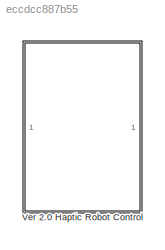
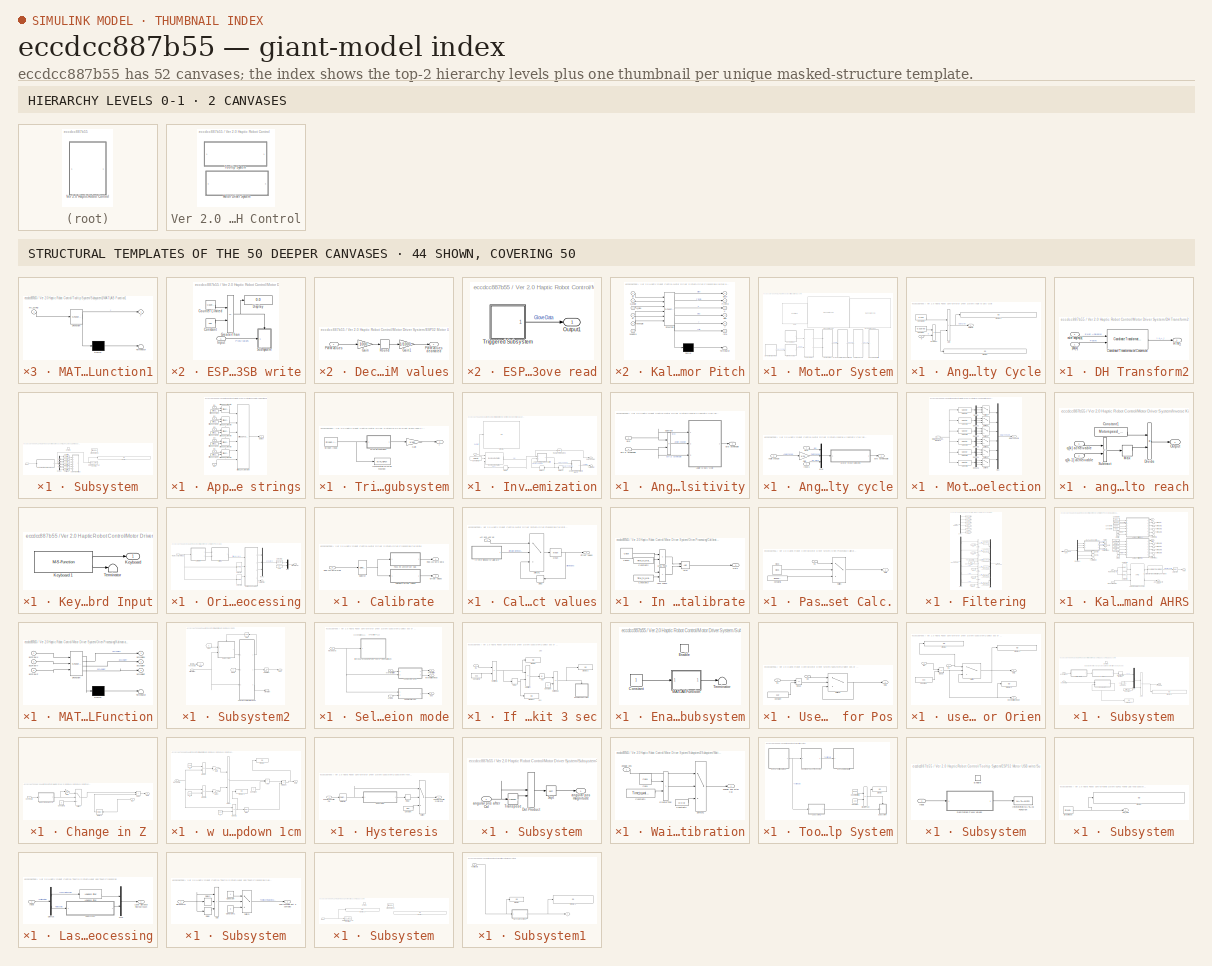
[diagram: thumbnail index - top-2 hierarchy levels (2 canvases) + 44 structural-template representatives of the remaining 50 canvases]
MODEL slx_eccdcc887b55
KIND model
CONFIG AbsTol = auto
CONFIG EnableMultiTasking = off
CONFIG FixedStep = 0.01
CONFIG MaxStep = auto
CONFIG MinStep = auto
CONFIG RelTol = 1e-3
CONFIG SampleTimeConstraint = Unconstrained
CONFIG SolverName = ode5
CONFIG StartTime = 0.0
CONFIG StopTime = inf
BLOCK [SubSystem] Ver 2.0 Haptic Robot Control
  Ports = []
  RequestExecContextInheritance = off
BLOCK [SubSystem] Ver 2.0 Haptic Robot Control/Motor Driver System
  Ports = []
  RequestExecContextInheritance = off
BLOCK [SubSystem] Ver 2.0 Haptic Robot Control/Motor Driver System/Angle to Duty Cycle
  Ports = [1, 1]
  RequestExecContextInheritance = off
BLOCK [Sum] Ver 2.0 Haptic Robot Control/Motor Driver System/Angle to Duty Cycle/Add
  IconShape = rectangular
  Ports = [2, 1]
BLOCK [Constant] Ver 2.0 Haptic Robot Control/Motor Driver System/Angle to Duty Cycle/Constant
  Value = 0.025/60
BLOCK [Constant] Ver 2.0 Haptic Robot Control/Motor Driver System/Angle to Duty Cycle/Constant1
  Value = 0.075
BLOCK [Display] Ver 2.0 Haptic Robot Control/Motor Driver System/Angle to Duty Cycle/Display
  Decimation = 1
  Ports = [1]
BLOCK [Display] Ver 2.0 Haptic Robot Control/Motor Driver System/Angle to Duty Cycle/Display1
  Decimation = 1
  Ports = [1]
BLOCK [Outport] Ver 2.0 Haptic Robot Control/Motor Driver System/Angle to Duty Cycle/Output1
BLOCK [Product] Ver 2.0 Haptic Robot Control/Motor Driver System/Angle to Duty Cycle/Product
  Ports = [2, 1]
BLOCK [Inport] Ver 2.0 Haptic Robot Control/Motor Driver System/Angle to Duty Cycle/q
BLOCK [SubSystem] Ver 2.0 Haptic Robot Control/Motor Driver System/DH Transform2
  Ports = [2, 1]
  RequestExecContextInheritance = off
BLOCK [Reference] Ver 2.0 Haptic Robot Control/Motor Driver System/DH Transform2/Coordinate Transformation Conversion  REF=robotcorelib/Coordinate Transformation Conversion
  Ports = [2, 1]
  SourceBlock = robotcorelib/Coordinate Transformation Conversion
  SourceProductBaseCode = NV,RO,RR,UV
  SourceType = robotics.slcore.internal.block.CoordinateTransformationConversion
BLOCK [Outport] Ver 2.0 Haptic Robot Control/Motor Driver System/DH Transform2/HTM_i
BLOCK [Inport] Ver 2.0 Haptic Robot Control/Motor Driver System/DH Transform2/euler angles[k]
  Port = 2
BLOCK [Inport] Ver 2.0 Haptic Robot Control/Motor Driver System/DH Transform2/pos[k]
BLOCK [DashboardScope] Ver 2.0 Haptic Robot Control/Motor Driver System/Dashboard Scope
  TimeSpan = 60
  Ymax = 50
  Ymin = -50
BLOCK [DashboardScope] Ver 2.0 Haptic Robot Control/Motor Driver System/Dashboard Scope1
  TimeSpan = 60
  Ymax = 180
  Ymin = -180
BLOCK [SubSystem] Ver 2.0 Haptic Robot Control/Motor Driver System/ESP32 Motor USB write
  Ports = [1]
  RequestExecContextInheritance = off
BLOCK [Constant] Ver 2.0 Haptic Robot Control/Motor Driver System/ESP32 Motor USB write/Constant
  Value = 100
BLOCK [Reference] Ver 2.0 Haptic Robot Control/Motor Driver System/ESP32 Motor USB write/Counter Limited  REF=simulink/Sources/Counter
Limited
  Ports = [0, 1]
  SourceBlock = simulink/Sources/Counter\nLimited
  SourceProductBaseCode = SL
  SourceType = Counter Limited
BLOCK [Display] Ver 2.0 Haptic Robot Control/Motor Driver System/ESP32 Motor USB write/Display
  Decimation = 1
  Ports = [1]
BLOCK [RelationalOperator] Ver 2.0 Haptic Robot Control/Motor Driver System/ESP32 Motor USB write/GreaterThan
  InputSameDT = off
  Operator = ==
  OutDataTypeStr = boolean
  Ports = [2, 1]
  RndMeth = Simplest
BLOCK [Inport] Ver 2.0 Haptic Robot Control/Motor Driver System/ESP32 Motor USB write/Input
  PortDimensions = 6
  VarSizeSig = No
BLOCK [SubSystem] Ver 2.0 Haptic Robot Control/Motor Driver System/ESP32 Motor USB write/Subsystem
  Ports = [1, 0, 1]
  RequestExecContextInheritance = off
BLOCK [SubSystem] Ver 2.0 Haptic Robot Control/Motor Driver System/ESP32 Motor USB write/Subsystem/Appends strings
  Ports = [6, 1]
  RequestExecContextInheritance = off
BLOCK [Inport] Ver 2.0 Haptic Robot Control/Motor Driver System/ESP32 Motor USB write/Subsystem/Appends strings/In1
BLOCK [Inport] Ver 2.0 Haptic Robot Control/Motor Driver System/ESP32 Motor USB write/Subsystem/Appends strings/In2
  Port = 2
BLOCK [Inport] Ver 2.0 Haptic Robot Control/Motor Driver System/ESP32 Motor USB write/Subsystem/Appends strings/In3
  Port = 3
BLOCK [Inport] Ver 2.0 Haptic Robot Control/Motor Driver System/ESP32 Motor USB write/Subsystem/Appends strings/In4
  Port = 4
BLOCK [Inport] Ver 2.0 Haptic Robot Control/Motor Driver System/ESP32 Motor USB write/Subsystem/Appends strings/In5
  Port = 5
BLOCK [Inport] Ver 2.0 Haptic Robot Control/Motor Driver System/ESP32 Motor USB write/Subsystem/Appends strings/In6
  Port = 6
BLOCK [Outport] Ver 2.0 Haptic Robot Control/Motor Driver System/ESP32 Motor USB write/Subsystem/Appends strings/Output
BLOCK [StringConcatenate] Ver 2.0 Haptic Robot Control/Motor Driver System/ESP32 Motor USB write/Subsystem/Appends strings/String Concatenate
  Ports = [2, 1]
BLOCK [StringConcatenate] Ver 2.0 Haptic Robot Control/Motor Driver System/ESP32 Motor USB write/Subsystem/Appends strings/String Concatenate1
  Ports = [2, 1]
BLOCK [StringConcatenate] Ver 2.0 Haptic Robot Control/Motor Driver System/ESP32 Motor USB write/Subsystem/Appends strings/String Concatenate2
  Ports = [2, 1]
BLOCK [StringConcatenate] Ver 2.0 Haptic Robot Control/Motor Driver System/ESP32 Motor USB write/Subsystem/Appends strings/String Concatenate3
  Ports = [2, 1]
BLOCK [StringConcatenate] Ver 2.0 Haptic Robot Control/Motor Driver System/ESP32 Motor USB write/Subsystem/Appends strings/String Concatenate4
  Ports = [2, 1]
BLOCK [StringConcatenate] Ver 2.0 Haptic Robot Control/Motor Driver System/ESP32 Motor USB write/Subsystem/Appends strings/String Concatenate6
  Inputs = 6
  Ports = [6, 1]
BLOCK [StringConstant] Ver 2.0 Haptic Robot Control/Motor Driver System/ESP32 Motor USB write/Subsystem/Appends strings/String Constant
  String = " "
BLOCK [StringConstant] Ver 2.0 Haptic Robot Control/Motor Driver System/ESP32 Motor USB write/Subsystem/Appends strings/String Constant1
  String = " "
BLOCK [StringConstant] Ver 2.0 Haptic Robot Control/Motor Driver System/ESP32 Motor USB write/Subsystem/Appends strings/String Constant2
  String = " "
BLOCK [StringConstant] Ver 2.0 Haptic Robot Control/Motor Driver System/ESP32 Motor USB write/Subsystem/Appends strings/String Constant3
  String = " "
BLOCK [StringConstant] Ver 2.0 Haptic Robot Control/Motor Driver System/ESP32 Motor USB write/Subsystem/Appends strings/String Constant4
  String = " "
BLOCK [SubSystem] Ver 2.0 Haptic Robot Control/Motor Driver System/ESP32 Motor USB write/Subsystem/Decimated PWM values
  Ports = [1, 1]
  RequestExecContextInheritance = off
BLOCK [Gain] Ver 2.0 Haptic Robot Control/Motor Driver System/ESP32 Motor USB write/Subsystem/Decimated PWM values/Gain
  Gain = 1000
BLOCK [Gain] Ver 2.0 Haptic Robot Control/Motor Driver System/ESP32 Motor USB write/Subsystem/Decimated PWM values/Gain1
  Gain = 1/1000
BLOCK [Inport] Ver 2.0 Haptic Robot Control/Motor Driver System/ESP32 Motor USB write/Subsystem/Decimated PWM values/PWM values
BLOCK [Outport] Ver 2.0 Haptic Robot Control/Motor Driver System/ESP32 Motor USB write/Subsystem/Decimated PWM values/PWM values decimated
BLOCK [Rounding] Ver 2.0 Haptic Robot Control/Motor Driver System/ESP32 Motor USB write/Subsystem/Decimated PWM values/Round
BLOCK [Demux] Ver 2.0 Haptic Robot Control/Motor Driver System/ESP32 Motor USB write/Subsystem/Demux
  Outputs = 6
  Ports = [1, 6]
BLOCK [Display] Ver 2.0 Haptic Robot Control/Motor Driver System/ESP32 Motor USB write/Subsystem/Display
  Decimation = 1
  Ports = [1]
BLOCK [EnablePort] Ver 2.0 Haptic Robot Control/Motor Driver System/ESP32 Motor USB write/Subsystem/Enable
  Ports = []
BLOCK [Inport] Ver 2.0 Haptic Robot Control/Motor Driver System/ESP32 Motor USB write/Subsystem/Input
  PortDimensions = 6
  VarSizeSig = No
BLOCK [MATLABFcn] Ver 2.0 Haptic Robot Control/Motor Driver System/ESP32 Motor USB write/Subsystem/Interpreted MATLAB Function
  MATLABFcn = send_serial(u)
  OutputDimensions = 0
  Ports = [1]
BLOCK [Reference] Ver 2.0 Haptic Robot Control/Motor Driver System/ESP32 Motor USB write/Subsystem/Stream Output1  REF=sldrtlib/Stream Output
  AttributesFormatString = Serial Port [4]
  Commented = on
  Ports = [1]
  SourceBlock = sldrtlib/Stream Output
  SourceProductBaseCode = WT
  SourceType = Simulink Desktop Real-Time Stream Output
BLOCK [ToString] Ver 2.0 Haptic Robot Control/Motor Driver System/ESP32 Motor USB write/Subsystem/To String
BLOCK [ToString] Ver 2.0 Haptic Robot Control/Motor Driver System/ESP32 Motor USB write/Subsystem/To String1
BLOCK [ToString] Ver 2.0 Haptic Robot Control/Motor Driver System/ESP32 Motor USB write/Subsystem/To String2
BLOCK [ToString] Ver 2.0 Haptic Robot Control/Motor Driver System/ESP32 Motor USB write/Subsystem/To String3
BLOCK [ToString] Ver 2.0 Haptic Robot Control/Motor Driver System/ESP32 Motor USB write/Subsystem/To String4
BLOCK [ToString] Ver 2.0 Haptic Robot Control/Motor Driver System/ESP32 Motor USB write/Subsystem/To String5
BLOCK [SubSystem] Ver 2.0 Haptic Robot Control/Motor Driver System/ESP32 Right glove read
  Ports = [0, 1]
  RequestExecContextInheritance = off
BLOCK [Outport] Ver 2.0 Haptic Robot Control/Motor Driver System/ESP32 Right glove read/Output1
BLOCK [SubSystem] Ver 2.0 Haptic Robot Control/Motor Driver System/ESP32 Right glove read/Triggered Subsystem
  Ports = [0, 1]
  RequestExecContextInheritance = off
  TreatAsAtomicUnit = on
BLOCK [Gain] Ver 2.0 Haptic Robot Control/Motor Driver System/ESP32 Right glove read/Triggered Subsystem/Gain
  Gain = 1/100
BLOCK [MATLABFcn] Ver 2.0 Haptic Robot Control/Motor Driver System/ESP32 Right glove read/Triggered Subsystem/Interpreted MATLAB Function
  Commented = on
  MATLABFcn = read_the_data(u)
  Ports = [1, 1]
BLOCK [SubSystem] Ver 2.0 Haptic Robot Control/Motor Driver System/ESP32 Right glove read/Triggered Subsystem/MATLAB Function1
  ErrorFcn = Stateflow.Translate.translate
  PermitHierarchicalResolution = ExplicitOnly
  Ports = [1, 1]
  RequestExecContextInheritance = off
  SFBlockType = MATLAB Function
  TreatAsAtomicUnit = on
BLOCK [Demux] Ver 2.0 Haptic Robot Control/Motor Driver System/ESP32 Right glove read/Triggered Subsystem/MATLAB Function1/ Demux 
  Outputs = 1
  Ports = [1, 1]
BLOCK [S-Function] Ver 2.0 Haptic Robot Control/Motor Driver System/ESP32 Right glove read/Triggered Subsystem/MATLAB Function1/ SFunction 
  EnableBusSupport = on
  FunctionName = sf_sfun
  PortCounts = [1 2]
  Ports = [1, 2]
  SFcnIsStateOwnerBlock = off
  SFunctionDeploymentMode = off
  Tag = Stateflow S-Function 4
BLOCK [Terminator] Ver 2.0 Haptic Robot Control/Motor Driver System/ESP32 Right glove read/Triggered Subsystem/MATLAB Function1/ Terminator 
BLOCK [Inport] Ver 2.0 Haptic Robot Control/Motor Driver System/ESP32 Right glove read/Triggered Subsystem/MATLAB Function1/my_string
BLOCK [Outport] Ver 2.0 Haptic Robot Control/Motor Driver System/ESP32 Right glove read/Triggered Subsystem/MATLAB Function1/y
BLOCK [Reference] Ver 2.0 Haptic Robot Control/Motor Driver System/ESP32 Right glove read/Triggered Subsystem/Stream Input  REF=sldrtlib/Stream Input
  AttributesFormatString = Serial Port [8]
  Ports = [0, 1]
  SourceBlock = sldrtlib/Stream Input
  SourceProductBaseCode = WT
  SourceType = Simulink Desktop Real-Time Stream Input
BLOCK [Outport] Ver 2.0 Haptic Robot Control/Motor Driver System/ESP32 Right glove read/Triggered Subsystem/y
  OutDataTypeStr = double
  VarSizeSig = No
BLOCK [SubSystem] Ver 2.0 Haptic Robot Control/Motor Driver System/Inverse Kinematic Calc and Optimization
  Ports = [1, 1]
  RequestExecContextInheritance = off
BLOCK [SubSystem] Ver 2.0 Haptic Robot Control/Motor Driver System/Inverse Kinematic Calc and Optimization/Angle command in sensitivity
  Commented = on
  Ports = [2, 1]
  RequestExecContextInheritance = off
BLOCK [SubSystem] Ver 2.0 Haptic Robot Control/Motor Driver System/Inverse Kinematic Calc and Optimization/Angle command in sensitivity/Angle to duty cycle
  Ports = [3, 1]
  RequestExecContextInheritance = off
BLOCK [Inport] Ver 2.0 Haptic Robot Control/Motor Driver System/Inverse Kinematic Calc and Optimization/Angle command in sensitivity/Angle to duty cycle/Angle change
  Port = 2
BLOCK [Gain] Ver 2.0 Haptic Robot Control/Motor Driver System/Inverse Kinematic Calc and Optimization/Angle command in sensitivity/Angle to duty cycle/Gain
  Gain = 1/24
BLOCK [Inport] Ver 2.0 Haptic Robot Control/Motor Driver System/Inverse Kinematic Calc and Optimization/Angle command in sensitivity/Angle to duty cycle/Input1
  Port = 3
BLOCK [SubSystem] Ver 2.0 Haptic Robot Control/Motor Driver System/Inverse Kinematic Calc and Optimization/Angle command in sensitivity/Angle to duty cycle/Motor move selection
  Ports = [1, 1]
  RequestExecContextInheritance = off
BLOCK [Demux] Ver 2.0 Haptic Robot Control/Motor Driver System/Inverse Kinematic Calc and Optimization/Angle command in sensitivity/Angle to duty cycle/Motor move selection/Demux
  Outputs = 3
  Ports = [1, 3]
BLOCK [Demux] Ver 2.0 Haptic Robot Control/Motor Driver System/Inverse Kinematic Calc and Optimization/Angle command in sensitivity/Angle to duty cycle/Motor move selection/Demux1
  Outputs = 3
  Ports = [1, 3]
BLOCK [Demux] Ver 2.0 Haptic Robot Control/Motor Driver System/Inverse Kinematic Calc and Optimization/Angle command in sensitivity/Angle to duty cycle/Motor move selection/Demux2
  Outputs = 3
  Ports = [1, 3]
BLOCK [Demux] Ver 2.0 Haptic Robot Control/Motor Driver System/Inverse Kinematic Calc and Optimization/Angle command in sensitivity/Angle to duty cycle/Motor move selection/Demux3
  Outputs = 3
  Ports = [1, 3]
BLOCK [Demux] Ver 2.0 Haptic Robot Control/Motor Driver System/Inverse Kinematic Calc and Optimization/Angle command in sensitivity/Angle to duty cycle/Motor move selection/Demux4
  Outputs = 3
  Ports = [1, 3]
BLOCK [Demux] Ver 2.0 Haptic Robot Control/Motor Driver System/Inverse Kinematic Calc and Optimization/Angle command in sensitivity/Angle to duty cycle/Motor move selection/Demux5
  Outputs = 3
  Ports = [1, 3]
BLOCK [Mux] Ver 2.0 Haptic Robot Control/Motor Driver System/Inverse Kinematic Calc and Optimization/Angle command in sensitivity/Angle to duty cycle/Motor move selection/Mux
  DisplayOption = bar
  Inputs = 6
  Ports = [6, 1]
BLOCK [Selector] Ver 2.0 Haptic Robot Control/Motor Driver System/Inverse Kinematic Calc and Optimization/Angle command in sensitivity/Angle to duty cycle/Motor move selection/Selector
  IndexOptions = Index vector (dialog)
  Indices = [1 7 13]
  InputPortWidth = 18
  OutputSizes = 1
  Ports = [1, 1]
BLOCK [Selector] Ver 2.0 Haptic Robot Control/Motor Driver System/Inverse Kinematic Calc and Optimization/Angle command in sensitivity/Angle to duty cycle/Motor move selection/Selector1
  IndexOptions = Index vector (dialog)
  Indices = [2 8 14]
  InputPortWidth = 18
  OutputSizes = 1
  Ports = [1, 1]
BLOCK [Selector] Ver 2.0 Haptic Robot Control/Motor Driver System/Inverse Kinematic Calc and Optimization/Angle command in sensitivity/Angle to duty cycle/Motor move selection/Selector2
  IndexOptions = Index vector (dialog)
  Indices = [3 9 15]
  InputPortWidth = 18
  OutputSizes = 1
  Ports = [1, 1]
BLOCK [Selector] Ver 2.0 Haptic Robot Control/Motor Driver System/Inverse Kinematic Calc and Optimization/Angle command in sensitivity/Angle to duty cycle/Motor move selection/Selector3
  IndexOptions = Index vector (dialog)
  Indices = [4 10 16]
  InputPortWidth = 18
  OutputSizes = 1
  Ports = [1, 1]
BLOCK [Selector] Ver 2.0 Haptic Robot Control/Motor Driver System/Inverse Kinematic Calc and Optimization/Angle command in sensitivity/Angle to duty cycle/Motor move selection/Selector4
  IndexOptions = Index vector (dialog)
  Indices = [5 11 17]
  InputPortWidth = 18
  OutputSizes = 1
  Ports = [1, 1]
BLOCK [Selector] Ver 2.0 Haptic Robot Control/Motor Driver System/Inverse Kinematic Calc and Optimization/Angle command in sensitivity/Angle to duty cycle/Motor move selection/Selector5
  IndexOptions = Index vector (dialog)
  Indices = [6 12 18]
  InputPortWidth = 18
  OutputSizes = 1
  Ports = [1, 1]
BLOCK [Switch] Ver 2.0 Haptic Robot Control/Motor Driver System/Inverse Kinematic Calc and Optimization/Angle command in sensitivity/Angle to duty cycle/Motor move selection/Switch
  InputSameDT = off
  SaturateOnIntegerOverflow = off
  Threshold = min_pwm_change
BLOCK [Switch] Ver 2.0 Haptic Robot Control/Motor Driver System/Inverse Kinematic Calc and Optimization/Angle command in sensitivity/Angle to duty cycle/Motor move selection/Switch1
  InputSameDT = off
  SaturateOnIntegerOverflow = off
  Threshold = min_pwm_change
BLOCK [Switch] Ver 2.0 Haptic Robot Control/Motor Driver System/Inverse Kinematic Calc and Optimization/Angle command in sensitivity/Angle to duty cycle/Motor move selection/Switch2
  InputSameDT = off
  SaturateOnIntegerOverflow = off
  Threshold = min_pwm_change
BLOCK [Switch] Ver 2.0 Haptic Robot Control/Motor Driver System/Inverse Kinematic Calc and Optimization/Angle command in sensitivity/Angle to duty cycle/Motor move selection/Switch3
  InputSameDT = off
  SaturateOnIntegerOverflow = off
  Threshold = min_pwm_change
BLOCK [Switch] Ver 2.0 Haptic Robot Control/Motor Driver System/Inverse Kinematic Calc and Optimization/Angle command in sensitivity/Angle to duty cycle/Motor move selection/Switch4
  InputSameDT = off
  SaturateOnIntegerOverflow = off
  Threshold = min_pwm_change
BLOCK [Switch] Ver 2.0 Haptic Robot Control/Motor Driver System/Inverse Kinematic Calc and Optimization/Angle command in sensitivity/Angle to duty cycle/Motor move selection/Switch5
  InputSameDT = off
  SaturateOnIntegerOverflow = off
  Threshold = min_pwm_change
BLOCK [Outport] Ver 2.0 Haptic Robot Control/Motor Driver System/Inverse Kinematic Calc and Optimization/Angle command in sensitivity/Angle to duty cycle/Motor move selection/q[k] acheivable
BLOCK [Inport] Ver 2.0 Haptic Robot Control/Motor Driver System/Inverse Kinematic Calc and Optimization/Angle command in sensitivity/Angle to duty cycle/Motor move selection/q[k],pwm change, q[k-1] ach
BLOCK [Mux] Ver 2.0 Haptic Robot Control/Motor Driver System/Inverse Kinematic Calc and Optimization/Angle command in sensitivity/Angle to duty cycle/Mux
  DisplayOption = bar
  Inputs = 3
  Ports = [3, 1]
BLOCK [Inport] Ver 2.0 Haptic Robot Control/Motor Driver System/Inverse Kinematic Calc and Optimization/Angle command in sensitivity/Angle to duty cycle/q[k]
BLOCK [Outport] Ver 2.0 Haptic Robot Control/Motor Driver System/Inverse Kinematic Calc and Optimization/Angle command in sensitivity/Angle to duty cycle/q[k] acheiveable
BLOCK [Sum] Ver 2.0 Haptic Robot Control/Motor Driver System/Inverse Kinematic Calc and Optimization/Angle command in sensitivity/Subtract
  IconShape = rectangular
  Inputs = +-
  Ports = [2, 1]
BLOCK [Inport] Ver 2.0 Haptic Robot Control/Motor Driver System/Inverse Kinematic Calc and Optimization/Angle command in sensitivity/q[k-1] acheivable
  Port = 2
BLOCK [Inport] Ver 2.0 Haptic Robot Control/Motor Driver System/Inverse Kinematic Calc and Optimization/Angle command in sensitivity/q[k]
BLOCK [Outport] Ver 2.0 Haptic Robot Control/Motor Driver System/Inverse Kinematic Calc and Optimization/Angle command in sensitivity/q[k] acheivable
BLOCK [Constant] Ver 2.0 Haptic Robot Control/Motor Driver System/Inverse Kinematic Calc and Optimization/Constant1
  Value = weights
BLOCK [Delay] Ver 2.0 Haptic Robot Control/Motor Driver System/Inverse Kinematic Calc and Optimization/Delay
  DelayLength = 1
  InputPortMap = u0
  NameLocation = top
  Ports = [1, 1]
BLOCK [Delay] Ver 2.0 Haptic Robot Control/Motor Driver System/Inverse Kinematic Calc and Optimization/Delay1
  Commented = on
  DelayLength = 1
  InputPortMap = u0
  NameLocation = top
  Ports = [1, 1]
BLOCK [Delay] Ver 2.0 Haptic Robot Control/Motor Driver System/Inverse Kinematic Calc and Optimization/Delay2
  Commented = on
  DelayLength = 1
  InputPortMap = u0
  Ports = [1, 1]
BLOCK [Display] Ver 2.0 Haptic Robot Control/Motor Driver System/Inverse Kinematic Calc and Optimization/Display
  Decimation = 1
  Ports = [1]
BLOCK [Inport] Ver 2.0 Haptic Robot Control/Motor Driver System/Inverse Kinematic Calc and Optimization/In1
BLOCK [Reference] Ver 2.0 Haptic Robot Control/Motor Driver System/Inverse Kinematic Calc and Optimization/Inverse Kinematics  REF=robotmaniplib/Inverse Kinematics
  Ports = [3, 2]
  SourceBlock = robotmaniplib/Inverse Kinematics
  SourceProductBaseCode = RO
  SourceType = Inverse Kinematics
BLOCK [Reference] Ver 2.0 Haptic Robot Control/Motor Driver System/Inverse Kinematic Calc and Optimization/Radians to Degrees  REF=simulink_extras/Transformations/Radians
to Degrees
  Ports = [1, 1]
  SourceBlock = simulink_extras/Transformations/Radians\nto Degrees
  SourceProductBaseCode = SL
  SourceType = RadiansToDegrees
BLOCK [Outport] Ver 2.0 Haptic Robot Control/Motor Driver System/Inverse Kinematic Calc and Optimization/Servo angles
BLOCK [Terminator] Ver 2.0 Haptic Robot Control/Motor Driver System/Inverse Kinematic Calc and Optimization/Terminator
BLOCK [SubSystem] Ver 2.0 Haptic Robot Control/Motor Driver System/Inverse Kinematic Calc and Optimization/angle command time to reach
  Commented = on
  Ports = [2, 1]
  RequestExecContextInheritance = off
BLOCK [Constant] Ver 2.0 Haptic Robot Control/Motor Driver System/Inverse Kinematic Calc and Optimization/angle command time to reach/Constant1
  Value = Motorspeed_MG996
BLOCK [Product] Ver 2.0 Haptic Robot Control/Motor Driver System/Inverse Kinematic Calc and Optimization/angle command time to reach/Divide
  Inputs = /*
  Ports = [2, 1]
BLOCK [MinMax] Ver 2.0 Haptic Robot Control/Motor Driver System/Inverse Kinematic Calc and Optimization/angle command time to reach/Max
  Function = max
  Ports = [1, 1]
BLOCK [Outport] Ver 2.0 Haptic Robot Control/Motor Driver System/Inverse Kinematic Calc and Optimization/angle command time to reach/Output
BLOCK [Sum] Ver 2.0 Haptic Robot Control/Motor Driver System/Inverse Kinematic Calc and Optimization/angle command time to reach/Subtract
  IconShape = rectangular
  Inputs = +-
  Ports = [2, 1]
BLOCK [Inport] Ver 2.0 Haptic Robot Control/Motor Driver System/Inverse Kinematic Calc and Optimization/angle command time to reach/q[k-1] acheivable
  Port = 2
BLOCK [Inport] Ver 2.0 Haptic Robot Control/Motor Driver System/Inverse Kinematic Calc and Optimization/angle command time to reach/q[k] acheivable
BLOCK [SubSystem] Ver 2.0 Haptic Robot Control/Motor Driver System/Keyboard Input
  Ports = [0, 1]
  RequestExecContextInheritance = off
BLOCK [Outport] Ver 2.0 Haptic Robot Control/Motor Driver System/Keyboard Input/Keyboard
BLOCK [M-S-Function] Ver 2.0 Haptic Robot Control/Motor Driver System/Keyboard Input/Keyboard 1
  FunctionName = sfun_keyboard_input_v1_2b
  Ports = [0, 2]
BLOCK [Terminator] Ver 2.0 Haptic Robot Control/Motor Driver System/Keyboard Input/Terminator
BLOCK [KnobBlock] Ver 2.0 Haptic Robot Control/Motor Driver System/Knob
  ScaleMax = 40
  ScaleMin = -40
BLOCK [SubSystem] Ver 2.0 Haptic Robot Control/Motor Driver System/Orien Processing
  Ports = [1, 1]
  RequestExecContextInheritance = off
BLOCK [SubSystem] Ver 2.0 Haptic Robot Control/Motor Driver System/Orien Processing/Calibrate
  Ports = [1, 2]
  RequestExecContextInheritance = off
BLOCK [SubSystem] Ver 2.0 Haptic Robot Control/Motor Driver System/Orien Processing/Calibrate/Calculate offset values
  Ports = [1, 1]
  RequestExecContextInheritance = off
BLOCK [Inport] Ver 2.0 Haptic Robot Control/Motor Driver System/Orien Processing/Calibrate/Calculate offset values/Acc and Ang vel
BLOCK [Delay] Ver 2.0 Haptic Robot Control/Motor Driver System/Orien Processing/Calibrate/Calculate offset values/Delay
  DelayLength = 1
  InputPortMap = u0
  NameLocation = top
  Ports = [1, 1]
BLOCK [SubSystem] Ver 2.0 Haptic Robot Control/Motor Driver System/Orien Processing/Calibrate/Calculate offset values/In time window to calibrate
  Ports = [0, 1]
  RequestExecContextInheritance = off
BLOCK [Logic] Ver 2.0 Haptic Robot Control/Motor Driver System/Orien Processing/Calibrate/Calculate offset values/In time window to calibrate/AND
  AllPortsSameDT = off
  IconShape = distinctive
  OutDataTypeStr = boolean
  Ports = [2, 1]
BLOCK [Clock] Ver 2.0 Haptic Robot Control/Motor Driver System/Orien Processing/Calibrate/Calculate offset values/In time window to calibrate/Clock1
  DisplayTime = on
BLOCK [Constant] Ver 2.0 Haptic Robot Control/Motor Driver System/Orien Processing/Calibrate/Calculate offset values/In time window to calibrate/Constant2
  SampleTime = -1
  Value = Time_to_wait(2)
  VectorParams1D = off
BLOCK [Constant] Ver 2.0 Haptic Robot Control/Motor Driver System/Orien Processing/Calibrate/Calculate offset values/In time window to calibrate/Constant3
  SampleTime = -1
  Value = Time_to_wait(1)
  VectorParams1D = off
BLOCK [RelationalOperator] Ver 2.0 Haptic Robot Control/Motor Driver System/Orien Processing/Calibrate/Calculate offset values/In time window to calibrate/Less Than
  InputSameDT = off
  Operator = <
  OutDataTypeStr = boolean
  Ports = [2, 1]
  RndMeth = Simplest
BLOCK [RelationalOperator] Ver 2.0 Haptic Robot Control/Motor Driver System/Orien Processing/Calibrate/Calculate offset values/In time window to calibrate/Less Than1
  InputSameDT = off
  Operator = >
  OutDataTypeStr = boolean
  Ports = [2, 1]
  RndMeth = Simplest
BLOCK [Outport] Ver 2.0 Haptic Robot Control/Motor Driver System/Orien Processing/Calibrate/Calculate offset values/In time window to calibrate/Out1
BLOCK [Reference] Ver 2.0 Haptic Robot Control/Motor Driver System/Orien Processing/Calibrate/Calculate offset values/Mean  REF=dspstat3/Mean
  Ports = [1, 1]
  SourceBlock = dspstat3/Mean
  SourceProductBaseCode = DS
  SourceType = Mean
  UserDataPersistent = on
BLOCK [Outport] Ver 2.0 Haptic Robot Control/Motor Driver System/Orien Processing/Calibrate/Calculate offset values/Offset Values
BLOCK [Switch] Ver 2.0 Haptic Robot Control/Motor Driver System/Orien Processing/Calibrate/Calculate offset values/Switch1
  Criteria = u2 ~= 0
  InputSameDT = off
  SaturateOnIntegerOverflow = off
  Threshold = Time_to_wait
BLOCK [Outport] Ver 2.0 Haptic Robot Control/Motor Driver System/Orien Processing/Calibrate/Offset Values
  Port = 2
BLOCK [SubSystem] Ver 2.0 Haptic Robot Control/Motor Driver System/Orien Processing/Calibrate/Pass 0's until Offset Calc.
  Ports = [1, 1]
  RequestExecContextInheritance = off
BLOCK [Clock] Ver 2.0 Haptic Robot Control/Motor Driver System/Orien Processing/Calibrate/Pass 0's until Offset Calc./Clock
  DisplayTime = on
BLOCK [Constant] Ver 2.0 Haptic Robot Control/Motor Driver System/Orien Processing/Calibrate/Pass 0's until Offset Calc./Constant1
  Value = [0 0 0 0 0 0]
BLOCK [Inport] Ver 2.0 Haptic Robot Control/Motor Driver System/Orien Processing/Calibrate/Pass 0's until Offset Calc./In1
BLOCK [Outport] Ver 2.0 Haptic Robot Control/Motor Driver System/Orien Processing/Calibrate/Pass 0's until Offset Calc./Out1
BLOCK [Switch] Ver 2.0 Haptic Robot Control/Motor Driver System/Orien Processing/Calibrate/Pass 0's until Offset Calc./Switch
  InputSameDT = off
  SaturateOnIntegerOverflow = off
  Threshold = Time_to_wait(2)
BLOCK [Outport] Ver 2.0 Haptic Robot Control/Motor Driver System/Orien Processing/Calibrate/Raw Acc//Gyro data
BLOCK [Inport] Ver 2.0 Haptic Robot Control/Motor Driver System/Orien Processing/Calibrate/Raw Acc//Gyro//Mag
BLOCK [Selector] Ver 2.0 Haptic Robot Control/Motor Driver System/Orien Processing/Calibrate/Selector
  IndexOptions = Index vector (dialog)
  Indices = [1 2 3 4 5 6]
  InputPortWidth = 9
  OutputSizes = 1
  Ports = [1, 1]
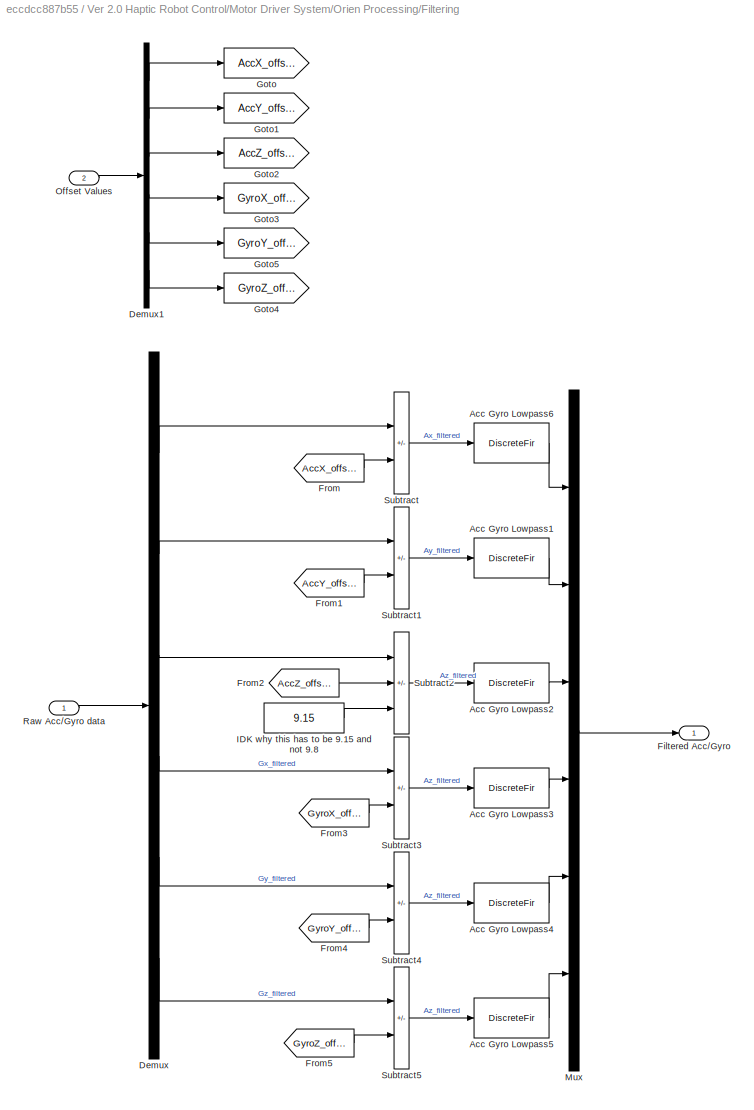
BLOCK [SubSystem] Ver 2.0 Haptic Robot Control/Motor Driver System/Orien Processing/Filtering
  Ports = [2, 1]
  RequestExecContextInheritance = off
BLOCK [DiscreteFir] Ver 2.0 Haptic Robot Control/Motor Driver System/Orien Processing/Filtering/Acc Gyro Lowpass1
  Coefficients = [-0.00268886099103231432 -0.00550842062906714645 0.0207886441632320826 0.114078459669350679 0.246264331684130783 0.311632819991308929 0.246264331684130783 0.114078459669350679 0.0207886441632320826 -0.00550842062906714645 -0.00268886099103231432]  <repeated x6 — deduplicated; at blocks: Acc Gyro Lowpass1, Acc Gyro Lowpass2, Acc Gyro Lowpass3, Acc Gyro Lowpass4, Acc Gyro Lowpass5, Acc Gyro Lowpass6>
  InputPortMap = u0
  InputProcessing = Columns as channels (frame based)
  OutputPortMap = o0
  Ports = [1, 1]
  Tag = BlockMethodSubSystem
BLOCK [DiscreteFir] Ver 2.0 Haptic Robot Control/Motor Driver System/Orien Processing/Filtering/Acc Gyro Lowpass2
  InputPortMap = u0
  InputProcessing = Columns as channels (frame based)
  OutputPortMap = o0
  Ports = [1, 1]
  Tag = BlockMethodSubSystem
BLOCK [DiscreteFir] Ver 2.0 Haptic Robot Control/Motor Driver System/Orien Processing/Filtering/Acc Gyro Lowpass3
  InputPortMap = u0
  InputProcessing = Columns as channels (frame based)
  OutputPortMap = o0
  Ports = [1, 1]
  Tag = BlockMethodSubSystem
BLOCK [DiscreteFir] Ver 2.0 Haptic Robot Control/Motor Driver System/Orien Processing/Filtering/Acc Gyro Lowpass4
  InputPortMap = u0
  InputProcessing = Columns as channels (frame based)
  OutputPortMap = o0
  Ports = [1, 1]
  Tag = BlockMethodSubSystem
BLOCK [DiscreteFir] Ver 2.0 Haptic Robot Control/Motor Driver System/Orien Processing/Filtering/Acc Gyro Lowpass5
  InputPortMap = u0
  InputProcessing = Columns as channels (frame based)
  OutputPortMap = o0
  Ports = [1, 1]
  Tag = BlockMethodSubSystem
BLOCK [DiscreteFir] Ver 2.0 Haptic Robot Control/Motor Driver System/Orien Processing/Filtering/Acc Gyro Lowpass6
  InputPortMap = u0
  InputProcessing = Columns as channels (frame based)
  OutputPortMap = o0
  Ports = [1, 1]
  Tag = BlockMethodSubSystem
BLOCK [Demux] Ver 2.0 Haptic Robot Control/Motor Driver System/Orien Processing/Filtering/Demux
  Outputs = 6
  Ports = [1, 6]
BLOCK [Demux] Ver 2.0 Haptic Robot Control/Motor Driver System/Orien Processing/Filtering/Demux1
  Outputs = 6
  Ports = [1, 6]
BLOCK [Outport] Ver 2.0 Haptic Robot Control/Motor Driver System/Orien Processing/Filtering/Filtered Acc//Gyro
BLOCK [From] Ver 2.0 Haptic Robot Control/Motor Driver System/Orien Processing/Filtering/From
  GotoTag = AccX_offset
BLOCK [From] Ver 2.0 Haptic Robot Control/Motor Driver System/Orien Processing/Filtering/From1
  GotoTag = AccY_offset
BLOCK [From] Ver 2.0 Haptic Robot Control/Motor Driver System/Orien Processing/Filtering/From2
  GotoTag = AccZ_offset
BLOCK [From] Ver 2.0 Haptic Robot Control/Motor Driver System/Orien Processing/Filtering/From3
  GotoTag = GyroX_offset
BLOCK [From] Ver 2.0 Haptic Robot Control/Motor Driver System/Orien Processing/Filtering/From4
  GotoTag = GyroY_offset
BLOCK [From] Ver 2.0 Haptic Robot Control/Motor Driver System/Orien Processing/Filtering/From5
  GotoTag = GyroZ_offset
BLOCK [Goto] Ver 2.0 Haptic Robot Control/Motor Driver System/Orien Processing/Filtering/Goto
  GotoTag = AccX_offset
BLOCK [Goto] Ver 2.0 Haptic Robot Control/Motor Driver System/Orien Processing/Filtering/Goto1
  GotoTag = AccY_offset
BLOCK [Goto] Ver 2.0 Haptic Robot Control/Motor Driver System/Orien Processing/Filtering/Goto2
  GotoTag = AccZ_offset
BLOCK [Goto] Ver 2.0 Haptic Robot Control/Motor Driver System/Orien Processing/Filtering/Goto3
  GotoTag = GyroX_offset
BLOCK [Goto] Ver 2.0 Haptic Robot Control/Motor Driver System/Orien Processing/Filtering/Goto4
  GotoTag = GyroZ_offset
BLOCK [Goto] Ver 2.0 Haptic Robot Control/Motor Driver System/Orien Processing/Filtering/Goto5
  GotoTag = GyroY_offset
BLOCK [Constant] Ver 2.0 Haptic Robot Control/Motor Driver System/Orien Processing/Filtering/IDK why this has to be 9.15 and not 9.8
  Value = 9.15
BLOCK [Mux] Ver 2.0 Haptic Robot Control/Motor Driver System/Orien Processing/Filtering/Mux
  DisplayOption = bar
  Inputs = 6
  Ports = [6, 1]
BLOCK [Inport] Ver 2.0 Haptic Robot Control/Motor Driver System/Orien Processing/Filtering/Offset Values
  Port = 2
BLOCK [Inport] Ver 2.0 Haptic Robot Control/Motor Driver System/Orien Processing/Filtering/Raw Acc//Gyro data
BLOCK [Sum] Ver 2.0 Haptic Robot Control/Motor Driver System/Orien Processing/Filtering/Subtract
  IconShape = rectangular
  Inputs = +-
  Ports = [2, 1]
BLOCK [Sum] Ver 2.0 Haptic Robot Control/Motor Driver System/Orien Processing/Filtering/Subtract1
  IconShape = rectangular
  Inputs = +-
  Ports = [2, 1]
BLOCK [Sum] Ver 2.0 Haptic Robot Control/Motor Driver System/Orien Processing/Filtering/Subtract2
  IconShape = rectangular
  Inputs = +-+
  Ports = [3, 1]
BLOCK [Sum] Ver 2.0 Haptic Robot Control/Motor Driver System/Orien Processing/Filtering/Subtract3
  IconShape = rectangular
  Inputs = +-
  Ports = [2, 1]
BLOCK [Sum] Ver 2.0 Haptic Robot Control/Motor Driver System/Orien Processing/Filtering/Subtract4
  IconShape = rectangular
  Inputs = +-
  Ports = [2, 1]
BLOCK [Sum] Ver 2.0 Haptic Robot Control/Motor Driver System/Orien Processing/Filtering/Subtract5
  IconShape = rectangular
  Inputs = +-
  Ports = [2, 1]
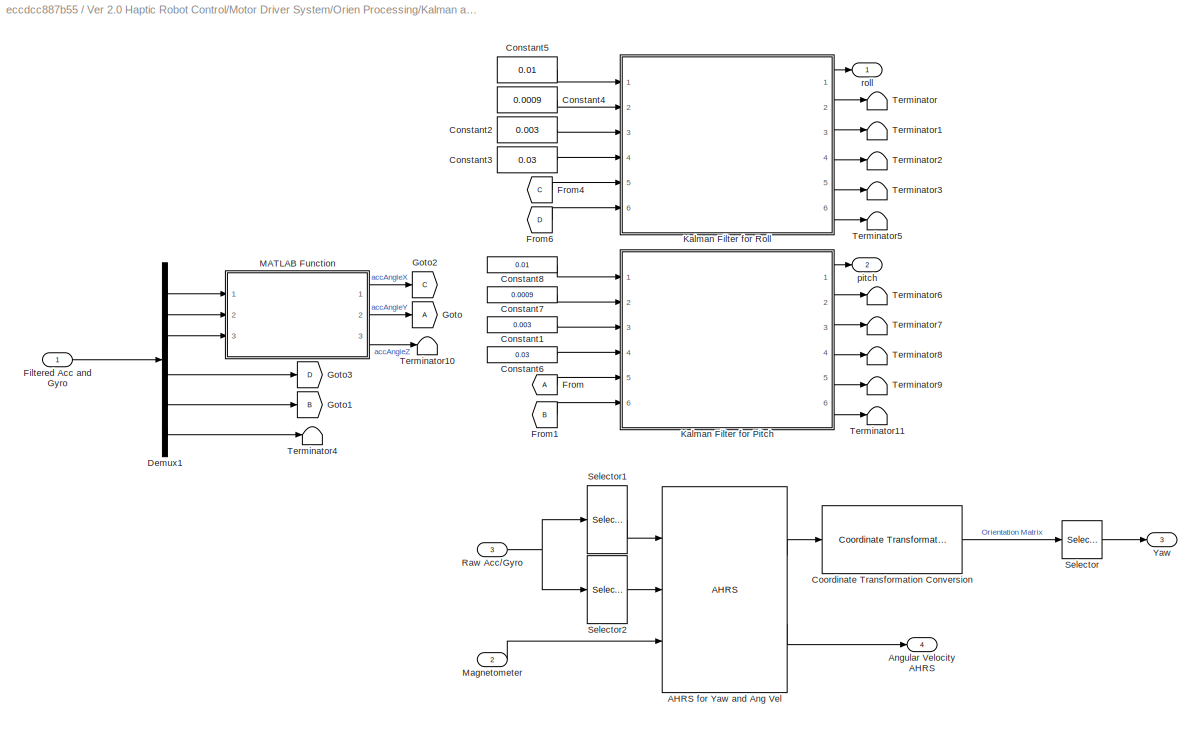
BLOCK [SubSystem] Ver 2.0 Haptic Robot Control/Motor Driver System/Orien Processing/Kalman and AHRS
  Ports = [3, 4]
  RequestExecContextInheritance = off
BLOCK [Reference] Ver 2.0 Haptic Robot Control/Motor Driver System/Orien Processing/Kalman and AHRS/AHRS for Yaw and Ang Vel  REF=mspfiltlib/AHRS
  Commented = on
  Ports = [3, 2]
  SourceBlock = mspfiltlib/AHRS
  SourceProductBaseCode = TF,NV
  SourceType = fusion.simulink.ahrsfilter
BLOCK [Outport] Ver 2.0 Haptic Robot Control/Motor Driver System/Orien Processing/Kalman and AHRS/Angular Velocity AHRS
  Port = 4
BLOCK [Constant] Ver 2.0 Haptic Robot Control/Motor Driver System/Orien Processing/Kalman and AHRS/Constant1
  Value = 0.003
BLOCK [Constant] Ver 2.0 Haptic Robot Control/Motor Driver System/Orien Processing/Kalman and AHRS/Constant2
  Value = 0.003
BLOCK [Constant] Ver 2.0 Haptic Robot Control/Motor Driver System/Orien Processing/Kalman and AHRS/Constant3
  Value = 0.03
BLOCK [Constant] Ver 2.0 Haptic Robot Control/Motor Driver System/Orien Processing/Kalman and AHRS/Constant4
  Value = 0.0009
BLOCK [Constant] Ver 2.0 Haptic Robot Control/Motor Driver System/Orien Processing/Kalman and AHRS/Constant5
  Value = 0.01
BLOCK [Constant] Ver 2.0 Haptic Robot Control/Motor Driver System/Orien Processing/Kalman and AHRS/Constant6
  Value = 0.03
BLOCK [Constant] Ver 2.0 Haptic Robot Control/Motor Driver System/Orien Processing/Kalman and AHRS/Constant7
  Value = 0.0009
BLOCK [Constant] Ver 2.0 Haptic Robot Control/Motor Driver System/Orien Processing/Kalman and AHRS/Constant8
  Value = 0.01
BLOCK [Reference] Ver 2.0 Haptic Robot Control/Motor Driver System/Orien Processing/Kalman and AHRS/Coordinate Transformation Conversion  REF=robotcorelib/Coordinate Transformation Conversion
  Commented = on
  Ports = [1, 1]
  SourceBlock = robotcorelib/Coordinate Transformation Conversion
  SourceProductBaseCode = NV,RO,RR,UV
  SourceType = robotics.slcore.internal.block.CoordinateTransformationConversion
BLOCK [Demux] Ver 2.0 Haptic Robot Control/Motor Driver System/Orien Processing/Kalman and AHRS/Demux1
  Outputs = 6
  Ports = [1, 6]
BLOCK [Inport] Ver 2.0 Haptic Robot Control/Motor Driver System/Orien Processing/Kalman and AHRS/Filtered Acc and Gyro
BLOCK [From] Ver 2.0 Haptic Robot Control/Motor Driver System/Orien Processing/Kalman and AHRS/From
BLOCK [From] Ver 2.0 Haptic Robot Control/Motor Driver System/Orien Processing/Kalman and AHRS/From1
  GotoTag = B
BLOCK [From] Ver 2.0 Haptic Robot Control/Motor Driver System/Orien Processing/Kalman and AHRS/From4
  GotoTag = C
BLOCK [From] Ver 2.0 Haptic Robot Control/Motor Driver System/Orien Processing/Kalman and AHRS/From6
  GotoTag = D
BLOCK [Goto] Ver 2.0 Haptic Robot Control/Motor Driver System/Orien Processing/Kalman and AHRS/Goto
BLOCK [Goto] Ver 2.0 Haptic Robot Control/Motor Driver System/Orien Processing/Kalman and AHRS/Goto1
  GotoTag = B
BLOCK [Goto] Ver 2.0 Haptic Robot Control/Motor Driver System/Orien Processing/Kalman and AHRS/Goto2
  GotoTag = C
BLOCK [Goto] Ver 2.0 Haptic Robot Control/Motor Driver System/Orien Processing/Kalman and AHRS/Goto3
  GotoTag = D
BLOCK [SubSystem] Ver 2.0 Haptic Robot Control/Motor Driver System/Orien Processing/Kalman and AHRS/Kalman Filter for Pitch
  ErrorFcn = Stateflow.Translate.translate
  PermitHierarchicalResolution = ExplicitOnly
  Ports = [6, 6]
  RequestExecContextInheritance = off
  SFBlockType = MATLAB Function
  TreatAsAtomicUnit = on
BLOCK [Demux] Ver 2.0 Haptic Robot Control/Motor Driver System/Orien Processing/Kalman and AHRS/Kalman Filter for Pitch/ Demux 
  Outputs = 1
  Ports = [1, 1]
BLOCK [S-Function] Ver 2.0 Haptic Robot Control/Motor Driver System/Orien Processing/Kalman and AHRS/Kalman Filter for Pitch/ SFunction 
  EnableBusSupport = on
  FunctionName = sf_sfun
  PortCounts = [6 7]
  Ports = [6, 7]
  SFcnIsStateOwnerBlock = off
  SFunctionDeploymentMode = off
  Tag = Stateflow S-Function 5
BLOCK [Terminator] Ver 2.0 Haptic Robot Control/Motor Driver System/Orien Processing/Kalman and AHRS/Kalman Filter for Pitch/ Terminator 
BLOCK [Outport] Ver 2.0 Haptic Robot Control/Motor Driver System/Orien Processing/Kalman and AHRS/Kalman Filter for Pitch/K
  Port = 3
BLOCK [Outport] Ver 2.0 Haptic Robot Control/Motor Driver System/Orien Processing/Kalman and AHRS/Kalman Filter for Pitch/P_temp
  Port = 2
BLOCK [Inport] Ver 2.0 Haptic Robot Control/Motor Driver System/Orien Processing/Kalman and AHRS/Kalman Filter for Pitch/Q_angle
  Port = 2
BLOCK [Inport] Ver 2.0 Haptic Robot Control/Motor Driver System/Orien Processing/Kalman and AHRS/Kalman Filter for Pitch/Q_bias
  Port = 3
BLOCK [Inport] Ver 2.0 Haptic Robot Control/Motor Driver System/Orien Processing/Kalman and AHRS/Kalman Filter for Pitch/R
  Port = 4
BLOCK [Outport] Ver 2.0 Haptic Robot Control/Motor Driver System/Orien Processing/Kalman and AHRS/Kalman Filter for Pitch/bias
  Port = 4
BLOCK [Inport] Ver 2.0 Haptic Robot Control/Motor Driver System/Orien Processing/Kalman and AHRS/Kalman Filter for Pitch/dt
BLOCK [Inport] Ver 2.0 Haptic Robot Control/Motor Driver System/Orien Processing/Kalman and AHRS/Kalman Filter for Pitch/newAngle
  Port = 5
BLOCK [Inport] Ver 2.0 Haptic Robot Control/Motor Driver System/Orien Processing/Kalman and AHRS/Kalman Filter for Pitch/newRate
  Port = 6
BLOCK [Outport] Ver 2.0 Haptic Robot Control/Motor Driver System/Orien Processing/Kalman and AHRS/Kalman Filter for Pitch/pitch
BLOCK [Outport] Ver 2.0 Haptic Robot Control/Motor Driver System/Orien Processing/Kalman and AHRS/Kalman Filter for Pitch/rate
  Port = 6
BLOCK [Outport] Ver 2.0 Haptic Robot Control/Motor Driver System/Orien Processing/Kalman and AHRS/Kalman Filter for Pitch/y
  Port = 5
BLOCK [SubSystem] Ver 2.0 Haptic Robot Control/Motor Driver System/Orien Processing/Kalman and AHRS/Kalman Filter for Roll
  ErrorFcn = Stateflow.Translate.translate
  PermitHierarchicalResolution = ExplicitOnly
  Ports = [6, 6]
  RequestExecContextInheritance = off
  SFBlockType = MATLAB Function
  TreatAsAtomicUnit = on
BLOCK [Demux] Ver 2.0 Haptic Robot Control/Motor Driver System/Orien Processing/Kalman and AHRS/Kalman Filter for Roll/ Demux 
  Outputs = 1
  Ports = [1, 1]
BLOCK [S-Function] Ver 2.0 Haptic Robot Control/Motor Driver System/Orien Processing/Kalman and AHRS/Kalman Filter for Roll/ SFunction 
  EnableBusSupport = on
  FunctionName = sf_sfun
  PortCounts = [6 7]
  Ports = [6, 7]
  SFcnIsStateOwnerBlock = off
  SFunctionDeploymentMode = off
  Tag = Stateflow S-Function 6
BLOCK [Terminator] Ver 2.0 Haptic Robot Control/Motor Driver System/Orien Processing/Kalman and AHRS/Kalman Filter for Roll/ Terminator 
BLOCK [Outport] Ver 2.0 Haptic Robot Control/Motor Driver System/Orien Processing/Kalman and AHRS/Kalman Filter for Roll/K
  Port = 3
BLOCK [Outport] Ver 2.0 Haptic Robot Control/Motor Driver System/Orien Processing/Kalman and AHRS/Kalman Filter for Roll/P_temp
  Port = 2
BLOCK [Inport] Ver 2.0 Haptic Robot Control/Motor Driver System/Orien Processing/Kalman and AHRS/Kalman Filter for Roll/Q_angle
  Port = 2
BLOCK [Inport] Ver 2.0 Haptic Robot Control/Motor Driver System/Orien Processing/Kalman and AHRS/Kalman Filter for Roll/Q_bias
  Port = 3
BLOCK [Inport] Ver 2.0 Haptic Robot Control/Motor Driver System/Orien Processing/Kalman and AHRS/Kalman Filter for Roll/R
  Port = 4
BLOCK [Outport] Ver 2.0 Haptic Robot Control/Motor Driver System/Orien Processing/Kalman and AHRS/Kalman Filter for Roll/bias
  Port = 4
BLOCK [Inport] Ver 2.0 Haptic Robot Control/Motor Driver System/Orien Processing/Kalman and AHRS/Kalman Filter for Roll/dt
BLOCK [Inport] Ver 2.0 Haptic Robot Control/Motor Driver System/Orien Processing/Kalman and AHRS/Kalman Filter for Roll/newAngle
  Port = 5
BLOCK [Inport] Ver 2.0 Haptic Robot Control/Motor Driver System/Orien Processing/Kalman and AHRS/Kalman Filter for Roll/newRate
  Port = 6
BLOCK [Outport] Ver 2.0 Haptic Robot Control/Motor Driver System/Orien Processing/Kalman and AHRS/Kalman Filter for Roll/rate
  Port = 6
BLOCK [Outport] Ver 2.0 Haptic Robot Control/Motor Driver System/Orien Processing/Kalman and AHRS/Kalman Filter for Roll/roll
BLOCK [Outport] Ver 2.0 Haptic Robot Control/Motor Driver System/Orien Processing/Kalman and AHRS/Kalman Filter for Roll/y
  Port = 5
BLOCK [SubSystem] Ver 2.0 Haptic Robot Control/Motor Driver System/Orien Processing/Kalman and AHRS/MATLAB Function
  ErrorFcn = Stateflow.Translate.translate
  PermitHierarchicalResolution = ExplicitOnly
  Ports = [3, 3]
  RequestExecContextInheritance = off
  SFBlockType = MATLAB Function
  TreatAsAtomicUnit = on
BLOCK [Demux] Ver 2.0 Haptic Robot Control/Motor Driver System/Orien Processing/Kalman and AHRS/MATLAB Function/ Demux 
  Outputs = 1
  Ports = [1, 1]
BLOCK [S-Function] Ver 2.0 Haptic Robot Control/Motor Driver System/Orien Processing/Kalman and AHRS/MATLAB Function/ SFunction 
  EnableBusSupport = on
  FunctionName = sf_sfun
  PortCounts = [3 4]
  Ports = [3, 4]
  SFcnIsStateOwnerBlock = off
  SFunctionDeploymentMode = off
  Tag = Stateflow S-Function 7
BLOCK [Terminator] Ver 2.0 Haptic Robot Control/Motor Driver System/Orien Processing/Kalman and AHRS/MATLAB Function/ Terminator 
BLOCK [Outport] Ver 2.0 Haptic Robot Control/Motor Driver System/Orien Processing/Kalman and AHRS/MATLAB Function/accAngleX
BLOCK [Outport] Ver 2.0 Haptic Robot Control/Motor Driver System/Orien Processing/Kalman and AHRS/MATLAB Function/accAngleY
  Port = 2
BLOCK [Outport] Ver 2.0 Haptic Robot Control/Motor Driver System/Orien Processing/Kalman and AHRS/MATLAB Function/accAngleZ
  Port = 3
BLOCK [Inport] Ver 2.0 Haptic Robot Control/Motor Driver System/Orien Processing/Kalman and AHRS/MATLAB Function/accRawX
BLOCK [Inport] Ver 2.0 Haptic Robot Control/Motor Driver System/Orien Processing/Kalman and AHRS/MATLAB Function/accRawY
  Port = 2
BLOCK [Inport] Ver 2.0 Haptic Robot Control/Motor Driver System/Orien Processing/Kalman and AHRS/MATLAB Function/accRawZ
  Port = 3
BLOCK [Inport] Ver 2.0 Haptic Robot Control/Motor Driver System/Orien Processing/Kalman and AHRS/Magnetometer
  Port = 2
BLOCK [Inport] Ver 2.0 Haptic Robot Control/Motor Driver System/Orien Processing/Kalman and AHRS/Raw Acc//Gyro
  Port = 3
BLOCK [Selector] Ver 2.0 Haptic Robot Control/Motor Driver System/Orien Processing/Kalman and AHRS/Selector
  Commented = on
  IndexOptions = Index vector (dialog)
  Indices = [3]
  InputPortWidth = 3
  OutputSizes = 1
  Ports = [1, 1]
BLOCK [Selector] Ver 2.0 Haptic Robot Control/Motor Driver System/Orien Processing/Kalman and AHRS/Selector1
  Commented = on
  IndexOptions = Index vector (dialog)
  Indices = [1 2 3]
  InputPortWidth = 6
  OutputSizes = 1
  Ports = [1, 1]
BLOCK [Selector] Ver 2.0 Haptic Robot Control/Motor Driver System/Orien Processing/Kalman and AHRS/Selector2
  Commented = on
  IndexOptions = Index vector (dialog)
  Indices = [4 5 6]
  InputPortWidth = 6
  OutputSizes = 1
  Ports = [1, 1]
BLOCK [Terminator] Ver 2.0 Haptic Robot Control/Motor Driver System/Orien Processing/Kalman and AHRS/Terminator
BLOCK [Terminator] Ver 2.0 Haptic Robot Control/Motor Driver System/Orien Processing/Kalman and AHRS/Terminator1
BLOCK [Terminator] Ver 2.0 Haptic Robot Control/Motor Driver System/Orien Processing/Kalman and AHRS/Terminator10
BLOCK [Terminator] Ver 2.0 Haptic Robot Control/Motor Driver System/Orien Processing/Kalman and AHRS/Terminator11
BLOCK [Terminator] Ver 2.0 Haptic Robot Control/Motor Driver System/Orien Processing/Kalman and AHRS/Terminator2
BLOCK [Terminator] Ver 2.0 Haptic Robot Control/Motor Driver System/Orien Processing/Kalman and AHRS/Terminator3
BLOCK [Terminator] Ver 2.0 Haptic Robot Control/Motor Driver System/Orien Processing/Kalman and AHRS/Terminator4
BLOCK [Terminator] Ver 2.0 Haptic Robot Control/Motor Driver System/Orien Processing/Kalman and AHRS/Terminator5
BLOCK [Terminator] Ver 2.0 Haptic Robot Control/Motor Driver System/Orien Processing/Kalman and AHRS/Terminator6
BLOCK [Terminator] Ver 2.0 Haptic Robot Control/Motor Driver System/Orien Processing/Kalman and AHRS/Terminator7
BLOCK [Terminator] Ver 2.0 Haptic Robot Control/Motor Driver System/Orien Processing/Kalman and AHRS/Terminator8
BLOCK [Terminator] Ver 2.0 Haptic Robot Control/Motor Driver System/Orien Processing/Kalman and AHRS/Terminator9
BLOCK [Outport] Ver 2.0 Haptic Robot Control/Motor Driver System/Orien Processing/Kalman and AHRS/Yaw
  Port = 3
BLOCK [Outport] Ver 2.0 Haptic Robot Control/Motor Driver System/Orien Processing/Kalman and AHRS/pitch
  Port = 2
BLOCK [Outport] Ver 2.0 Haptic Robot Control/Motor Driver System/Orien Processing/Kalman and AHRS/roll
BLOCK [Mux] Ver 2.0 Haptic Robot Control/Motor Driver System/Orien Processing/Mux
  DisplayOption = bar
  Inputs = 2
  Ports = [2, 1]
BLOCK [Mux] Ver 2.0 Haptic Robot Control/Motor Driver System/Orien Processing/Mux3
  DisplayOption = bar
  Inputs = 3
  Ports = [3, 1]
BLOCK [Outport] Ver 2.0 Haptic Robot Control/Motor Driver System/Orien Processing/Orientation[k]
BLOCK [Inport] Ver 2.0 Haptic Robot Control/Motor Driver System/Orien Processing/Raw Acc//Gyro//Mag
BLOCK [Selector] Ver 2.0 Haptic Robot Control/Motor Driver System/Orien Processing/Selector
  IndexOptions = Index vector (dialog)
  Indices = [7 8 9]
  InputPortWidth = 9
  OutputSizes = 1
  Ports = [1, 1]
BLOCK [Selector] Ver 2.0 Haptic Robot Control/Motor Driver System/Orien Processing/Selector1
  IndexOptions = Index vector (dialog)
  Indices = [1 2 3 4 5 6]
  InputPortWidth = 9
  OutputSizes = 1
  Ports = [1, 1]
BLOCK [Selector] Ver 2.0 Haptic Robot Control/Motor Driver System/Orien Processing/Selector2
  IndexOptions = Index vector (dialog)
  Indices = [1 2]
  InputPortWidth = 3
  OutputSizes = 1
  Ports = [1, 1]
BLOCK [Terminator] Ver 2.0 Haptic Robot Control/Motor Driver System/Orien Processing/Terminator
BLOCK [Constant] Ver 2.0 Haptic Robot Control/Motor Driver System/Orien Processing/Yaw
  Value = 0
BLOCK [SubSystem] Ver 2.0 Haptic Robot Control/Motor Driver System/Subsystem2
  Ports = [2, 2]
  RequestExecContextInheritance = off
BLOCK [From] Ver 2.0 Haptic Robot Control/Motor Driver System/Subsystem2/From
BLOCK [From] Ver 2.0 Haptic Robot Control/Motor Driver System/Subsystem2/From1
BLOCK [Goto] Ver 2.0 Haptic Robot Control/Motor Driver System/Subsystem2/Goto
BLOCK [Inport] Ver 2.0 Haptic Robot Control/Motor Driver System/Subsystem2/Keyboard
BLOCK [Logic] Ver 2.0 Haptic Robot Control/Motor Driver System/Subsystem2/NOT
  AllPortsSameDT = off
  IconShape = distinctive
  NameLocation = top
  Operator = NOT
  OutDataTypeStr = boolean
  Ports = [1, 1]
BLOCK [Inport] Ver 2.0 Haptic Robot Control/Motor Driver System/Subsystem2/Orientation
  Port = 2
BLOCK [Saturate] Ver 2.0 Haptic Robot Control/Motor Driver System/Subsystem2/Saturation
  LowerLimit = -40
  UpperLimit = 40
BLOCK [SubSystem] Ver 2.0 Haptic Robot Control/Motor Driver System/Subsystem2/Select pos or orientation mode
  Ports = [3, 3]
  RequestExecContextInheritance = off
BLOCK [SubSystem] Ver 2.0 Haptic Robot Control/Motor Driver System/Subsystem2/Select pos or orientation mode/If keyboard changes from o->p or p->o then wait 3 sec
  Ports = [1]
  RequestExecContextInheritance = off
BLOCK [Abs] Ver 2.0 Haptic Robot Control/Motor Driver System/Subsystem2/Select pos or orientation mode/If keyboard changes from o->p or p->o then wait 3 sec/Abs
  SaturateOnIntegerOverflow = off
BLOCK [Constant] Ver 2.0 Haptic Robot Control/Motor Driver System/Subsystem2/Select pos or orientation mode/If keyboard changes from o->p or p->o then wait 3 sec/Constant
BLOCK [Constant] Ver 2.0 Haptic Robot Control/Motor Driver System/Subsystem2/Select pos or orientation mode/If keyboard changes from o->p or p->o then wait 3 sec/Constant1
  Value = 111
BLOCK [Delay] Ver 2.0 Haptic Robot Control/Motor Driver System/Subsystem2/Select pos or orientation mode/If keyboard changes from o->p or p->o then wait 3 sec/Delay
  DelayLength = 1
  InputPortMap = u0
  Ports = [1, 1]
BLOCK [Display] Ver 2.0 Haptic Robot Control/Motor Driver System/Subsystem2/Select pos or orientation mode/If keyboard changes from o->p or p->o then wait 3 sec/Display
  Decimation = 1
  Ports = [1]
BLOCK [Display] Ver 2.0 Haptic Robot Control/Motor Driver System/Subsystem2/Select pos or orientation mode/If keyboard changes from o->p or p->o then wait 3 sec/Display1
  Decimation = 1
  Ports = [1]
BLOCK [Display] Ver 2.0 Haptic Robot Control/Motor Driver System/Subsystem2/Select pos or orientation mode/If keyboard changes from o->p or p->o then wait 3 sec/Display2
  Decimation = 1
  Ports = [1]
BLOCK [SubSystem] Ver 2.0 Haptic Robot Control/Motor Driver System/Subsystem2/Select pos or orientation mode/If keyboard changes from o->p or p->o then wait 3 sec/Enabled Subsystem
  Ports = [0, 0, 1]
  RequestExecContextInheritance = off
  TreatAsAtomicUnit = on
BLOCK [Constant] Ver 2.0 Haptic Robot Control/Motor Driver System/Subsystem2/Select pos or orientation mode/If keyboard changes from o->p or p->o then wait 3 sec/Enabled Subsystem/Constant
BLOCK [EnablePort] Ver 2.0 Haptic Robot Control/Motor Driver System/Subsystem2/Select pos or orientation mode/If keyboard changes from o->p or p->o then wait 3 sec/Enabled Subsystem/Enable
  Ports = []
BLOCK [SubSystem] Ver 2.0 Haptic Robot Control/Motor Driver System/Subsystem2/Select pos or orientation mode/If keyboard changes from o->p or p->o then wait 3 sec/Enabled Subsystem/MATLAB Function
  ErrorFcn = Stateflow.Translate.translate
  PermitHierarchicalResolution = ExplicitOnly
  Ports = [1, 1]
  RequestExecContextInheritance = off
  SFBlockType = MATLAB Function
  TreatAsAtomicUnit = on
BLOCK [Demux] Ver 2.0 Haptic Robot Control/Motor Driver System/Subsystem2/Select pos or orientation mode/If keyboard changes from o->p or p->o then wait 3 sec/Enabled Subsystem/MATLAB Function/ Demux 
  Outputs = 1
  Ports = [1, 1]
BLOCK [S-Function] Ver 2.0 Haptic Robot Control/Motor Driver System/Subsystem2/Select pos or orientation mode/If keyboard changes from o->p or p->o then wait 3 sec/Enabled Subsystem/MATLAB Function/ SFunction 
  EnableBusSupport = on
  FunctionName = sf_sfun
  PortCounts = [1 2]
  Ports = [1, 2]
  SFcnIsStateOwnerBlock = off
  SFunctionDeploymentMode = off
  Tag = Stateflow S-Function 3
BLOCK [Terminator] Ver 2.0 Haptic Robot Control/Motor Driver System/Subsystem2/Select pos or orientation mode/If keyboard changes from o->p or p->o then wait 3 sec/Enabled Subsystem/MATLAB Function/ Terminator 
BLOCK [Inport] Ver 2.0 Haptic Robot Control/Motor Driver System/Subsystem2/Select pos or orientation mode/If keyboard changes from o->p or p->o then wait 3 sec/Enabled Subsystem/MATLAB Function/u
BLOCK [Outport] Ver 2.0 Haptic Robot Control/Motor Driver System/Subsystem2/Select pos or orientation mode/If keyboard changes from o->p or p->o then wait 3 sec/Enabled Subsystem/MATLAB Function/y
BLOCK [Terminator] Ver 2.0 Haptic Robot Control/Motor Driver System/Subsystem2/Select pos or orientation mode/If keyboard changes from o->p or p->o then wait 3 sec/Enabled Subsystem/Terminator
BLOCK [Inport] Ver 2.0 Haptic Robot Control/Motor Driver System/Subsystem2/Select pos or orientation mode/If keyboard changes from o->p or p->o then wait 3 sec/In1
BLOCK [RelationalOperator] Ver 2.0 Haptic Robot Control/Motor Driver System/Subsystem2/Select pos or orientation mode/If keyboard changes from o->p or p->o then wait 3 sec/NotEqual
  InputSameDT = off
  Operator = ==
  OutDataTypeStr = boolean
  Ports = [2, 1]
  RndMeth = Simplest
BLOCK [Sum] Ver 2.0 Haptic Robot Control/Motor Driver System/Subsystem2/Select pos or orientation mode/If keyboard changes from o->p or p->o then wait 3 sec/Subtract
  IconShape = rectangular
  Inputs = +-
  Ports = [2, 1]
BLOCK [Sum] Ver 2.0 Haptic Robot Control/Motor Driver System/Subsystem2/Select pos or orientation mode/If keyboard changes from o->p or p->o then wait 3 sec/Subtract1
  IconShape = rectangular
  Inputs = +-
  Ports = [2, 1]
BLOCK [Outport] Ver 2.0 Haptic Robot Control/Motor Driver System/Subsystem2/Select pos or orientation mode/In orientation mode
BLOCK [Inport] Ver 2.0 Haptic Robot Control/Motor Driver System/Subsystem2/Select pos or orientation mode/Keyboard
  Port = 2
BLOCK [SubSystem] Ver 2.0 Haptic Robot Control/Motor Driver System/Subsystem2/Select pos or orientation mode/Use glove for Pos
  Ports = [2, 1]
  RequestExecContextInheritance = off
BLOCK [Constant] Ver 2.0 Haptic Robot Control/Motor Driver System/Subsystem2/Select pos or orientation mode/Use glove for Pos/Constant
  Value = 112
BLOCK [RelationalOperator] Ver 2.0 Haptic Robot Control/Motor Driver System/Subsystem2/Select pos or orientation mode/Use glove for Pos/Equal
  InputSameDT = off
  Operator = ==
  OutDataTypeStr = boolean
  Ports = [2, 1]
  RndMeth = Simplest
BLOCK [Inport] Ver 2.0 Haptic Robot Control/Motor Driver System/Subsystem2/Select pos or orientation mode/Use glove for Pos/In1
BLOCK [Inport] Ver 2.0 Haptic Robot Control/Motor Driver System/Subsystem2/Select pos or orientation mode/Use glove for Pos/In2
  Port = 2
BLOCK [Outport] Ver 2.0 Haptic Robot Control/Motor Driver System/Subsystem2/Select pos or orientation mode/Use glove for Pos/Out1
BLOCK [Switch] Ver 2.0 Haptic Robot Control/Motor Driver System/Subsystem2/Select pos or orientation mode/Use glove for Pos/Switch2
  Criteria = u2 ~= 0
  InputSameDT = off
  SaturateOnIntegerOverflow = off
BLOCK [Outport] Ver 2.0 Haptic Robot Control/Motor Driver System/Subsystem2/Select pos or orientation mode/orientation
  Port = 3
BLOCK [Outport] Ver 2.0 Haptic Robot Control/Motor Driver System/Subsystem2/Select pos or orientation mode/pos
  Port = 2
BLOCK [SubSystem] Ver 2.0 Haptic Robot Control/Motor Driver System/Subsystem2/Select pos or orientation mode/use glove for Orien
  Ports = [2, 2]
  RequestExecContextInheritance = off
BLOCK [Constant] Ver 2.0 Haptic Robot Control/Motor Driver System/Subsystem2/Select pos or orientation mode/use glove for Orien/Constant
  Value = 111
BLOCK [Display] Ver 2.0 Haptic Robot Control/Motor Driver System/Subsystem2/Select pos or orientation mode/use glove for Orien/Display
  Decimation = 1
  Ports = [1]
BLOCK [Display] Ver 2.0 Haptic Robot Control/Motor Driver System/Subsystem2/Select pos or orientation mode/use glove for Orien/Display1
  Decimation = 1
  Ports = [1]
BLOCK [Display] Ver 2.0 Haptic Robot Control/Motor Driver System/Subsystem2/Select pos or orientation mode/use glove for Orien/Display2
  Decimation = 1
  Ports = [1]
BLOCK [RelationalOperator] Ver 2.0 Haptic Robot Control/Motor Driver System/Subsystem2/Select pos or orientation mode/use glove for Orien/Equal
  InputSameDT = off
  Operator = ==
  OutDataTypeStr = boolean
  Ports = [2, 1]
  RndMeth = Simplest
BLOCK [Outport] Ver 2.0 Haptic Robot Control/Motor Driver System/Subsystem2/Select pos or orientation mode/use glove for Orien/In orientation mode
  Port = 2
BLOCK [Inport] Ver 2.0 Haptic Robot Control/Motor Driver System/Subsystem2/Select pos or orientation mode/use glove for Orien/In1
BLOCK [Inport] Ver 2.0 Haptic Robot Control/Motor Driver System/Subsystem2/Select pos or orientation mode/use glove for Orien/In2
  Port = 2
BLOCK [Outport] Ver 2.0 Haptic Robot Control/Motor Driver System/Subsystem2/Select pos or orientation mode/use glove for Orien/Out1
BLOCK [Switch] Ver 2.0 Haptic Robot Control/Motor Driver System/Subsystem2/Select pos or orientation mode/use glove for Orien/Switch
  Criteria = u2 ~= 0
  InputSameDT = off
  SaturateOnIntegerOverflow = off
BLOCK [Inport] Ver 2.0 Haptic Robot Control/Motor Driver System/Subsystem2/Select pos or orientation mode/xy orientation
  Port = 3
BLOCK [Inport] Ver 2.0 Haptic Robot Control/Motor Driver System/Subsystem2/Select pos or orientation mode/xy pos
BLOCK [SubSystem] Ver 2.0 Haptic Robot Control/Motor Driver System/Subsystem2/Subsystem
  Ports = [2, 1, 1]
  RequestExecContextInheritance = off
BLOCK [Sum] Ver 2.0 Haptic Robot Control/Motor Driver System/Subsystem2/Subsystem/Add
  IconShape = rectangular
  Ports = [2, 1]
BLOCK [SubSystem] Ver 2.0 Haptic Robot Control/Motor Driver System/Subsystem2/Subsystem/Change in Z
  Commented = on
  Ports = [2, 1]
  RequestExecContextInheritance = off
BLOCK [Sum] Ver 2.0 Haptic Robot Control/Motor Driver System/Subsystem2/Subsystem/Change in Z/Add2
  IconShape = rectangular
  Ports = [2, 1]
BLOCK [Constant] Ver 2.0 Haptic Robot Control/Motor Driver System/Subsystem2/Subsystem/Change in Z/Constant1
  Value = 0
BLOCK [Delay] Ver 2.0 Haptic Robot Control/Motor Driver System/Subsystem2/Subsystem/Change in Z/Delay1
  DelayLength = 1
  InitialCondition = 0
  InputPortMap = u0
  NameLocation = top
  Ports = [1, 1]
  SampleTime = 0.5
  UserDataPersistent = on
BLOCK [Gain] Ver 2.0 Haptic Robot Control/Motor Driver System/Subsystem2/Subsystem/Change in Z/Gain
  Gain = 0.2
BLOCK [Inport] Ver 2.0 Haptic Robot Control/Motor Driver System/Subsystem2/Subsystem/Change in Z/In2
  Port = 2
BLOCK [Inport] Ver 2.0 Haptic Robot Control/Motor Driver System/Subsystem2/Subsystem/Change in Z/Keyboard
BLOCK [Outport] Ver 2.0 Haptic Robot Control/Motor Driver System/Subsystem2/Subsystem/Change in Z/Out1
BLOCK [Switch] Ver 2.0 Haptic Robot Control/Motor Driver System/Subsystem2/Subsystem/Change in Z/Switch
  Criteria = u2 ~= 0
  InputSameDT = off
  SaturateOnIntegerOverflow = off
BLOCK [SubSystem] Ver 2.0 Haptic Robot Control/Motor Driver System/Subsystem2/Subsystem/Change in Z/w up 1cm s down 1cm
  Ports = [1, 1]
  RequestExecContextInheritance = off
BLOCK [Sum] Ver 2.0 Haptic Robot Control/Motor Driver System/Subsystem2/Subsystem/Change in Z/w up 1cm s down 1cm/Add
  IconShape = rectangular
  Ports = [2, 1]
BLOCK [Sum] Ver 2.0 Haptic Robot Control/Motor Driver System/Subsystem2/Subsystem/Change in Z/w up 1cm s down 1cm/Add1
  IconShape = rectangular
  Ports = [2, 1]
BLOCK [Constant] Ver 2.0 Haptic Robot Control/Motor Driver System/Subsystem2/Subsystem/Change in Z/w up 1cm s down 1cm/Constant
BLOCK [Display] Ver 2.0 Haptic Robot Control/Motor Driver System/Subsystem2/Subsystem/Change in Z/w up 1cm s down 1cm/Display
  Decimation = 1
  Ports = [1]
BLOCK [Display] Ver 2.0 Haptic Robot Control/Motor Driver System/Subsystem2/Subsystem/Change in Z/w up 1cm s down 1cm/Display1
  Decimation = 1
  Ports = [1]
BLOCK [RelationalOperator] Ver 2.0 Haptic Robot Control/Motor Driver System/Subsystem2/Subsystem/Change in Z/w up 1cm s down 1cm/Equal
  InputSameDT = off
  Operator = ==
  OutDataTypeStr = boolean
  Ports = [2, 1]
  RndMeth = Simplest
BLOCK [RelationalOperator] Ver 2.0 Haptic Robot Control/Motor Driver System/Subsystem2/Subsystem/Change in Z/w up 1cm s down 1cm/Equal1
  InputSameDT = off
  Operator = ==
  OutDataTypeStr = boolean
  Ports = [2, 1]
  RndMeth = Simplest
BLOCK [RelationalOperator] Ver 2.0 Haptic Robot Control/Motor Driver System/Subsystem2/Subsystem/Change in Z/w up 1cm s down 1cm/Equal2
  InputSameDT = off
  Operator = ==
  OutDataTypeStr = boolean
  Ports = [2, 1]
  RndMeth = Simplest
BLOCK [Gain] Ver 2.0 Haptic Robot Control/Motor Driver System/Subsystem2/Subsystem/Change in Z/w up 1cm s down 1cm/Gain
BLOCK [Gain] Ver 2.0 Haptic Robot Control/Motor Driver System/Subsystem2/Subsystem/Change in Z/w up 1cm s down 1cm/Gain2
  Gain = -1
BLOCK [Inport] Ver 2.0 Haptic Robot Control/Motor Driver System/Subsystem2/Subsystem/Change in Z/w up 1cm s down 1cm/Keyboard
BLOCK [Logic] Ver 2.0 Haptic Robot Control/Motor Driver System/Subsystem2/Subsystem/Change in Z/w up 1cm s down 1cm/NOT
  AllPortsSameDT = off
  IconShape = distinctive
  Operator = NOT
  OutDataTypeStr = boolean
  Ports = [1, 1]
BLOCK [Outport] Ver 2.0 Haptic Robot Control/Motor Driver System/Subsystem2/Subsystem/Change in Z/w up 1cm s down 1cm/Out1
BLOCK [Product] Ver 2.0 Haptic Robot Control/Motor Driver System/Subsystem2/Subsystem/Change in Z/w up 1cm s down 1cm/Product
  Ports = [2, 1]
BLOCK [Constant] Ver 2.0 Haptic Robot Control/Motor Driver System/Subsystem2/Subsystem/Change in Z/w up 1cm s down 1cm/s
  Value = 115
BLOCK [Constant] Ver 2.0 Haptic Robot Control/Motor Driver System/Subsystem2/Subsystem/Change in Z/w up 1cm s down 1cm/w
  Value = 119
BLOCK [Constant] Ver 2.0 Haptic Robot Control/Motor Driver System/Subsystem2/Subsystem/Change in Z/w up 1cm s down 1cm/x
  Value = 120
BLOCK [Constant] Ver 2.0 Haptic Robot Control/Motor Driver System/Subsystem2/Subsystem/Constant
  Value = Initial_pos
BLOCK [DiscreteIntegrator] Ver 2.0 Haptic Robot Control/Motor Driver System/Subsystem2/Subsystem/Discrete-Time Integrator
  ICPrevOutput = DiscIntNeverNeededParam
  ICPrevScaledInput = DiscIntNeverNeededParam
  InitialConditionSetting = Auto
  Ports = [1, 1]
  SampleTime = -1
  gainval = 1/10
BLOCK [Display] Ver 2.0 Haptic Robot Control/Motor Driver System/Subsystem2/Subsystem/Display1
  Decimation = 1
  Ports = [1]
BLOCK [Display] Ver 2.0 Haptic Robot Control/Motor Driver System/Subsystem2/Subsystem/Display3
  Decimation = 1
  Ports = [1]
BLOCK [EnablePort] Ver 2.0 Haptic Robot Control/Motor Driver System/Subsystem2/Subsystem/Enable
  Ports = []
BLOCK [SubSystem] Ver 2.0 Haptic Robot Control/Motor Driver System/Subsystem2/Subsystem/Hysteresis
  Ports = [1, 1]
  RequestExecContextInheritance = off
BLOCK [Constant] Ver 2.0 Haptic Robot Control/Motor Driver System/Subsystem2/Subsystem/Hysteresis/Constant
  Value = [0 0]
BLOCK [Relay] Ver 2.0 Haptic Robot Control/Motor Driver System/Subsystem2/Subsystem/Hysteresis/Relay
  OffSwitchValue = 4
  OnSwitchValue = 7
BLOCK [Selector] Ver 2.0 Haptic Robot Control/Motor Driver System/Subsystem2/Subsystem/Hysteresis/Selector
  IndexOptions = Index vector (dialog)
  Indices = [1 2]
  InputPortWidth = 3
  OutputSizes = 1
  Ports = [1, 1]
BLOCK [SubSystem] Ver 2.0 Haptic Robot Control/Motor Driver System/Subsystem2/Subsystem/Hysteresis/Subsystem
  Ports = [1, 1]
  RequestExecContextInheritance = off
BLOCK [DotProduct] Ver 2.0 Haptic Robot Control/Motor Driver System/Subsystem2/Subsystem/Hysteresis/Subsystem/Dot Product
  OutDataTypeStr = Inherit: Inherit via internal rule
BLOCK [Sqrt] Ver 2.0 Haptic Robot Control/Motor Driver System/Subsystem2/Subsystem/Hysteresis/Subsystem/Sqrt
BLOCK [Math] Ver 2.0 Haptic Robot Control/Motor Driver System/Subsystem2/Subsystem/Hysteresis/Subsystem/Transpose
  Operator = transpose
  Ports = [1, 1]
BLOCK [Inport] Ver 2.0 Haptic Robot Control/Motor Driver System/Subsystem2/Subsystem/Hysteresis/Subsystem/angular pos after Cal
BLOCK [Outport] Ver 2.0 Haptic Robot Control/Motor Driver System/Subsystem2/Subsystem/Hysteresis/Subsystem/angular pos magnitude
BLOCK [Switch] Ver 2.0 Haptic Robot Control/Motor Driver System/Subsystem2/Subsystem/Hysteresis/Switch
  Criteria = u2 ~= 0
  InputSameDT = off
  SaturateOnIntegerOverflow = off
BLOCK [Inport] Ver 2.0 Haptic Robot Control/Motor Driver System/Subsystem2/Subsystem/Hysteresis/angular pos after Cal
BLOCK [Outport] Ver 2.0 Haptic Robot Control/Motor Driver System/Subsystem2/Subsystem/Hysteresis/angular pos with hysteresis
BLOCK [Inport] Ver 2.0 Haptic Robot Control/Motor Driver System/Subsystem2/Subsystem/Keyboard
BLOCK [Mux] Ver 2.0 Haptic Robot Control/Motor Driver System/Subsystem2/Subsystem/Mux
  DisplayOption = bar
  Inputs = 2
  Ports = [2, 1]
BLOCK [SubSystem] Ver 2.0 Haptic Robot Control/Motor Driver System/Subsystem2/Subsystem/Wait for Calibration
  Ports = [1, 1]
  RequestExecContextInheritance = off
BLOCK [Clock] Ver 2.0 Haptic Robot Control/Motor Driver System/Subsystem2/Subsystem/Wait for Calibration/Clock
  DisplayTime = on
BLOCK [Constant] Ver 2.0 Haptic Robot Control/Motor Driver System/Subsystem2/Subsystem/Wait for Calibration/Constant1
  Value = Time_to_wait(2) + 1
BLOCK [Constant] Ver 2.0 Haptic Robot Control/Motor Driver System/Subsystem2/Subsystem/Wait for Calibration/Constant2
  Value = [0 0 0]
BLOCK [RelationalOperator] Ver 2.0 Haptic Robot Control/Motor Driver System/Subsystem2/Subsystem/Wait for Calibration/GreaterThan
  InputSameDT = off
  Operator = >
  OutDataTypeStr = boolean
  Ports = [2, 1]
  RndMeth = Simplest
BLOCK [Switch] Ver 2.0 Haptic Robot Control/Motor Driver System/Subsystem2/Subsystem/Wait for Calibration/Switch1
  Criteria = u2 ~= 0
  InputSameDT = off
  SaturateOnIntegerOverflow = off
BLOCK [Inport] Ver 2.0 Haptic Robot Control/Motor Driver System/Subsystem2/Subsystem/Wait for Calibration/angular pos
BLOCK [Outport] Ver 2.0 Haptic Robot Control/Motor Driver System/Subsystem2/Subsystem/Wait for Calibration/angular pos after Cal
BLOCK [Inport] Ver 2.0 Haptic Robot Control/Motor Driver System/Subsystem2/Subsystem/angular pos
  Port = 2
BLOCK [Constant] Ver 2.0 Haptic Robot Control/Motor Driver System/Subsystem2/Subsystem/change Z
  Value = 17.69877522786458
BLOCK [Outport] Ver 2.0 Haptic Robot Control/Motor Driver System/Subsystem2/Subsystem/xyz pos
BLOCK [Outport] Ver 2.0 Haptic Robot Control/Motor Driver System/Subsystem2/orientation
  Port = 2
BLOCK [Outport] Ver 2.0 Haptic Robot Control/Motor Driver System/Subsystem2/pos
BLOCK [SubSystem] Ver 2.0 Haptic Robot Control/Tooltip System
  Commented = on
  Ports = []
  RequestExecContextInheritance = off
BLOCK [Constant] Ver 2.0 Haptic Robot Control/Tooltip System/Constant
  Value = 100
BLOCK [Reference] Ver 2.0 Haptic Robot Control/Tooltip System/Counter Limited  REF=simulink/Sources/Counter
Limited
  Ports = [0, 1]
  SourceBlock = simulink/Sources/Counter\nLimited
  SourceProductBaseCode = SL
  SourceType = Counter Limited
BLOCK [Display] Ver 2.0 Haptic Robot Control/Tooltip System/Display
  Decimation = 1
  Ports = [1]
BLOCK [SubSystem] Ver 2.0 Haptic Robot Control/Tooltip System/ESP32 Motor USB write
  Commented = on
  Ports = [1]
  RequestExecContextInheritance = off
BLOCK [Constant] Ver 2.0 Haptic Robot Control/Tooltip System/ESP32 Motor USB write/Constant
  Value = 100
BLOCK [Reference] Ver 2.0 Haptic Robot Control/Tooltip System/ESP32 Motor USB write/Counter Limited  REF=simulink/Sources/Counter
Limited
  Ports = [0, 1]
  SourceBlock = simulink/Sources/Counter\nLimited
  SourceProductBaseCode = SL
  SourceType = Counter Limited
BLOCK [Display] Ver 2.0 Haptic Robot Control/Tooltip System/ESP32 Motor USB write/Display
  Decimation = 1
  Ports = [1]
BLOCK [RelationalOperator] Ver 2.0 Haptic Robot Control/Tooltip System/ESP32 Motor USB write/GreaterThan
  InputSameDT = off
  Operator = ==
  OutDataTypeStr = boolean
  Ports = [2, 1]
  RndMeth = Simplest
BLOCK [Inport] Ver 2.0 Haptic Robot Control/Tooltip System/ESP32 Motor USB write/Input
  PortDimensions = 6
  VarSizeSig = No
BLOCK [SubSystem] Ver 2.0 Haptic Robot Control/Tooltip System/ESP32 Motor USB write/Subsystem
  Ports = [1, 0, 1]
  RequestExecContextInheritance = off
BLOCK [SubSystem] Ver 2.0 Haptic Robot Control/Tooltip System/ESP32 Motor USB write/Subsystem/Decimated PWM values
  Ports = [1, 1]
  RequestExecContextInheritance = off
BLOCK [Gain] Ver 2.0 Haptic Robot Control/Tooltip System/ESP32 Motor USB write/Subsystem/Decimated PWM values/Gain
  Gain = 1000
BLOCK [Gain] Ver 2.0 Haptic Robot Control/Tooltip System/ESP32 Motor USB write/Subsystem/Decimated PWM values/Gain1
  Gain = 1/1000
BLOCK [Inport] Ver 2.0 Haptic Robot Control/Tooltip System/ESP32 Motor USB write/Subsystem/Decimated PWM values/PWM values
BLOCK [Outport] Ver 2.0 Haptic Robot Control/Tooltip System/ESP32 Motor USB write/Subsystem/Decimated PWM values/PWM values decimated
BLOCK [Rounding] Ver 2.0 Haptic Robot Control/Tooltip System/ESP32 Motor USB write/Subsystem/Decimated PWM values/Round
BLOCK [EnablePort] Ver 2.0 Haptic Robot Control/Tooltip System/ESP32 Motor USB write/Subsystem/Enable
  Ports = []
BLOCK [Inport] Ver 2.0 Haptic Robot Control/Tooltip System/ESP32 Motor USB write/Subsystem/Input
  PortDimensions = 6
  VarSizeSig = No
BLOCK [MATLABFcn] Ver 2.0 Haptic Robot Control/Tooltip System/ESP32 Motor USB write/Subsystem/Interpreted MATLAB Function
  MATLABFcn = send_serial(u)
  OutputDimensions = 0
  Ports = [1]
BLOCK [SubSystem] Ver 2.0 Haptic Robot Control/Tooltip System/ESP32 Tooltip USB read
  Ports = [0, 1]
  RequestExecContextInheritance = off
BLOCK [Outport] Ver 2.0 Haptic Robot Control/Tooltip System/ESP32 Tooltip USB read/Distance//Touch
BLOCK [SubSystem] Ver 2.0 Haptic Robot Control/Tooltip System/ESP32 Tooltip USB read/Subsystem
  Ports = [0, 1]
  RequestExecContextInheritance = off
BLOCK [Display] Ver 2.0 Haptic Robot Control/Tooltip System/ESP32 Tooltip USB read/Subsystem/Display
  Decimation = 1
  Ports = [1]
BLOCK [Reference] Ver 2.0 Haptic Robot Control/Tooltip System/ESP32 Tooltip USB read/Subsystem/Stream Input  REF=sldrtlib/Stream Input
  AttributesFormatString = Serial Port [6]
  Ports = [0, 1]
  SourceBlock = sldrtlib/Stream Input
  SourceProductBaseCode = WT
  SourceType = Simulink Desktop Real-Time Stream Input
BLOCK [Outport] Ver 2.0 Haptic Robot Control/Tooltip System/ESP32 Tooltip USB read/Subsystem/tool_data
BLOCK [RelationalOperator] Ver 2.0 Haptic Robot Control/Tooltip System/GreaterThan
  InputSameDT = off
  Operator = ==
  OutDataTypeStr = boolean
  Ports = [2, 1]
  RndMeth = Simplest
BLOCK [SubSystem] Ver 2.0 Haptic Robot Control/Tooltip System/Laser and Touch Processing
  Commented = on
  Ports = [1, 1]
  RequestExecContextInheritance = off
BLOCK [Demux] Ver 2.0 Haptic Robot Control/Tooltip System/Laser and Touch Processing/Demux
  Outputs = 2
  Ports = [1, 2]
BLOCK [Inport] Ver 2.0 Haptic Robot Control/Tooltip System/Laser and Touch Processing/Input
BLOCK [Outport] Ver 2.0 Haptic Robot Control/Tooltip System/Laser and Touch Processing/Laser distance filtered//touch
BLOCK [Reference] Ver 2.0 Haptic Robot Control/Tooltip System/Laser and Touch Processing/Lowpass Filter  REF=dspfdesign/Lowpass Filter
  Ports = [1, 1]
  SourceBlock = dspfdesign/Lowpass Filter
  SourceProductBaseCode = DS
  SourceType = dsp.LowpassFilter
BLOCK [Mux] Ver 2.0 Haptic Robot Control/Tooltip System/Laser and Touch Processing/Mux
  DisplayOption = bar
  Inputs = 2
  Ports = [2, 1]
BLOCK [SubSystem] Ver 2.0 Haptic Robot Control/Tooltip System/Laser and Touch Processing/Subsystem
  Ports = [1, 1]
  RequestExecContextInheritance = off
BLOCK [Sum] Ver 2.0 Haptic Robot Control/Tooltip System/Laser and Touch Processing/Subsystem/Add
  IconShape = rectangular
  Inputs = +++
  Ports = [3, 1]
BLOCK [Constant] Ver 2.0 Haptic Robot Control/Tooltip System/Laser and Touch Processing/Subsystem/Constant
BLOCK [Constant] Ver 2.0 Haptic Robot Control/Tooltip System/Laser and Touch Processing/Subsystem/Constant1
  Value = 0
BLOCK [Delay] Ver 2.0 Haptic Robot Control/Tooltip System/Laser and Touch Processing/Subsystem/Delay
  InputPortMap = u0
  Ports = [1, 1]
BLOCK [Delay] Ver 2.0 Haptic Robot Control/Tooltip System/Laser and Touch Processing/Subsystem/Delay1
  DelayLength = 1
  InputPortMap = u0
  Ports = [1, 1]
BLOCK [Switch] Ver 2.0 Haptic Robot Control/Tooltip System/Laser and Touch Processing/Subsystem/Switch
  InputSameDT = off
  SaturateOnIntegerOverflow = off
  Threshold = 3
BLOCK [Inport] Ver 2.0 Haptic Robot Control/Tooltip System/Laser and Touch Processing/Subsystem/Tiptouch[k]
BLOCK [Outport] Ver 2.0 Haptic Robot Control/Tooltip System/Laser and Touch Processing/Subsystem/Tool touching last 3 samples
BLOCK [SubSystem] Ver 2.0 Haptic Robot Control/Tooltip System/Subsystem
  Ports = [1, 0, 1]
  RequestExecContextInheritance = off
BLOCK [Display] Ver 2.0 Haptic Robot Control/Tooltip System/Subsystem/Display
  Decimation = 1
  Ports = [1]
BLOCK [Display] Ver 2.0 Haptic Robot Control/Tooltip System/Subsystem/Display1
  Decimation = 1
  Ports = [1]
BLOCK [EnablePort] Ver 2.0 Haptic Robot Control/Tooltip System/Subsystem/Enable
  Ports = []
BLOCK [Inport] Ver 2.0 Haptic Robot Control/Tooltip System/Subsystem/Input
  PortDimensions = [1 2]
  VarSizeSig = No
BLOCK [MATLABFcn] Ver 2.0 Haptic Robot Control/Tooltip System/Subsystem/Interpreted MATLAB Function
  MATLABFcn = send_serial(u)
  OutputDimensions = 0
  Ports = [1]
BLOCK [Reference] Ver 2.0 Haptic Robot Control/Tooltip System/Subsystem/Stream Output1  REF=sldrtlib/Stream Output
  AttributesFormatString = Serial Port [4]
  Commented = on
  Ports = [1]
  SourceBlock = sldrtlib/Stream Output
  SourceProductBaseCode = WT
  SourceType = Simulink Desktop Real-Time Stream Output
BLOCK [SubSystem] Ver 2.0 Haptic Robot Control/Tooltip System/Subsystem1
  Ports = [1, 1]
  RequestExecContextInheritance = off
BLOCK [Display] Ver 2.0 Haptic Robot Control/Tooltip System/Subsystem1/Display
  Decimation = 1
  Ports = [1]
BLOCK [Display] Ver 2.0 Haptic Robot Control/Tooltip System/Subsystem1/Display1
  Decimation = 1
  Ports = [1]
BLOCK [SubSystem] Ver 2.0 Haptic Robot Control/Tooltip System/Subsystem1/MATLAB Function1
  ErrorFcn = Stateflow.Translate.translate
  PermitHierarchicalResolution = ExplicitOnly
  Ports = [1, 1]
  RequestExecContextInheritance = off
  SFBlockType = MATLAB Function
  TreatAsAtomicUnit = on
BLOCK [Demux] Ver 2.0 Haptic Robot Control/Tooltip System/Subsystem1/MATLAB Function1/ Demux 
  Outputs = 1
  Ports = [1, 1]
BLOCK [S-Function] Ver 2.0 Haptic Robot Control/Tooltip System/Subsystem1/MATLAB Function1/ SFunction 
  EnableBusSupport = on
  FunctionName = sf_sfun
  PortCounts = [1 2]
  Ports = [1, 2]
  SFcnIsStateOwnerBlock = off
  SFunctionDeploymentMode = off
  Tag = Stateflow S-Function 1
BLOCK [Terminator] Ver 2.0 Haptic Robot Control/Tooltip System/Subsystem1/MATLAB Function1/ Terminator 
BLOCK [Inport] Ver 2.0 Haptic Robot Control/Tooltip System/Subsystem1/MATLAB Function1/my_string
BLOCK [Outport] Ver 2.0 Haptic Robot Control/Tooltip System/Subsystem1/MATLAB Function1/y
BLOCK [Inport] Ver 2.0 Haptic Robot Control/Tooltip System/Subsystem1/Tooltip data
BLOCK [Outport] Ver 2.0 Haptic Robot Control/Tooltip System/Subsystem1/y
  PortDimensions = [1 2]
ANNOTATION Ver 2.0 Haptic Robot Control/Motor Driver System/Subsystem2/Select pos or orientation mode: o=orientation 111
ANNOTATION Ver 2.0 Haptic Robot Control/Motor Driver System/Subsystem2/Select pos or orientation mode: p=position=112
ANNOTATION Ver 2.0 Haptic Robot Control/Motor Driver System/Subsystem2/Select pos or orientation mode/If keyboard changes from o->p or p->o then wait 3 sec: 0 is o
ANNOTATION Ver 2.0 Haptic Robot Control/Motor Driver System/Subsystem2/Select pos or orientation mode/If keyboard changes from o->p or p->o then wait 3 sec: 1 is p
ANNOTATION Ver 2.0 Haptic Robot Control/Motor Driver System/Subsystem2/Subsystem: adjust gain here to change speed at which orientation changes pos
NET Ver 2.0 Haptic Robot Control/Motor Driver System/Angle to Duty Cycle/Add:1 -> Ver 2.0 Haptic Robot Control/Motor Driver System/Angle to Duty Cycle/Display1:1, Ver 2.0 Haptic Robot Control/Motor Driver System/Angle to Duty Cycle/Output1:1
LINE Ver 2.0 Haptic Robot Control/Motor Driver System/Angle to Duty Cycle/Constant1:1 -> Ver 2.0 Haptic Robot Control/Motor Driver System/Angle to Duty Cycle/Add:1
LINE Ver 2.0 Haptic Robot Control/Motor Driver System/Angle to Duty Cycle/Constant:1 -> Ver 2.0 Haptic Robot Control/Motor Driver System/Angle to Duty Cycle/Product:1
NET Ver 2.0 Haptic Robot Control/Motor Driver System/Angle to Duty Cycle/Product:1 -> Ver 2.0 Haptic Robot Control/Motor Driver System/Angle to Duty Cycle/Add:2, Ver 2.0 Haptic Robot Control/Motor Driver System/Angle to Duty Cycle/Display:1
LINE Ver 2.0 Haptic Robot Control/Motor Driver System/Angle to Duty Cycle/q:1 -> Ver 2.0 Haptic Robot Control/Motor Driver System/Angle to Duty Cycle/Product:2
LINE Ver 2.0 Haptic Robot Control/Motor Driver System/Angle to Duty Cycle:1 -> Ver 2.0 Haptic Robot Control/Motor Driver System/ESP32 Motor USB write:1
LINE Ver 2.0 Haptic Robot Control/Motor Driver System/DH Transform2/Coordinate Transformation Conversion:1 -> Ver 2.0 Haptic Robot Control/Motor Driver System/DH Transform2/HTM_i:1
LINE Ver 2.0 Haptic Robot Control/Motor Driver System/DH Transform2/euler angles[k]:1 -> Ver 2.0 Haptic Robot Control/Motor Driver System/DH Transform2/Coordinate Transformation Conversion:1
LINE Ver 2.0 Haptic Robot Control/Motor Driver System/DH Transform2/pos[k]:1 -> Ver 2.0 Haptic Robot Control/Motor Driver System/DH Transform2/Coordinate Transformation Conversion:2
LINE Ver 2.0 Haptic Robot Control/Motor Driver System/DH Transform2:1 -> Ver 2.0 Haptic Robot Control/Motor Driver System/Inverse Kinematic Calc and Optimization:1
LINE Ver 2.0 Haptic Robot Control/Motor Driver System/ESP32 Motor USB write/Constant:1 -> Ver 2.0 Haptic Robot Control/Motor Driver System/ESP32 Motor USB write/GreaterThan:2
LINE Ver 2.0 Haptic Robot Control/Motor Driver System/ESP32 Motor USB write/Counter Limited:1 -> Ver 2.0 Haptic Robot Control/Motor Driver System/ESP32 Motor USB write/GreaterThan:1
NET Ver 2.0 Haptic Robot Control/Motor Driver System/ESP32 Motor USB write/GreaterThan:1 -> Ver 2.0 Haptic Robot Control/Motor Driver System/ESP32 Motor USB write/Display:1, Ver 2.0 Haptic Robot Control/Motor Driver System/ESP32 Motor USB write/Subsystem:enable
LINE Ver 2.0 Haptic Robot Control/Motor Driver System/ESP32 Motor USB write/Input:1 -> Ver 2.0 Haptic Robot Control/Motor Driver System/ESP32 Motor USB write/Subsystem:1
LINE Ver 2.0 Haptic Robot Control/Motor Driver System/ESP32 Motor USB write/Subsystem/Appends strings/In1:1 -> Ver 2.0 Haptic Robot Control/Motor Driver System/ESP32 Motor USB write/Subsystem/Appends strings/String Concatenate:1
LINE Ver 2.0 Haptic Robot Control/Motor Driver System/ESP32 Motor USB write/Subsystem/Appends strings/In2:1 -> Ver 2.0 Haptic Robot Control/Motor Driver System/ESP32 Motor USB write/Subsystem/Appends strings/String Concatenate1:1
LINE Ver 2.0 Haptic Robot Control/Motor Driver System/ESP32 Motor USB write/Subsystem/Appends strings/In3:1 -> Ver 2.0 Haptic Robot Control/Motor Driver System/ESP32 Motor USB write/Subsystem/Appends strings/String Concatenate2:1
LINE Ver 2.0 Haptic Robot Control/Motor Driver System/ESP32 Motor USB write/Subsystem/Appends strings/In4:1 -> Ver 2.0 Haptic Robot Control/Motor Driver System/ESP32 Motor USB write/Subsystem/Appends strings/String Concatenate3:1
LINE Ver 2.0 Haptic Robot Control/Motor Driver System/ESP32 Motor USB write/Subsystem/Appends strings/In5:1 -> Ver 2.0 Haptic Robot Control/Motor Driver System/ESP32 Motor USB write/Subsystem/Appends strings/String Concatenate4:1
LINE Ver 2.0 Haptic Robot Control/Motor Driver System/ESP32 Motor USB write/Subsystem/Appends strings/In6:1 -> Ver 2.0 Haptic Robot Control/Motor Driver System/ESP32 Motor USB write/Subsystem/Appends strings/String Concatenate6:6
LINE Ver 2.0 Haptic Robot Control/Motor Driver System/ESP32 Motor USB write/Subsystem/Appends strings/String Concatenate1:1 -> Ver 2.0 Haptic Robot Control/Motor Driver System/ESP32 Motor USB write/Subsystem/Appends strings/String Concatenate6:2
LINE Ver 2.0 Haptic Robot Control/Motor Driver System/ESP32 Motor USB write/Subsystem/Appends strings/String Concatenate2:1 -> Ver 2.0 Haptic Robot Control/Motor Driver System/ESP32 Motor USB write/Subsystem/Appends strings/String Concatenate6:3
LINE Ver 2.0 Haptic Robot Control/Motor Driver System/ESP32 Motor USB write/Subsystem/Appends strings/String Concatenate3:1 -> Ver 2.0 Haptic Robot Control/Motor Driver System/ESP32 Motor USB write/Subsystem/Appends strings/String Concatenate6:4
LINE Ver 2.0 Haptic Robot Control/Motor Driver System/ESP32 Motor USB write/Subsystem/Appends strings/String Concatenate4:1 -> Ver 2.0 Haptic Robot Control/Motor Driver System/ESP32 Motor USB write/Subsystem/Appends strings/String Concatenate6:5
LINE Ver 2.0 Haptic Robot Control/Motor Driver System/ESP32 Motor USB write/Subsystem/Appends strings/String Concatenate6:1 -> Ver 2.0 Haptic Robot Control/Motor Driver System/ESP32 Motor USB write/Subsystem/Appends strings/Output:1
LINE Ver 2.0 Haptic Robot Control/Motor Driver System/ESP32 Motor USB write/Subsystem/Appends strings/String Concatenate:1 -> Ver 2.0 Haptic Robot Control/Motor Driver System/ESP32 Motor USB write/Subsystem/Appends strings/String Concatenate6:1
LINE Ver 2.0 Haptic Robot Control/Motor Driver System/ESP32 Motor USB write/Subsystem/Appends strings/String Constant1:1 -> Ver 2.0 Haptic Robot Control/Motor Driver System/ESP32 Motor USB write/Subsystem/Appends strings/String Concatenate1:2
LINE Ver 2.0 Haptic Robot Control/Motor Driver System/ESP32 Motor USB write/Subsystem/Appends strings/String Constant2:1 -> Ver 2.0 Haptic Robot Control/Motor Driver System/ESP32 Motor USB write/Subsystem/Appends strings/String Concatenate2:2
LINE Ver 2.0 Haptic Robot Control/Motor Driver System/ESP32 Motor USB write/Subsystem/Appends strings/String Constant3:1 -> Ver 2.0 Haptic Robot Control/Motor Driver System/ESP32 Motor USB write/Subsystem/Appends strings/String Concatenate3:2
LINE Ver 2.0 Haptic Robot Control/Motor Driver System/ESP32 Motor USB write/Subsystem/Appends strings/String Constant4:1 -> Ver 2.0 Haptic Robot Control/Motor Driver System/ESP32 Motor USB write/Subsystem/Appends strings/String Concatenate4:2
LINE Ver 2.0 Haptic Robot Control/Motor Driver System/ESP32 Motor USB write/Subsystem/Appends strings/String Constant:1 -> Ver 2.0 Haptic Robot Control/Motor Driver System/ESP32 Motor USB write/Subsystem/Appends strings/String Concatenate:2
LINE Ver 2.0 Haptic Robot Control/Motor Driver System/ESP32 Motor USB write/Subsystem/Decimated PWM values/Gain1:1 -> Ver 2.0 Haptic Robot Control/Motor Driver System/ESP32 Motor USB write/Subsystem/Decimated PWM values/PWM values decimated:1
LINE Ver 2.0 Haptic Robot Control/Motor Driver System/ESP32 Motor USB write/Subsystem/Decimated PWM values/Gain:1 -> Ver 2.0 Haptic Robot Control/Motor Driver System/ESP32 Motor USB write/Subsystem/Decimated PWM values/Round:1
LINE Ver 2.0 Haptic Robot Control/Motor Driver System/ESP32 Motor USB write/Subsystem/Decimated PWM values/PWM values:1 -> Ver 2.0 Haptic Robot Control/Motor Driver System/ESP32 Motor USB write/Subsystem/Decimated PWM values/Gain:1
LINE Ver 2.0 Haptic Robot Control/Motor Driver System/ESP32 Motor USB write/Subsystem/Decimated PWM values/Round:1 -> Ver 2.0 Haptic Robot Control/Motor Driver System/ESP32 Motor USB write/Subsystem/Decimated PWM values/Gain1:1
NET Ver 2.0 Haptic Robot Control/Motor Driver System/ESP32 Motor USB write/Subsystem/Decimated PWM values:1 -> Ver 2.0 Haptic Robot Control/Motor Driver System/ESP32 Motor USB write/Subsystem/Demux:1, Ver 2.0 Haptic Robot Control/Motor Driver System/ESP32 Motor USB write/Subsystem/Display:1, Ver 2.0 Haptic Robot Control/Motor Driver System/ESP32 Motor USB write/Subsystem/Interpreted MATLAB Function:1
LINE Ver 2.0 Haptic Robot Control/Motor Driver System/ESP32 Motor USB write/Subsystem/Demux:1 -> Ver 2.0 Haptic Robot Control/Motor Driver System/ESP32 Motor USB write/Subsystem/To String:1
LINE Ver 2.0 Haptic Robot Control/Motor Driver System/ESP32 Motor USB write/Subsystem/Demux:2 -> Ver 2.0 Haptic Robot Control/Motor Driver System/ESP32 Motor USB write/Subsystem/To String1:1
LINE Ver 2.0 Haptic Robot Control/Motor Driver System/ESP32 Motor USB write/Subsystem/Demux:3 -> Ver 2.0 Haptic Robot Control/Motor Driver System/ESP32 Motor USB write/Subsystem/To String2:1
LINE Ver 2.0 Haptic Robot Control/Motor Driver System/ESP32 Motor USB write/Subsystem/Demux:4 -> Ver 2.0 Haptic Robot Control/Motor Driver System/ESP32 Motor USB write/Subsystem/To String3:1
LINE Ver 2.0 Haptic Robot Control/Motor Driver System/ESP32 Motor USB write/Subsystem/Demux:5 -> Ver 2.0 Haptic Robot Control/Motor Driver System/ESP32 Motor USB write/Subsystem/To String4:1
LINE Ver 2.0 Haptic Robot Control/Motor Driver System/ESP32 Motor USB write/Subsystem/Demux:6 -> Ver 2.0 Haptic Robot Control/Motor Driver System/ESP32 Motor USB write/Subsystem/To String5:1
LINE Ver 2.0 Haptic Robot Control/Motor Driver System/ESP32 Motor USB write/Subsystem/Input:1 -> Ver 2.0 Haptic Robot Control/Motor Driver System/ESP32 Motor USB write/Subsystem/Decimated PWM values:1
LINE Ver 2.0 Haptic Robot Control/Motor Driver System/ESP32 Motor USB write/Subsystem/To String1:1 -> Ver 2.0 Haptic Robot Control/Motor Driver System/ESP32 Motor USB write/Subsystem/Appends strings:2
LINE Ver 2.0 Haptic Robot Control/Motor Driver System/ESP32 Motor USB write/Subsystem/To String2:1 -> Ver 2.0 Haptic Robot Control/Motor Driver System/ESP32 Motor USB write/Subsystem/Appends strings:3
LINE Ver 2.0 Haptic Robot Control/Motor Driver System/ESP32 Motor USB write/Subsystem/To String3:1 -> Ver 2.0 Haptic Robot Control/Motor Driver System/ESP32 Motor USB write/Subsystem/Appends strings:4
LINE Ver 2.0 Haptic Robot Control/Motor Driver System/ESP32 Motor USB write/Subsystem/To String4:1 -> Ver 2.0 Haptic Robot Control/Motor Driver System/ESP32 Motor USB write/Subsystem/Appends strings:5
LINE Ver 2.0 Haptic Robot Control/Motor Driver System/ESP32 Motor USB write/Subsystem/To String5:1 -> Ver 2.0 Haptic Robot Control/Motor Driver System/ESP32 Motor USB write/Subsystem/Appends strings:6
LINE Ver 2.0 Haptic Robot Control/Motor Driver System/ESP32 Motor USB write/Subsystem/To String:1 -> Ver 2.0 Haptic Robot Control/Motor Driver System/ESP32 Motor USB write/Subsystem/Appends strings:1
LINE Ver 2.0 Haptic Robot Control/Motor Driver System/ESP32 Right glove read/Triggered Subsystem/Gain:1 -> Ver 2.0 Haptic Robot Control/Motor Driver System/ESP32 Right glove read/Triggered Subsystem/y:1
LINE Ver 2.0 Haptic Robot Control/Motor Driver System/ESP32 Right glove read/Triggered Subsystem/MATLAB Function1:1 -> Ver 2.0 Haptic Robot Control/Motor Driver System/ESP32 Right glove read/Triggered Subsystem/Gain:1
NET Ver 2.0 Haptic Robot Control/Motor Driver System/ESP32 Right glove read/Triggered Subsystem/Stream Input:1 -> Ver 2.0 Haptic Robot Control/Motor Driver System/ESP32 Right glove read/Triggered Subsystem/Interpreted MATLAB Function:1, Ver 2.0 Haptic Robot Control/Motor Driver System/ESP32 Right glove read/Triggered Subsystem/MATLAB Function1:1
LINE Ver 2.0 Haptic Robot Control/Motor Driver System/ESP32 Right glove read/Triggered Subsystem:1 -> Ver 2.0 Haptic Robot Control/Motor Driver System/ESP32 Right glove read/Output1:1
LINE Ver 2.0 Haptic Robot Control/Motor Driver System/ESP32 Right glove read:1 -> Ver 2.0 Haptic Robot Control/Motor Driver System/Orien Processing:1
LINE Ver 2.0 Haptic Robot Control/Motor Driver System/Inverse Kinematic Calc and Optimization/Angle command in sensitivity/Angle to duty cycle/Angle change:1 -> Ver 2.0 Haptic Robot Control/Motor Driver System/Inverse Kinematic Calc and Optimization/Angle command in sensitivity/Angle to duty cycle/Gain:1
LINE Ver 2.0 Haptic Robot Control/Motor Driver System/Inverse Kinematic Calc and Optimization/Angle command in sensitivity/Angle to duty cycle/Gain:1 -> Ver 2.0 Haptic Robot Control/Motor Driver System/Inverse Kinematic Calc and Optimization/Angle command in sensitivity/Angle to duty cycle/Mux:2
LINE Ver 2.0 Haptic Robot Control/Motor Driver System/Inverse Kinematic Calc and Optimization/Angle command in sensitivity/Angle to duty cycle/Input1:1 -> Ver 2.0 Haptic Robot Control/Motor Driver System/Inverse Kinematic Calc and Optimization/Angle command in sensitivity/Angle to duty cycle/Mux:3
LINE Ver 2.0 Haptic Robot Control/Motor Driver System/Inverse Kinematic Calc and Optimization/Angle command in sensitivity/Angle to duty cycle/Motor move selection/Demux1:1 -> Ver 2.0 Haptic Robot Control/Motor Driver System/Inverse Kinematic Calc and Optimization/Angle command in sensitivity/Angle to duty cycle/Motor move selection/Switch1:1
LINE Ver 2.0 Haptic Robot Control/Motor Driver System/Inverse Kinematic Calc and Optimization/Angle command in sensitivity/Angle to duty cycle/Motor move selection/Demux1:2 -> Ver 2.0 Haptic Robot Control/Motor Driver System/Inverse Kinematic Calc and Optimization/Angle command in sensitivity/Angle to duty cycle/Motor move selection/Switch1:2
LINE Ver 2.0 Haptic Robot Control/Motor Driver System/Inverse Kinematic Calc and Optimization/Angle command in sensitivity/Angle to duty cycle/Motor move selection/Demux1:3 -> Ver 2.0 Haptic Robot Control/Motor Driver System/Inverse Kinematic Calc and Optimization/Angle command in sensitivity/Angle to duty cycle/Motor move selection/Switch1:3
LINE Ver 2.0 Haptic Robot Control/Motor Driver System/Inverse Kinematic Calc and Optimization/Angle command in sensitivity/Angle to duty cycle/Motor move selection/Demux2:1 -> Ver 2.0 Haptic Robot Control/Motor Driver System/Inverse Kinematic Calc and Optimization/Angle command in sensitivity/Angle to duty cycle/Motor move selection/Switch2:1
LINE Ver 2.0 Haptic Robot Control/Motor Driver System/Inverse Kinematic Calc and Optimization/Angle command in sensitivity/Angle to duty cycle/Motor move selection/Demux2:2 -> Ver 2.0 Haptic Robot Control/Motor Driver System/Inverse Kinematic Calc and Optimization/Angle command in sensitivity/Angle to duty cycle/Motor move selection/Switch2:2
LINE Ver 2.0 Haptic Robot Control/Motor Driver System/Inverse Kinematic Calc and Optimization/Angle command in sensitivity/Angle to duty cycle/Motor move selection/Demux2:3 -> Ver 2.0 Haptic Robot Control/Motor Driver System/Inverse Kinematic Calc and Optimization/Angle command in sensitivity/Angle to duty cycle/Motor move selection/Switch2:3
LINE Ver 2.0 Haptic Robot Control/Motor Driver System/Inverse Kinematic Calc and Optimization/Angle command in sensitivity/Angle to duty cycle/Motor move selection/Demux3:1 -> Ver 2.0 Haptic Robot Control/Motor Driver System/Inverse Kinematic Calc and Optimization/Angle command in sensitivity/Angle to duty cycle/Motor move selection/Switch3:1
LINE Ver 2.0 Haptic Robot Control/Motor Driver System/Inverse Kinematic Calc and Optimization/Angle command in sensitivity/Angle to duty cycle/Motor move selection/Demux3:2 -> Ver 2.0 Haptic Robot Control/Motor Driver System/Inverse Kinematic Calc and Optimization/Angle command in sensitivity/Angle to duty cycle/Motor move selection/Switch3:2
LINE Ver 2.0 Haptic Robot Control/Motor Driver System/Inverse Kinematic Calc and Optimization/Angle command in sensitivity/Angle to duty cycle/Motor move selection/Demux3:3 -> Ver 2.0 Haptic Robot Control/Motor Driver System/Inverse Kinematic Calc and Optimization/Angle command in sensitivity/Angle to duty cycle/Motor move selection/Switch3:3
LINE Ver 2.0 Haptic Robot Control/Motor Driver System/Inverse Kinematic Calc and Optimization/Angle command in sensitivity/Angle to duty cycle/Motor move selection/Demux4:1 -> Ver 2.0 Haptic Robot Control/Motor Driver System/Inverse Kinematic Calc and Optimization/Angle command in sensitivity/Angle to duty cycle/Motor move selection/Switch4:1
LINE Ver 2.0 Haptic Robot Control/Motor Driver System/Inverse Kinematic Calc and Optimization/Angle command in sensitivity/Angle to duty cycle/Motor move selection/Demux4:2 -> Ver 2.0 Haptic Robot Control/Motor Driver System/Inverse Kinematic Calc and Optimization/Angle command in sensitivity/Angle to duty cycle/Motor move selection/Switch4:2
LINE Ver 2.0 Haptic Robot Control/Motor Driver System/Inverse Kinematic Calc and Optimization/Angle command in sensitivity/Angle to duty cycle/Motor move selection/Demux4:3 -> Ver 2.0 Haptic Robot Control/Motor Driver System/Inverse Kinematic Calc and Optimization/Angle command in sensitivity/Angle to duty cycle/Motor move selection/Switch4:3
LINE Ver 2.0 Haptic Robot Control/Motor Driver System/Inverse Kinematic Calc and Optimization/Angle command in sensitivity/Angle to duty cycle/Motor move selection/Demux5:1 -> Ver 2.0 Haptic Robot Control/Motor Driver System/Inverse Kinematic Calc and Optimization/Angle command in sensitivity/Angle to duty cycle/Motor move selection/Switch5:1
LINE Ver 2.0 Haptic Robot Control/Motor Driver System/Inverse Kinematic Calc and Optimization/Angle command in sensitivity/Angle to duty cycle/Motor move selection/Demux5:2 -> Ver 2.0 Haptic Robot Control/Motor Driver System/Inverse Kinematic Calc and Optimization/Angle command in sensitivity/Angle to duty cycle/Motor move selection/Switch5:2
LINE Ver 2.0 Haptic Robot Control/Motor Driver System/Inverse Kinematic Calc and Optimization/Angle command in sensitivity/Angle to duty cycle/Motor move selection/Demux5:3 -> Ver 2.0 Haptic Robot Control/Motor Driver System/Inverse Kinematic Calc and Optimization/Angle command in sensitivity/Angle to duty cycle/Motor move selection/Switch5:3
LINE Ver 2.0 Haptic Robot Control/Motor Driver System/Inverse Kinematic Calc and Optimization/Angle command in sensitivity/Angle to duty cycle/Motor move selection/Demux:1 -> Ver 2.0 Haptic Robot Control/Motor Driver System/Inverse Kinematic Calc and Optimization/Angle command in sensitivity/Angle to duty cycle/Motor move selection/Switch:1
LINE Ver 2.0 Haptic Robot Control/Motor Driver System/Inverse Kinematic Calc and Optimization/Angle command in sensitivity/Angle to duty cycle/Motor move selection/Demux:2 -> Ver 2.0 Haptic Robot Control/Motor Driver System/Inverse Kinematic Calc and Optimization/Angle command in sensitivity/Angle to duty cycle/Motor move selection/Switch:2
LINE Ver 2.0 Haptic Robot Control/Motor Driver System/Inverse Kinematic Calc and Optimization/Angle command in sensitivity/Angle to duty cycle/Motor move selection/Demux:3 -> Ver 2.0 Haptic Robot Control/Motor Driver System/Inverse Kinematic Calc and Optimization/Angle command in sensitivity/Angle to duty cycle/Motor move selection/Switch:3
LINE Ver 2.0 Haptic Robot Control/Motor Driver System/Inverse Kinematic Calc and Optimization/Angle command in sensitivity/Angle to duty cycle/Motor move selection/Mux:1 -> Ver 2.0 Haptic Robot Control/Motor Driver System/Inverse Kinematic Calc and Optimization/Angle command in sensitivity/Angle to duty cycle/Motor move selection/q[k] acheivable:1
LINE Ver 2.0 Haptic Robot Control/Motor Driver System/Inverse Kinematic Calc and Optimization/Angle command in sensitivity/Angle to duty cycle/Motor move selection/Selector1:1 -> Ver 2.0 Haptic Robot Control/Motor Driver System/Inverse Kinematic Calc and Optimization/Angle command in sensitivity/Angle to duty cycle/Motor move selection/Demux1:1
LINE Ver 2.0 Haptic Robot Control/Motor Driver System/Inverse Kinematic Calc and Optimization/Angle command in sensitivity/Angle to duty cycle/Motor move selection/Selector2:1 -> Ver 2.0 Haptic Robot Control/Motor Driver System/Inverse Kinematic Calc and Optimization/Angle command in sensitivity/Angle to duty cycle/Motor move selection/Demux2:1
LINE Ver 2.0 Haptic Robot Control/Motor Driver System/Inverse Kinematic Calc and Optimization/Angle command in sensitivity/Angle to duty cycle/Motor move selection/Selector3:1 -> Ver 2.0 Haptic Robot Control/Motor Driver System/Inverse Kinematic Calc and Optimization/Angle command in sensitivity/Angle to duty cycle/Motor move selection/Demux3:1
LINE Ver 2.0 Haptic Robot Control/Motor Driver System/Inverse Kinematic Calc and Optimization/Angle command in sensitivity/Angle to duty cycle/Motor move selection/Selector4:1 -> Ver 2.0 Haptic Robot Control/Motor Driver System/Inverse Kinematic Calc and Optimization/Angle command in sensitivity/Angle to duty cycle/Motor move selection/Demux4:1
LINE Ver 2.0 Haptic Robot Control/Motor Driver System/Inverse Kinematic Calc and Optimization/Angle command in sensitivity/Angle to duty cycle/Motor move selection/Selector5:1 -> Ver 2.0 Haptic Robot Control/Motor Driver System/Inverse Kinematic Calc and Optimization/Angle command in sensitivity/Angle to duty cycle/Motor move selection/Demux5:1
LINE Ver 2.0 Haptic Robot Control/Motor Driver System/Inverse Kinematic Calc and Optimization/Angle command in sensitivity/Angle to duty cycle/Motor move selection/Selector:1 -> Ver 2.0 Haptic Robot Control/Motor Driver System/Inverse Kinematic Calc and Optimization/Angle command in sensitivity/Angle to duty cycle/Motor move selection/Demux:1
LINE Ver 2.0 Haptic Robot Control/Motor Driver System/Inverse Kinematic Calc and Optimization/Angle command in sensitivity/Angle to duty cycle/Motor move selection/Switch1:1 -> Ver 2.0 Haptic Robot Control/Motor Driver System/Inverse Kinematic Calc and Optimization/Angle command in sensitivity/Angle to duty cycle/Motor move selection/Mux:2
LINE Ver 2.0 Haptic Robot Control/Motor Driver System/Inverse Kinematic Calc and Optimization/Angle command in sensitivity/Angle to duty cycle/Motor move selection/Switch2:1 -> Ver 2.0 Haptic Robot Control/Motor Driver System/Inverse Kinematic Calc and Optimization/Angle command in sensitivity/Angle to duty cycle/Motor move selection/Mux:3
LINE Ver 2.0 Haptic Robot Control/Motor Driver System/Inverse Kinematic Calc and Optimization/Angle command in sensitivity/Angle to duty cycle/Motor move selection/Switch3:1 -> Ver 2.0 Haptic Robot Control/Motor Driver System/Inverse Kinematic Calc and Optimization/Angle command in sensitivity/Angle to duty cycle/Motor move selection/Mux:4
LINE Ver 2.0 Haptic Robot Control/Motor Driver System/Inverse Kinematic Calc and Optimization/Angle command in sensitivity/Angle to duty cycle/Motor move selection/Switch4:1 -> Ver 2.0 Haptic Robot Control/Motor Driver System/Inverse Kinematic Calc and Optimization/Angle command in sensitivity/Angle to duty cycle/Motor move selection/Mux:5
LINE Ver 2.0 Haptic Robot Control/Motor Driver System/Inverse Kinematic Calc and Optimization/Angle command in sensitivity/Angle to duty cycle/Motor move selection/Switch5:1 -> Ver 2.0 Haptic Robot Control/Motor Driver System/Inverse Kinematic Calc and Optimization/Angle command in sensitivity/Angle to duty cycle/Motor move selection/Mux:6
LINE Ver 2.0 Haptic Robot Control/Motor Driver System/Inverse Kinematic Calc and Optimization/Angle command in sensitivity/Angle to duty cycle/Motor move selection/Switch:1 -> Ver 2.0 Haptic Robot Control/Motor Driver System/Inverse Kinematic Calc and Optimization/Angle command in sensitivity/Angle to duty cycle/Motor move selection/Mux:1
NET Ver 2.0 Haptic Robot Control/Motor Driver System/Inverse Kinematic Calc and Optimization/Angle command in sensitivity/Angle to duty cycle/Motor move selection/q[k],pwm change, q[k-1] ach:1 -> Ver 2.0 Haptic Robot Control/Motor Driver System/Inverse Kinematic Calc and Optimization/Angle command in sensitivity/Angle to duty cycle/Motor move selection/Selector1:1, Ver 2.0 Haptic Robot Control/Motor Driver System/Inverse Kinematic Calc and Optimization/Angle command in sensitivity/Angle to duty cycle/Motor move selection/Selector2:1, Ver 2.0 Haptic Robot Control/Motor Driver System/Inverse Kinematic Calc and Optimization/Angle command in sensitivity/Angle to duty cycle/Motor move selection/Selector3:1, Ver 2.0 Haptic Robot Control/Motor Driver System/Inverse Kinematic Calc and Optimization/Angle command in sensitivity/Angle to duty cycle/Motor move selection/Selector4:1, Ver 2.0 Haptic Robot Control/Motor Driver System/Inverse Kinematic Calc and Optimization/Angle command in sensitivity/Angle to duty cycle/Motor move selection/Selector5:1, Ver 2.0 Haptic Robot Control/Motor Driver System/Inverse Kinematic Calc and Optimization/Angle command in sensitivity/Angle to duty cycle/Motor move selection/Selector:1
LINE Ver 2.0 Haptic Robot Control/Motor Driver System/Inverse Kinematic Calc and Optimization/Angle command in sensitivity/Angle to duty cycle/Motor move selection:1 -> Ver 2.0 Haptic Robot Control/Motor Driver System/Inverse Kinematic Calc and Optimization/Angle command in sensitivity/Angle to duty cycle/q[k] acheiveable:1
LINE Ver 2.0 Haptic Robot Control/Motor Driver System/Inverse Kinematic Calc and Optimization/Angle command in sensitivity/Angle to duty cycle/Mux:1 -> Ver 2.0 Haptic Robot Control/Motor Driver System/Inverse Kinematic Calc and Optimization/Angle command in sensitivity/Angle to duty cycle/Motor move selection:1
LINE Ver 2.0 Haptic Robot Control/Motor Driver System/Inverse Kinematic Calc and Optimization/Angle command in sensitivity/Angle to duty cycle/q[k]:1 -> Ver 2.0 Haptic Robot Control/Motor Driver System/Inverse Kinematic Calc and Optimization/Angle command in sensitivity/Angle to duty cycle/Mux:1
LINE Ver 2.0 Haptic Robot Control/Motor Driver System/Inverse Kinematic Calc and Optimization/Angle command in sensitivity/Angle to duty cycle:1 -> Ver 2.0 Haptic Robot Control/Motor Driver System/Inverse Kinematic Calc and Optimization/Angle command in sensitivity/q[k] acheivable:1
LINE Ver 2.0 Haptic Robot Control/Motor Driver System/Inverse Kinematic Calc and Optimization/Angle command in sensitivity/Subtract:1 -> Ver 2.0 Haptic Robot Control/Motor Driver System/Inverse Kinematic Calc and Optimization/Angle command in sensitivity/Angle to duty cycle:2
NET Ver 2.0 Haptic Robot Control/Motor Driver System/Inverse Kinematic Calc and Optimization/Angle command in sensitivity/q[k-1] acheivable:1 -> Ver 2.0 Haptic Robot Control/Motor Driver System/Inverse Kinematic Calc and Optimization/Angle command in sensitivity/Angle to duty cycle:3, Ver 2.0 Haptic Robot Control/Motor Driver System/Inverse Kinematic Calc and Optimization/Angle command in sensitivity/Subtract:2
NET Ver 2.0 Haptic Robot Control/Motor Driver System/Inverse Kinematic Calc and Optimization/Angle command in sensitivity/q[k]:1 -> Ver 2.0 Haptic Robot Control/Motor Driver System/Inverse Kinematic Calc and Optimization/Angle command in sensitivity/Angle to duty cycle:1, Ver 2.0 Haptic Robot Control/Motor Driver System/Inverse Kinematic Calc and Optimization/Angle command in sensitivity/Subtract:1
NET Ver 2.0 Haptic Robot Control/Motor Driver System/Inverse Kinematic Calc and Optimization/Angle command in sensitivity:1 -> Ver 2.0 Haptic Robot Control/Motor Driver System/Inverse Kinematic Calc and Optimization/Delay1:1, Ver 2.0 Haptic Robot Control/Motor Driver System/Inverse Kinematic Calc and Optimization/Delay2:1, Ver 2.0 Haptic Robot Control/Motor Driver System/Inverse Kinematic Calc and Optimization/angle command time to reach:1
LINE Ver 2.0 Haptic Robot Control/Motor Driver System/Inverse Kinematic Calc and Optimization/Constant1:1 -> Ver 2.0 Haptic Robot Control/Motor Driver System/Inverse Kinematic Calc and Optimization/Inverse Kinematics:2
LINE Ver 2.0 Haptic Robot Control/Motor Driver System/Inverse Kinematic Calc and Optimization/Delay1:1 -> Ver 2.0 Haptic Robot Control/Motor Driver System/Inverse Kinematic Calc and Optimization/Angle command in sensitivity:2
LINE Ver 2.0 Haptic Robot Control/Motor Driver System/Inverse Kinematic Calc and Optimization/Delay2:1 -> Ver 2.0 Haptic Robot Control/Motor Driver System/Inverse Kinematic Calc and Optimization/angle command time to reach:2
LINE Ver 2.0 Haptic Robot Control/Motor Driver System/Inverse Kinematic Calc and Optimization/Delay:1 -> Ver 2.0 Haptic Robot Control/Motor Driver System/Inverse Kinematic Calc and Optimization/Inverse Kinematics:3
NET Ver 2.0 Haptic Robot Control/Motor Driver System/Inverse Kinematic Calc and Optimization/In1:1 -> Ver 2.0 Haptic Robot Control/Motor Driver System/Inverse Kinematic Calc and Optimization/Display:1, Ver 2.0 Haptic Robot Control/Motor Driver System/Inverse Kinematic Calc and Optimization/Inverse Kinematics:1
NET Ver 2.0 Haptic Robot Control/Motor Driver System/Inverse Kinematic Calc and Optimization/Inverse Kinematics:1 -> Ver 2.0 Haptic Robot Control/Motor Driver System/Inverse Kinematic Calc and Optimization/Angle command in sensitivity:1, Ver 2.0 Haptic Robot Control/Motor Driver System/Inverse Kinematic Calc and Optimization/Delay:1, Ver 2.0 Haptic Robot Control/Motor Driver System/Inverse Kinematic Calc and Optimization/Radians to Degrees:1
LINE Ver 2.0 Haptic Robot Control/Motor Driver System/Inverse Kinematic Calc and Optimization/Radians to Degrees:1 -> Ver 2.0 Haptic Robot Control/Motor Driver System/Inverse Kinematic Calc and Optimization/Servo angles:1
LINE Ver 2.0 Haptic Robot Control/Motor Driver System/Inverse Kinematic Calc and Optimization/angle command time to reach/Constant1:1 -> Ver 2.0 Haptic Robot Control/Motor Driver System/Inverse Kinematic Calc and Optimization/angle command time to reach/Divide:1
LINE Ver 2.0 Haptic Robot Control/Motor Driver System/Inverse Kinematic Calc and Optimization/angle command time to reach/Divide:1 -> Ver 2.0 Haptic Robot Control/Motor Driver System/Inverse Kinematic Calc and Optimization/angle command time to reach/Output:1
LINE Ver 2.0 Haptic Robot Control/Motor Driver System/Inverse Kinematic Calc and Optimization/angle command time to reach/Max:1 -> Ver 2.0 Haptic Robot Control/Motor Driver System/Inverse Kinematic Calc and Optimization/angle command time to reach/Divide:2
LINE Ver 2.0 Haptic Robot Control/Motor Driver System/Inverse Kinematic Calc and Optimization/angle command time to reach/Subtract:1 -> Ver 2.0 Haptic Robot Control/Motor Driver System/Inverse Kinematic Calc and Optimization/angle command time to reach/Max:1
LINE Ver 2.0 Haptic Robot Control/Motor Driver System/Inverse Kinematic Calc and Optimization/angle command time to reach/q[k-1] acheivable:1 -> Ver 2.0 Haptic Robot Control/Motor Driver System/Inverse Kinematic Calc and Optimization/angle command time to reach/Subtract:2
LINE Ver 2.0 Haptic Robot Control/Motor Driver System/Inverse Kinematic Calc and Optimization/angle command time to reach/q[k] acheivable:1 -> Ver 2.0 Haptic Robot Control/Motor Driver System/Inverse Kinematic Calc and Optimization/angle command time to reach/Subtract:1
LINE Ver 2.0 Haptic Robot Control/Motor Driver System/Inverse Kinematic Calc and Optimization/angle command time to reach:1 -> Ver 2.0 Haptic Robot Control/Motor Driver System/Inverse Kinematic Calc and Optimization/Terminator:1
LINE Ver 2.0 Haptic Robot Control/Motor Driver System/Inverse Kinematic Calc and Optimization:1 -> Ver 2.0 Haptic Robot Control/Motor Driver System/Angle to Duty Cycle:1
LINE Ver 2.0 Haptic Robot Control/Motor Driver System/Keyboard Input/Keyboard 1:1 -> Ver 2.0 Haptic Robot Control/Motor Driver System/Keyboard Input/Keyboard:1
LINE Ver 2.0 Haptic Robot Control/Motor Driver System/Keyboard Input/Keyboard 1:2 -> Ver 2.0 Haptic Robot Control/Motor Driver System/Keyboard Input/Terminator:1
LINE Ver 2.0 Haptic Robot Control/Motor Driver System/Keyboard Input:1 -> Ver 2.0 Haptic Robot Control/Motor Driver System/Subsystem2:1
LINE Ver 2.0 Haptic Robot Control/Motor Driver System/Orien Processing/Calibrate/Calculate offset values/Acc and Ang vel:1 -> Ver 2.0 Haptic Robot Control/Motor Driver System/Orien Processing/Calibrate/Calculate offset values/Switch1:1
LINE Ver 2.0 Haptic Robot Control/Motor Driver System/Orien Processing/Calibrate/Calculate offset values/Delay:1 -> Ver 2.0 Haptic Robot Control/Motor Driver System/Orien Processing/Calibrate/Calculate offset values/Switch1:3
LINE Ver 2.0 Haptic Robot Control/Motor Driver System/Orien Processing/Calibrate/Calculate offset values/In time window to calibrate/AND:1 -> Ver 2.0 Haptic Robot Control/Motor Driver System/Orien Processing/Calibrate/Calculate offset values/In time window to calibrate/Out1:1
NET Ver 2.0 Haptic Robot Control/Motor Driver System/Orien Processing/Calibrate/Calculate offset values/In time window to calibrate/Clock1:1 -> Ver 2.0 Haptic Robot Control/Motor Driver System/Orien Processing/Calibrate/Calculate offset values/In time window to calibrate/Less Than1:1, Ver 2.0 Haptic Robot Control/Motor Driver System/Orien Processing/Calibrate/Calculate offset values/In time window to calibrate/Less Than:1
LINE Ver 2.0 Haptic Robot Control/Motor Driver System/Orien Processing/Calibrate/Calculate offset values/In time window to calibrate/Constant2:1 -> Ver 2.0 Haptic Robot Control/Motor Driver System/Orien Processing/Calibrate/Calculate offset values/In time window to calibrate/Less Than:2
LINE Ver 2.0 Haptic Robot Control/Motor Driver System/Orien Processing/Calibrate/Calculate offset values/In time window to calibrate/Constant3:1 -> Ver 2.0 Haptic Robot Control/Motor Driver System/Orien Processing/Calibrate/Calculate offset values/In time window to calibrate/Less Than1:2
LINE Ver 2.0 Haptic Robot Control/Motor Driver System/Orien Processing/Calibrate/Calculate offset values/In time window to calibrate/Less Than1:1 -> Ver 2.0 Haptic Robot Control/Motor Driver System/Orien Processing/Calibrate/Calculate offset values/In time window to calibrate/AND:2
LINE Ver 2.0 Haptic Robot Control/Motor Driver System/Orien Processing/Calibrate/Calculate offset values/In time window to calibrate/Less Than:1 -> Ver 2.0 Haptic Robot Control/Motor Driver System/Orien Processing/Calibrate/Calculate offset values/In time window to calibrate/AND:1
LINE Ver 2.0 Haptic Robot Control/Motor Driver System/Orien Processing/Calibrate/Calculate offset values/In time window to calibrate:1 -> Ver 2.0 Haptic Robot Control/Motor Driver System/Orien Processing/Calibrate/Calculate offset values/Switch1:2
NET Ver 2.0 Haptic Robot Control/Motor Driver System/Orien Processing/Calibrate/Calculate offset values/Mean:1 -> Ver 2.0 Haptic Robot Control/Motor Driver System/Orien Processing/Calibrate/Calculate offset values/Delay:1, Ver 2.0 Haptic Robot Control/Motor Driver System/Orien Processing/Calibrate/Calculate offset values/Offset Values:1
LINE Ver 2.0 Haptic Robot Control/Motor Driver System/Orien Processing/Calibrate/Calculate offset values/Switch1:1 -> Ver 2.0 Haptic Robot Control/Motor Driver System/Orien Processing/Calibrate/Calculate offset values/Mean:1
LINE Ver 2.0 Haptic Robot Control/Motor Driver System/Orien Processing/Calibrate/Calculate offset values:1 -> Ver 2.0 Haptic Robot Control/Motor Driver System/Orien Processing/Calibrate/Offset Values:1
LINE Ver 2.0 Haptic Robot Control/Motor Driver System/Orien Processing/Calibrate/Pass 0's until Offset Calc./Clock:1 -> Ver 2.0 Haptic Robot Control/Motor Driver System/Orien Processing/Calibrate/Pass 0's until Offset Calc./Switch:2
LINE Ver 2.0 Haptic Robot Control/Motor Driver System/Orien Processing/Calibrate/Pass 0's until Offset Calc./Constant1:1 -> Ver 2.0 Haptic Robot Control/Motor Driver System/Orien Processing/Calibrate/Pass 0's until Offset Calc./Switch:3
LINE Ver 2.0 Haptic Robot Control/Motor Driver System/Orien Processing/Calibrate/Pass 0's until Offset Calc./In1:1 -> Ver 2.0 Haptic Robot Control/Motor Driver System/Orien Processing/Calibrate/Pass 0's until Offset Calc./Switch:1
LINE Ver 2.0 Haptic Robot Control/Motor Driver System/Orien Processing/Calibrate/Pass 0's until Offset Calc./Switch:1 -> Ver 2.0 Haptic Robot Control/Motor Driver System/Orien Processing/Calibrate/Pass 0's until Offset Calc./Out1:1
LINE Ver 2.0 Haptic Robot Control/Motor Driver System/Orien Processing/Calibrate/Pass 0's until Offset Calc.:1 -> Ver 2.0 Haptic Robot Control/Motor Driver System/Orien Processing/Calibrate/Raw Acc//Gyro data:1
LINE Ver 2.0 Haptic Robot Control/Motor Driver System/Orien Processing/Calibrate/Raw Acc//Gyro//Mag:1 -> Ver 2.0 Haptic Robot Control/Motor Driver System/Orien Processing/Calibrate/Selector:1
NET Ver 2.0 Haptic Robot Control/Motor Driver System/Orien Processing/Calibrate/Selector:1 -> Ver 2.0 Haptic Robot Control/Motor Driver System/Orien Processing/Calibrate/Calculate offset values:1, Ver 2.0 Haptic Robot Control/Motor Driver System/Orien Processing/Calibrate/Pass 0's until Offset Calc.:1
LINE Ver 2.0 Haptic Robot Control/Motor Driver System/Orien Processing/Calibrate:1 -> Ver 2.0 Haptic Robot Control/Motor Driver System/Orien Processing/Filtering:1
LINE Ver 2.0 Haptic Robot Control/Motor Driver System/Orien Processing/Calibrate:2 -> Ver 2.0 Haptic Robot Control/Motor Driver System/Orien Processing/Filtering:2
LINE Ver 2.0 Haptic Robot Control/Motor Driver System/Orien Processing/Filtering/Acc Gyro Lowpass1:1 -> Ver 2.0 Haptic Robot Control/Motor Driver System/Orien Processing/Filtering/Mux:2
LINE Ver 2.0 Haptic Robot Control/Motor Driver System/Orien Processing/Filtering/Acc Gyro Lowpass2:1 -> Ver 2.0 Haptic Robot Control/Motor Driver System/Orien Processing/Filtering/Mux:3
LINE Ver 2.0 Haptic Robot Control/Motor Driver System/Orien Processing/Filtering/Acc Gyro Lowpass3:1 -> Ver 2.0 Haptic Robot Control/Motor Driver System/Orien Processing/Filtering/Mux:4
LINE Ver 2.0 Haptic Robot Control/Motor Driver System/Orien Processing/Filtering/Acc Gyro Lowpass4:1 -> Ver 2.0 Haptic Robot Control/Motor Driver System/Orien Processing/Filtering/Mux:5
LINE Ver 2.0 Haptic Robot Control/Motor Driver System/Orien Processing/Filtering/Acc Gyro Lowpass5:1 -> Ver 2.0 Haptic Robot Control/Motor Driver System/Orien Processing/Filtering/Mux:6
LINE Ver 2.0 Haptic Robot Control/Motor Driver System/Orien Processing/Filtering/Acc Gyro Lowpass6:1 -> Ver 2.0 Haptic Robot Control/Motor Driver System/Orien Processing/Filtering/Mux:1
LINE Ver 2.0 Haptic Robot Control/Motor Driver System/Orien Processing/Filtering/Demux1:1 -> Ver 2.0 Haptic Robot Control/Motor Driver System/Orien Processing/Filtering/Goto:1
LINE Ver 2.0 Haptic Robot Control/Motor Driver System/Orien Processing/Filtering/Demux1:2 -> Ver 2.0 Haptic Robot Control/Motor Driver System/Orien Processing/Filtering/Goto1:1
LINE Ver 2.0 Haptic Robot Control/Motor Driver System/Orien Processing/Filtering/Demux1:3 -> Ver 2.0 Haptic Robot Control/Motor Driver System/Orien Processing/Filtering/Goto2:1
LINE Ver 2.0 Haptic Robot Control/Motor Driver System/Orien Processing/Filtering/Demux1:4 -> Ver 2.0 Haptic Robot Control/Motor Driver System/Orien Processing/Filtering/Goto3:1
LINE Ver 2.0 Haptic Robot Control/Motor Driver System/Orien Processing/Filtering/Demux1:5 -> Ver 2.0 Haptic Robot Control/Motor Driver System/Orien Processing/Filtering/Goto5:1
LINE Ver 2.0 Haptic Robot Control/Motor Driver System/Orien Processing/Filtering/Demux1:6 -> Ver 2.0 Haptic Robot Control/Motor Driver System/Orien Processing/Filtering/Goto4:1
LINE Ver 2.0 Haptic Robot Control/Motor Driver System/Orien Processing/Filtering/Demux:1 -> Ver 2.0 Haptic Robot Control/Motor Driver System/Orien Processing/Filtering/Subtract:1
LINE Ver 2.0 Haptic Robot Control/Motor Driver System/Orien Processing/Filtering/Demux:2 -> Ver 2.0 Haptic Robot Control/Motor Driver System/Orien Processing/Filtering/Subtract1:1
LINE Ver 2.0 Haptic Robot Control/Motor Driver System/Orien Processing/Filtering/Demux:3 -> Ver 2.0 Haptic Robot Control/Motor Driver System/Orien Processing/Filtering/Subtract2:1
LINE Ver 2.0 Haptic Robot Control/Motor Driver System/Orien Processing/Filtering/Demux:4 -> Ver 2.0 Haptic Robot Control/Motor Driver System/Orien Processing/Filtering/Subtract3:1
LINE Ver 2.0 Haptic Robot Control/Motor Driver System/Orien Processing/Filtering/Demux:5 -> Ver 2.0 Haptic Robot Control/Motor Driver System/Orien Processing/Filtering/Subtract4:1
LINE Ver 2.0 Haptic Robot Control/Motor Driver System/Orien Processing/Filtering/Demux:6 -> Ver 2.0 Haptic Robot Control/Motor Driver System/Orien Processing/Filtering/Subtract5:1
LINE Ver 2.0 Haptic Robot Control/Motor Driver System/Orien Processing/Filtering/From1:1 -> Ver 2.0 Haptic Robot Control/Motor Driver System/Orien Processing/Filtering/Subtract1:2
LINE Ver 2.0 Haptic Robot Control/Motor Driver System/Orien Processing/Filtering/From2:1 -> Ver 2.0 Haptic Robot Control/Motor Driver System/Orien Processing/Filtering/Subtract2:2
LINE Ver 2.0 Haptic Robot Control/Motor Driver System/Orien Processing/Filtering/From3:1 -> Ver 2.0 Haptic Robot Control/Motor Driver System/Orien Processing/Filtering/Subtract3:2
LINE Ver 2.0 Haptic Robot Control/Motor Driver System/Orien Processing/Filtering/From4:1 -> Ver 2.0 Haptic Robot Control/Motor Driver System/Orien Processing/Filtering/Subtract4:2
LINE Ver 2.0 Haptic Robot Control/Motor Driver System/Orien Processing/Filtering/From5:1 -> Ver 2.0 Haptic Robot Control/Motor Driver System/Orien Processing/Filtering/Subtract5:2
LINE Ver 2.0 Haptic Robot Control/Motor Driver System/Orien Processing/Filtering/From:1 -> Ver 2.0 Haptic Robot Control/Motor Driver System/Orien Processing/Filtering/Subtract:2
LINE Ver 2.0 Haptic Robot Control/Motor Driver System/Orien Processing/Filtering/IDK why this has to be 9.15 and not 9.8:1 -> Ver 2.0 Haptic Robot Control/Motor Driver System/Orien Processing/Filtering/Subtract2:3
LINE Ver 2.0 Haptic Robot Control/Motor Driver System/Orien Processing/Filtering/Mux:1 -> Ver 2.0 Haptic Robot Control/Motor Driver System/Orien Processing/Filtering/Filtered Acc//Gyro:1
LINE Ver 2.0 Haptic Robot Control/Motor Driver System/Orien Processing/Filtering/Offset Values:1 -> Ver 2.0 Haptic Robot Control/Motor Driver System/Orien Processing/Filtering/Demux1:1
LINE Ver 2.0 Haptic Robot Control/Motor Driver System/Orien Processing/Filtering/Raw Acc//Gyro data:1 -> Ver 2.0 Haptic Robot Control/Motor Driver System/Orien Processing/Filtering/Demux:1
LINE Ver 2.0 Haptic Robot Control/Motor Driver System/Orien Processing/Filtering/Subtract1:1 -> Ver 2.0 Haptic Robot Control/Motor Driver System/Orien Processing/Filtering/Acc Gyro Lowpass1:1
LINE Ver 2.0 Haptic Robot Control/Motor Driver System/Orien Processing/Filtering/Subtract2:1 -> Ver 2.0 Haptic Robot Control/Motor Driver System/Orien Processing/Filtering/Acc Gyro Lowpass2:1
LINE Ver 2.0 Haptic Robot Control/Motor Driver System/Orien Processing/Filtering/Subtract3:1 -> Ver 2.0 Haptic Robot Control/Motor Driver System/Orien Processing/Filtering/Acc Gyro Lowpass3:1
LINE Ver 2.0 Haptic Robot Control/Motor Driver System/Orien Processing/Filtering/Subtract4:1 -> Ver 2.0 Haptic Robot Control/Motor Driver System/Orien Processing/Filtering/Acc Gyro Lowpass4:1
LINE Ver 2.0 Haptic Robot Control/Motor Driver System/Orien Processing/Filtering/Subtract5:1 -> Ver 2.0 Haptic Robot Control/Motor Driver System/Orien Processing/Filtering/Acc Gyro Lowpass5:1
LINE Ver 2.0 Haptic Robot Control/Motor Driver System/Orien Processing/Filtering/Subtract:1 -> Ver 2.0 Haptic Robot Control/Motor Driver System/Orien Processing/Filtering/Acc Gyro Lowpass6:1
LINE Ver 2.0 Haptic Robot Control/Motor Driver System/Orien Processing/Filtering:1 -> Ver 2.0 Haptic Robot Control/Motor Driver System/Orien Processing/Kalman and AHRS:1
LINE Ver 2.0 Haptic Robot Control/Motor Driver System/Orien Processing/Kalman and AHRS/AHRS for Yaw and Ang Vel:1 -> Ver 2.0 Haptic Robot Control/Motor Driver System/Orien Processing/Kalman and AHRS/Coordinate Transformation Conversion:1
LINE Ver 2.0 Haptic Robot Control/Motor Driver System/Orien Processing/Kalman and AHRS/AHRS for Yaw and Ang Vel:2 -> Ver 2.0 Haptic Robot Control/Motor Driver System/Orien Processing/Kalman and AHRS/Angular Velocity AHRS:1
LINE Ver 2.0 Haptic Robot Control/Motor Driver System/Orien Processing/Kalman and AHRS/Constant1:1 -> Ver 2.0 Haptic Robot Control/Motor Driver System/Orien Processing/Kalman and AHRS/Kalman Filter for Pitch:3
LINE Ver 2.0 Haptic Robot Control/Motor Driver System/Orien Processing/Kalman and AHRS/Constant2:1 -> Ver 2.0 Haptic Robot Control/Motor Driver System/Orien Processing/Kalman and AHRS/Kalman Filter for Roll:3
LINE Ver 2.0 Haptic Robot Control/Motor Driver System/Orien Processing/Kalman and AHRS/Constant3:1 -> Ver 2.0 Haptic Robot Control/Motor Driver System/Orien Processing/Kalman and AHRS/Kalman Filter for Roll:4
LINE Ver 2.0 Haptic Robot Control/Motor Driver System/Orien Processing/Kalman and AHRS/Constant4:1 -> Ver 2.0 Haptic Robot Control/Motor Driver System/Orien Processing/Kalman and AHRS/Kalman Filter for Roll:2
LINE Ver 2.0 Haptic Robot Control/Motor Driver System/Orien Processing/Kalman and AHRS/Constant5:1 -> Ver 2.0 Haptic Robot Control/Motor Driver System/Orien Processing/Kalman and AHRS/Kalman Filter for Roll:1
LINE Ver 2.0 Haptic Robot Control/Motor Driver System/Orien Processing/Kalman and AHRS/Constant6:1 -> Ver 2.0 Haptic Robot Control/Motor Driver System/Orien Processing/Kalman and AHRS/Kalman Filter for Pitch:4
LINE Ver 2.0 Haptic Robot Control/Motor Driver System/Orien Processing/Kalman and AHRS/Constant7:1 -> Ver 2.0 Haptic Robot Control/Motor Driver System/Orien Processing/Kalman and AHRS/Kalman Filter for Pitch:2
LINE Ver 2.0 Haptic Robot Control/Motor Driver System/Orien Processing/Kalman and AHRS/Constant8:1 -> Ver 2.0 Haptic Robot Control/Motor Driver System/Orien Processing/Kalman and AHRS/Kalman Filter for Pitch:1
LINE Ver 2.0 Haptic Robot Control/Motor Driver System/Orien Processing/Kalman and AHRS/Coordinate Transformation Conversion:1 -> Ver 2.0 Haptic Robot Control/Motor Driver System/Orien Processing/Kalman and AHRS/Selector:1
LINE Ver 2.0 Haptic Robot Control/Motor Driver System/Orien Processing/Kalman and AHRS/Demux1:1 -> Ver 2.0 Haptic Robot Control/Motor Driver System/Orien Processing/Kalman and AHRS/MATLAB Function:1
LINE Ver 2.0 Haptic Robot Control/Motor Driver System/Orien Processing/Kalman and AHRS/Demux1:2 -> Ver 2.0 Haptic Robot Control/Motor Driver System/Orien Processing/Kalman and AHRS/MATLAB Function:2
LINE Ver 2.0 Haptic Robot Control/Motor Driver System/Orien Processing/Kalman and AHRS/Demux1:3 -> Ver 2.0 Haptic Robot Control/Motor Driver System/Orien Processing/Kalman and AHRS/MATLAB Function:3
LINE Ver 2.0 Haptic Robot Control/Motor Driver System/Orien Processing/Kalman and AHRS/Demux1:4 -> Ver 2.0 Haptic Robot Control/Motor Driver System/Orien Processing/Kalman and AHRS/Goto3:1
LINE Ver 2.0 Haptic Robot Control/Motor Driver System/Orien Processing/Kalman and AHRS/Demux1:5 -> Ver 2.0 Haptic Robot Control/Motor Driver System/Orien Processing/Kalman and AHRS/Goto1:1
LINE Ver 2.0 Haptic Robot Control/Motor Driver System/Orien Processing/Kalman and AHRS/Demux1:6 -> Ver 2.0 Haptic Robot Control/Motor Driver System/Orien Processing/Kalman and AHRS/Terminator4:1
LINE Ver 2.0 Haptic Robot Control/Motor Driver System/Orien Processing/Kalman and AHRS/Filtered Acc and Gyro:1 -> Ver 2.0 Haptic Robot Control/Motor Driver System/Orien Processing/Kalman and AHRS/Demux1:1
LINE Ver 2.0 Haptic Robot Control/Motor Driver System/Orien Processing/Kalman and AHRS/From1:1 -> Ver 2.0 Haptic Robot Control/Motor Driver System/Orien Processing/Kalman and AHRS/Kalman Filter for Pitch:6
LINE Ver 2.0 Haptic Robot Control/Motor Driver System/Orien Processing/Kalman and AHRS/From4:1 -> Ver 2.0 Haptic Robot Control/Motor Driver System/Orien Processing/Kalman and AHRS/Kalman Filter for Roll:5
LINE Ver 2.0 Haptic Robot Control/Motor Driver System/Orien Processing/Kalman and AHRS/From6:1 -> Ver 2.0 Haptic Robot Control/Motor Driver System/Orien Processing/Kalman and AHRS/Kalman Filter for Roll:6
LINE Ver 2.0 Haptic Robot Control/Motor Driver System/Orien Processing/Kalman and AHRS/From:1 -> Ver 2.0 Haptic Robot Control/Motor Driver System/Orien Processing/Kalman and AHRS/Kalman Filter for Pitch:5
LINE Ver 2.0 Haptic Robot Control/Motor Driver System/Orien Processing/Kalman and AHRS/Kalman Filter for Pitch:1 -> Ver 2.0 Haptic Robot Control/Motor Driver System/Orien Processing/Kalman and AHRS/pitch:1
LINE Ver 2.0 Haptic Robot Control/Motor Driver System/Orien Processing/Kalman and AHRS/Kalman Filter for Pitch:2 -> Ver 2.0 Haptic Robot Control/Motor Driver System/Orien Processing/Kalman and AHRS/Terminator6:1
LINE Ver 2.0 Haptic Robot Control/Motor Driver System/Orien Processing/Kalman and AHRS/Kalman Filter for Pitch:3 -> Ver 2.0 Haptic Robot Control/Motor Driver System/Orien Processing/Kalman and AHRS/Terminator7:1
LINE Ver 2.0 Haptic Robot Control/Motor Driver System/Orien Processing/Kalman and AHRS/Kalman Filter for Pitch:4 -> Ver 2.0 Haptic Robot Control/Motor Driver System/Orien Processing/Kalman and AHRS/Terminator8:1
LINE Ver 2.0 Haptic Robot Control/Motor Driver System/Orien Processing/Kalman and AHRS/Kalman Filter for Pitch:5 -> Ver 2.0 Haptic Robot Control/Motor Driver System/Orien Processing/Kalman and AHRS/Terminator9:1
LINE Ver 2.0 Haptic Robot Control/Motor Driver System/Orien Processing/Kalman and AHRS/Kalman Filter for Pitch:6 -> Ver 2.0 Haptic Robot Control/Motor Driver System/Orien Processing/Kalman and AHRS/Terminator11:1
LINE Ver 2.0 Haptic Robot Control/Motor Driver System/Orien Processing/Kalman and AHRS/Kalman Filter for Roll:1 -> Ver 2.0 Haptic Robot Control/Motor Driver System/Orien Processing/Kalman and AHRS/roll:1
LINE Ver 2.0 Haptic Robot Control/Motor Driver System/Orien Processing/Kalman and AHRS/Kalman Filter for Roll:2 -> Ver 2.0 Haptic Robot Control/Motor Driver System/Orien Processing/Kalman and AHRS/Terminator:1
LINE Ver 2.0 Haptic Robot Control/Motor Driver System/Orien Processing/Kalman and AHRS/Kalman Filter for Roll:3 -> Ver 2.0 Haptic Robot Control/Motor Driver System/Orien Processing/Kalman and AHRS/Terminator1:1
LINE Ver 2.0 Haptic Robot Control/Motor Driver System/Orien Processing/Kalman and AHRS/Kalman Filter for Roll:4 -> Ver 2.0 Haptic Robot Control/Motor Driver System/Orien Processing/Kalman and AHRS/Terminator2:1
LINE Ver 2.0 Haptic Robot Control/Motor Driver System/Orien Processing/Kalman and AHRS/Kalman Filter for Roll:5 -> Ver 2.0 Haptic Robot Control/Motor Driver System/Orien Processing/Kalman and AHRS/Terminator3:1
LINE Ver 2.0 Haptic Robot Control/Motor Driver System/Orien Processing/Kalman and AHRS/Kalman Filter for Roll:6 -> Ver 2.0 Haptic Robot Control/Motor Driver System/Orien Processing/Kalman and AHRS/Terminator5:1
LINE Ver 2.0 Haptic Robot Control/Motor Driver System/Orien Processing/Kalman and AHRS/MATLAB Function:1 -> Ver 2.0 Haptic Robot Control/Motor Driver System/Orien Processing/Kalman and AHRS/Goto2:1
LINE Ver 2.0 Haptic Robot Control/Motor Driver System/Orien Processing/Kalman and AHRS/MATLAB Function:2 -> Ver 2.0 Haptic Robot Control/Motor Driver System/Orien Processing/Kalman and AHRS/Goto:1
LINE Ver 2.0 Haptic Robot Control/Motor Driver System/Orien Processing/Kalman and AHRS/MATLAB Function:3 -> Ver 2.0 Haptic Robot Control/Motor Driver System/Orien Processing/Kalman and AHRS/Terminator10:1
LINE Ver 2.0 Haptic Robot Control/Motor Driver System/Orien Processing/Kalman and AHRS/Magnetometer:1 -> Ver 2.0 Haptic Robot Control/Motor Driver System/Orien Processing/Kalman and AHRS/AHRS for Yaw and Ang Vel:3
NET Ver 2.0 Haptic Robot Control/Motor Driver System/Orien Processing/Kalman and AHRS/Raw Acc//Gyro:1 -> Ver 2.0 Haptic Robot Control/Motor Driver System/Orien Processing/Kalman and AHRS/Selector1:1, Ver 2.0 Haptic Robot Control/Motor Driver System/Orien Processing/Kalman and AHRS/Selector2:1
LINE Ver 2.0 Haptic Robot Control/Motor Driver System/Orien Processing/Kalman and AHRS/Selector1:1 -> Ver 2.0 Haptic Robot Control/Motor Driver System/Orien Processing/Kalman and AHRS/AHRS for Yaw and Ang Vel:1
LINE Ver 2.0 Haptic Robot Control/Motor Driver System/Orien Processing/Kalman and AHRS/Selector2:1 -> Ver 2.0 Haptic Robot Control/Motor Driver System/Orien Processing/Kalman and AHRS/AHRS for Yaw and Ang Vel:2
LINE Ver 2.0 Haptic Robot Control/Motor Driver System/Orien Processing/Kalman and AHRS/Selector:1 -> Ver 2.0 Haptic Robot Control/Motor Driver System/Orien Processing/Kalman and AHRS/Yaw:1
LINE Ver 2.0 Haptic Robot Control/Motor Driver System/Orien Processing/Kalman and AHRS:1 -> Ver 2.0 Haptic Robot Control/Motor Driver System/Orien Processing/Mux3:1
LINE Ver 2.0 Haptic Robot Control/Motor Driver System/Orien Processing/Kalman and AHRS:2 -> Ver 2.0 Haptic Robot Control/Motor Driver System/Orien Processing/Mux3:2
LINE Ver 2.0 Haptic Robot Control/Motor Driver System/Orien Processing/Kalman and AHRS:3 -> Ver 2.0 Haptic Robot Control/Motor Driver System/Orien Processing/Mux3:3
LINE Ver 2.0 Haptic Robot Control/Motor Driver System/Orien Processing/Kalman and AHRS:4 -> Ver 2.0 Haptic Robot Control/Motor Driver System/Orien Processing/Terminator:1
LINE Ver 2.0 Haptic Robot Control/Motor Driver System/Orien Processing/Mux3:1 -> Ver 2.0 Haptic Robot Control/Motor Driver System/Orien Processing/Selector2:1
LINE Ver 2.0 Haptic Robot Control/Motor Driver System/Orien Processing/Mux:1 -> Ver 2.0 Haptic Robot Control/Motor Driver System/Orien Processing/Orientation[k]:1
NET Ver 2.0 Haptic Robot Control/Motor Driver System/Orien Processing/Raw Acc//Gyro//Mag:1 -> Ver 2.0 Haptic Robot Control/Motor Driver System/Orien Processing/Calibrate:1, Ver 2.0 Haptic Robot Control/Motor Driver System/Orien Processing/Selector1:1, Ver 2.0 Haptic Robot Control/Motor Driver System/Orien Processing/Selector:1
LINE Ver 2.0 Haptic Robot Control/Motor Driver System/Orien Processing/Selector1:1 -> Ver 2.0 Haptic Robot Control/Motor Driver System/Orien Processing/Kalman and AHRS:3
LINE Ver 2.0 Haptic Robot Control/Motor Driver System/Orien Processing/Selector2:1 -> Ver 2.0 Haptic Robot Control/Motor Driver System/Orien Processing/Mux:1
LINE Ver 2.0 Haptic Robot Control/Motor Driver System/Orien Processing/Selector:1 -> Ver 2.0 Haptic Robot Control/Motor Driver System/Orien Processing/Kalman and AHRS:2
LINE Ver 2.0 Haptic Robot Control/Motor Driver System/Orien Processing/Yaw:1 -> Ver 2.0 Haptic Robot Control/Motor Driver System/Orien Processing/Mux:2
LINE Ver 2.0 Haptic Robot Control/Motor Driver System/Orien Processing:1 -> Ver 2.0 Haptic Robot Control/Motor Driver System/Subsystem2:2
LINE Ver 2.0 Haptic Robot Control/Motor Driver System/Subsystem2/From1:1 -> Ver 2.0 Haptic Robot Control/Motor Driver System/Subsystem2/Select pos or orientation mode:2
LINE Ver 2.0 Haptic Robot Control/Motor Driver System/Subsystem2/From:1 -> Ver 2.0 Haptic Robot Control/Motor Driver System/Subsystem2/Subsystem:1
LINE Ver 2.0 Haptic Robot Control/Motor Driver System/Subsystem2/Keyboard:1 -> Ver 2.0 Haptic Robot Control/Motor Driver System/Subsystem2/Goto:1
LINE Ver 2.0 Haptic Robot Control/Motor Driver System/Subsystem2/NOT:1 -> Ver 2.0 Haptic Robot Control/Motor Driver System/Subsystem2/Subsystem:enable
NET Ver 2.0 Haptic Robot Control/Motor Driver System/Subsystem2/Orientation:1 -> Ver 2.0 Haptic Robot Control/Motor Driver System/Subsystem2/Select pos or orientation mode:3, Ver 2.0 Haptic Robot Control/Motor Driver System/Subsystem2/Subsystem:2
LINE Ver 2.0 Haptic Robot Control/Motor Driver System/Subsystem2/Saturation:1 -> Ver 2.0 Haptic Robot Control/Motor Driver System/Subsystem2/pos:1
LINE Ver 2.0 Haptic Robot Control/Motor Driver System/Subsystem2/Select pos or orientation mode/If keyboard changes from o->p or p->o then wait 3 sec/Abs:1 -> Ver 2.0 Haptic Robot Control/Motor Driver System/Subsystem2/Select pos or orientation mode/If keyboard changes from o->p or p->o then wait 3 sec/NotEqual:1
LINE Ver 2.0 Haptic Robot Control/Motor Driver System/Subsystem2/Select pos or orientation mode/If keyboard changes from o->p or p->o then wait 3 sec/Constant1:1 -> Ver 2.0 Haptic Robot Control/Motor Driver System/Subsystem2/Select pos or orientation mode/If keyboard changes from o->p or p->o then wait 3 sec/Subtract1:2
LINE Ver 2.0 Haptic Robot Control/Motor Driver System/Subsystem2/Select pos or orientation mode/If keyboard changes from o->p or p->o then wait 3 sec/Constant:1 -> Ver 2.0 Haptic Robot Control/Motor Driver System/Subsystem2/Select pos or orientation mode/If keyboard changes from o->p or p->o then wait 3 sec/NotEqual:2
NET Ver 2.0 Haptic Robot Control/Motor Driver System/Subsystem2/Select pos or orientation mode/If keyboard changes from o->p or p->o then wait 3 sec/Delay:1 -> Ver 2.0 Haptic Robot Control/Motor Driver System/Subsystem2/Select pos or orientation mode/If keyboard changes from o->p or p->o then wait 3 sec/Display1:1, Ver 2.0 Haptic Robot Control/Motor Driver System/Subsystem2/Select pos or orientation mode/If keyboard changes from o->p or p->o then wait 3 sec/Subtract:2
LINE Ver 2.0 Haptic Robot Control/Motor Driver System/Subsystem2/Select pos or orientation mode/If keyboard changes from o->p or p->o then wait 3 sec/Enabled Subsystem/Constant:1 -> Ver 2.0 Haptic Robot Control/Motor Driver System/Subsystem2/Select pos or orientation mode/If keyboard changes from o->p or p->o then wait 3 sec/Enabled Subsystem/MATLAB Function:1
LINE Ver 2.0 Haptic Robot Control/Motor Driver System/Subsystem2/Select pos or orientation mode/If keyboard changes from o->p or p->o then wait 3 sec/Enabled Subsystem/MATLAB Function:1 -> Ver 2.0 Haptic Robot Control/Motor Driver System/Subsystem2/Select pos or orientation mode/If keyboard changes from o->p or p->o then wait 3 sec/Enabled Subsystem/Terminator:1
LINE Ver 2.0 Haptic Robot Control/Motor Driver System/Subsystem2/Select pos or orientation mode/If keyboard changes from o->p or p->o then wait 3 sec/In1:1 -> Ver 2.0 Haptic Robot Control/Motor Driver System/Subsystem2/Select pos or orientation mode/If keyboard changes from o->p or p->o then wait 3 sec/Subtract1:1
NET Ver 2.0 Haptic Robot Control/Motor Driver System/Subsystem2/Select pos or orientation mode/If keyboard changes from o->p or p->o then wait 3 sec/NotEqual:1 -> Ver 2.0 Haptic Robot Control/Motor Driver System/Subsystem2/Select pos or orientation mode/If keyboard changes from o->p or p->o then wait 3 sec/Display2:1, Ver 2.0 Haptic Robot Control/Motor Driver System/Subsystem2/Select pos or orientation mode/If keyboard changes from o->p or p->o then wait 3 sec/Enabled Subsystem:enable
NET Ver 2.0 Haptic Robot Control/Motor Driver System/Subsystem2/Select pos or orientation mode/If keyboard changes from o->p or p->o then wait 3 sec/Subtract1:1 -> Ver 2.0 Haptic Robot Control/Motor Driver System/Subsystem2/Select pos or orientation mode/If keyboard changes from o->p or p->o then wait 3 sec/Delay:1, Ver 2.0 Haptic Robot Control/Motor Driver System/Subsystem2/Select pos or orientation mode/If keyboard changes from o->p or p->o then wait 3 sec/Display:1, Ver 2.0 Haptic Robot Control/Motor Driver System/Subsystem2/Select pos or orientation mode/If keyboard changes from o->p or p->o then wait 3 sec/Subtract:1
LINE Ver 2.0 Haptic Robot Control/Motor Driver System/Subsystem2/Select pos or orientation mode/If keyboard changes from o->p or p->o then wait 3 sec/Subtract:1 -> Ver 2.0 Haptic Robot Control/Motor Driver System/Subsystem2/Select pos or orientation mode/If keyboard changes from o->p or p->o then wait 3 sec/Abs:1
NET Ver 2.0 Haptic Robot Control/Motor Driver System/Subsystem2/Select pos or orientation mode/Keyboard:1 -> Ver 2.0 Haptic Robot Control/Motor Driver System/Subsystem2/Select pos or orientation mode/If keyboard changes from o->p or p->o then wait 3 sec:1, Ver 2.0 Haptic Robot Control/Motor Driver System/Subsystem2/Select pos or orientation mode/Use glove for Pos:1, Ver 2.0 Haptic Robot Control/Motor Driver System/Subsystem2/Select pos or orientation mode/use glove for Orien:2
LINE Ver 2.0 Haptic Robot Control/Motor Driver System/Subsystem2/Select pos or orientation mode/Use glove for Pos/Constant:1 -> Ver 2.0 Haptic Robot Control/Motor Driver System/Subsystem2/Select pos or orientation mode/Use glove for Pos/Equal:2
LINE Ver 2.0 Haptic Robot Control/Motor Driver System/Subsystem2/Select pos or orientation mode/Use glove for Pos/Equal:1 -> Ver 2.0 Haptic Robot Control/Motor Driver System/Subsystem2/Select pos or orientation mode/Use glove for Pos/Switch2:2
LINE Ver 2.0 Haptic Robot Control/Motor Driver System/Subsystem2/Select pos or orientation mode/Use glove for Pos/In1:1 -> Ver 2.0 Haptic Robot Control/Motor Driver System/Subsystem2/Select pos or orientation mode/Use glove for Pos/Equal:1
LINE Ver 2.0 Haptic Robot Control/Motor Driver System/Subsystem2/Select pos or orientation mode/Use glove for Pos/In2:1 -> Ver 2.0 Haptic Robot Control/Motor Driver System/Subsystem2/Select pos or orientation mode/Use glove for Pos/Switch2:1
NET Ver 2.0 Haptic Robot Control/Motor Driver System/Subsystem2/Select pos or orientation mode/Use glove for Pos/Switch2:1 -> Ver 2.0 Haptic Robot Control/Motor Driver System/Subsystem2/Select pos or orientation mode/Use glove for Pos/Out1:1, Ver 2.0 Haptic Robot Control/Motor Driver System/Subsystem2/Select pos or orientation mode/Use glove for Pos/Switch2:3
LINE Ver 2.0 Haptic Robot Control/Motor Driver System/Subsystem2/Select pos or orientation mode/Use glove for Pos:1 -> Ver 2.0 Haptic Robot Control/Motor Driver System/Subsystem2/Select pos or orientation mode/pos:1
LINE Ver 2.0 Haptic Robot Control/Motor Driver System/Subsystem2/Select pos or orientation mode/use glove for Orien/Constant:1 -> Ver 2.0 Haptic Robot Control/Motor Driver System/Subsystem2/Select pos or orientation mode/use glove for Orien/Equal:2
NET Ver 2.0 Haptic Robot Control/Motor Driver System/Subsystem2/Select pos or orientation mode/use glove for Orien/Equal:1 -> Ver 2.0 Haptic Robot Control/Motor Driver System/Subsystem2/Select pos or orientation mode/use glove for Orien/Display2:1, Ver 2.0 Haptic Robot Control/Motor Driver System/Subsystem2/Select pos or orientation mode/use glove for Orien/In orientation mode:1, Ver 2.0 Haptic Robot Control/Motor Driver System/Subsystem2/Select pos or orientation mode/use glove for Orien/Switch:2
NET Ver 2.0 Haptic Robot Control/Motor Driver System/Subsystem2/Select pos or orientation mode/use glove for Orien/In1:1 -> Ver 2.0 Haptic Robot Control/Motor Driver System/Subsystem2/Select pos or orientation mode/use glove for Orien/Display:1, Ver 2.0 Haptic Robot Control/Motor Driver System/Subsystem2/Select pos or orientation mode/use glove for Orien/Switch:1
LINE Ver 2.0 Haptic Robot Control/Motor Driver System/Subsystem2/Select pos or orientation mode/use glove for Orien/In2:1 -> Ver 2.0 Haptic Robot Control/Motor Driver System/Subsystem2/Select pos or orientation mode/use glove for Orien/Equal:1
NET Ver 2.0 Haptic Robot Control/Motor Driver System/Subsystem2/Select pos or orientation mode/use glove for Orien/Switch:1 -> Ver 2.0 Haptic Robot Control/Motor Driver System/Subsystem2/Select pos or orientation mode/use glove for Orien/Display1:1, Ver 2.0 Haptic Robot Control/Motor Driver System/Subsystem2/Select pos or orientation mode/use glove for Orien/Out1:1, Ver 2.0 Haptic Robot Control/Motor Driver System/Subsystem2/Select pos or orientation mode/use glove for Orien/Switch:3
LINE Ver 2.0 Haptic Robot Control/Motor Driver System/Subsystem2/Select pos or orientation mode/use glove for Orien:1 -> Ver 2.0 Haptic Robot Control/Motor Driver System/Subsystem2/Select pos or orientation mode/orientation:1
LINE Ver 2.0 Haptic Robot Control/Motor Driver System/Subsystem2/Select pos or orientation mode/use glove for Orien:2 -> Ver 2.0 Haptic Robot Control/Motor Driver System/Subsystem2/Select pos or orientation mode/In orientation mode:1
LINE Ver 2.0 Haptic Robot Control/Motor Driver System/Subsystem2/Select pos or orientation mode/xy orientation:1 -> Ver 2.0 Haptic Robot Control/Motor Driver System/Subsystem2/Select pos or orientation mode/use glove for Orien:1
LINE Ver 2.0 Haptic Robot Control/Motor Driver System/Subsystem2/Select pos or orientation mode/xy pos:1 -> Ver 2.0 Haptic Robot Control/Motor Driver System/Subsystem2/Select pos or orientation mode/Use glove for Pos:2
LINE Ver 2.0 Haptic Robot Control/Motor Driver System/Subsystem2/Select pos or orientation mode:1 -> Ver 2.0 Haptic Robot Control/Motor Driver System/Subsystem2/NOT:1
LINE Ver 2.0 Haptic Robot Control/Motor Driver System/Subsystem2/Select pos or orientation mode:2 -> Ver 2.0 Haptic Robot Control/Motor Driver System/Subsystem2/Saturation:1
LINE Ver 2.0 Haptic Robot Control/Motor Driver System/Subsystem2/Select pos or orientation mode:3 -> Ver 2.0 Haptic Robot Control/Motor Driver System/Subsystem2/orientation:1
NET Ver 2.0 Haptic Robot Control/Motor Driver System/Subsystem2/Subsystem/Add:1 -> Ver 2.0 Haptic Robot Control/Motor Driver System/Subsystem2/Subsystem/Display3:1, Ver 2.0 Haptic Robot Control/Motor Driver System/Subsystem2/Subsystem/xyz pos:1
LINE Ver 2.0 Haptic Robot Control/Motor Driver System/Subsystem2/Subsystem/Change in Z/Add2:1 -> Ver 2.0 Haptic Robot Control/Motor Driver System/Subsystem2/Subsystem/Change in Z/Out1:1
LINE Ver 2.0 Haptic Robot Control/Motor Driver System/Subsystem2/Subsystem/Change in Z/Constant1:1 -> Ver 2.0 Haptic Robot Control/Motor Driver System/Subsystem2/Subsystem/Change in Z/Switch:3
LINE Ver 2.0 Haptic Robot Control/Motor Driver System/Subsystem2/Subsystem/Change in Z/Delay1:1 -> Ver 2.0 Haptic Robot Control/Motor Driver System/Subsystem2/Subsystem/Change in Z/Add2:2
LINE Ver 2.0 Haptic Robot Control/Motor Driver System/Subsystem2/Subsystem/Change in Z/Gain:1 -> Ver 2.0 Haptic Robot Control/Motor Driver System/Subsystem2/Subsystem/Change in Z/Switch:1
LINE Ver 2.0 Haptic Robot Control/Motor Driver System/Subsystem2/Subsystem/Change in Z/In2:1 -> Ver 2.0 Haptic Robot Control/Motor Driver System/Subsystem2/Subsystem/Change in Z/Delay1:1
LINE Ver 2.0 Haptic Robot Control/Motor Driver System/Subsystem2/Subsystem/Change in Z/Keyboard:1 -> Ver 2.0 Haptic Robot Control/Motor Driver System/Subsystem2/Subsystem/Change in Z/w up 1cm s down 1cm:1
LINE Ver 2.0 Haptic Robot Control/Motor Driver System/Subsystem2/Subsystem/Change in Z/Switch:1 -> Ver 2.0 Haptic Robot Control/Motor Driver System/Subsystem2/Subsystem/Change in Z/Add2:1
LINE Ver 2.0 Haptic Robot Control/Motor Driver System/Subsystem2/Subsystem/Change in Z/w up 1cm s down 1cm/Add1:1 -> Ver 2.0 Haptic Robot Control/Motor Driver System/Subsystem2/Subsystem/Change in Z/w up 1cm s down 1cm/Add:1
LINE Ver 2.0 Haptic Robot Control/Motor Driver System/Subsystem2/Subsystem/Change in Z/w up 1cm s down 1cm/Add:1 -> Ver 2.0 Haptic Robot Control/Motor Driver System/Subsystem2/Subsystem/Change in Z/w up 1cm s down 1cm/Product:1
LINE Ver 2.0 Haptic Robot Control/Motor Driver System/Subsystem2/Subsystem/Change in Z/w up 1cm s down 1cm/Constant:1 -> Ver 2.0 Haptic Robot Control/Motor Driver System/Subsystem2/Subsystem/Change in Z/w up 1cm s down 1cm/Add:2
NET Ver 2.0 Haptic Robot Control/Motor Driver System/Subsystem2/Subsystem/Change in Z/w up 1cm s down 1cm/Equal1:1 -> Ver 2.0 Haptic Robot Control/Motor Driver System/Subsystem2/Subsystem/Change in Z/w up 1cm s down 1cm/Display1:1, Ver 2.0 Haptic Robot Control/Motor Driver System/Subsystem2/Subsystem/Change in Z/w up 1cm s down 1cm/NOT:1
LINE Ver 2.0 Haptic Robot Control/Motor Driver System/Subsystem2/Subsystem/Change in Z/w up 1cm s down 1cm/Equal2:1 -> Ver 2.0 Haptic Robot Control/Motor Driver System/Subsystem2/Subsystem/Change in Z/w up 1cm s down 1cm/Gain2:1
LINE Ver 2.0 Haptic Robot Control/Motor Driver System/Subsystem2/Subsystem/Change in Z/w up 1cm s down 1cm/Equal:1 -> Ver 2.0 Haptic Robot Control/Motor Driver System/Subsystem2/Subsystem/Change in Z/w up 1cm s down 1cm/Gain:1
LINE Ver 2.0 Haptic Robot Control/Motor Driver System/Subsystem2/Subsystem/Change in Z/w up 1cm s down 1cm/Gain2:1 -> Ver 2.0 Haptic Robot Control/Motor Driver System/Subsystem2/Subsystem/Change in Z/w up 1cm s down 1cm/Add1:2
LINE Ver 2.0 Haptic Robot Control/Motor Driver System/Subsystem2/Subsystem/Change in Z/w up 1cm s down 1cm/Gain:1 -> Ver 2.0 Haptic Robot Control/Motor Driver System/Subsystem2/Subsystem/Change in Z/w up 1cm s down 1cm/Add1:1
NET Ver 2.0 Haptic Robot Control/Motor Driver System/Subsystem2/Subsystem/Change in Z/w up 1cm s down 1cm/Keyboard:1 -> Ver 2.0 Haptic Robot Control/Motor Driver System/Subsystem2/Subsystem/Change in Z/w up 1cm s down 1cm/Equal1:1, Ver 2.0 Haptic Robot Control/Motor Driver System/Subsystem2/Subsystem/Change in Z/w up 1cm s down 1cm/Equal2:1, Ver 2.0 Haptic Robot Control/Motor Driver System/Subsystem2/Subsystem/Change in Z/w up 1cm s down 1cm/Equal:2
LINE Ver 2.0 Haptic Robot Control/Motor Driver System/Subsystem2/Subsystem/Change in Z/w up 1cm s down 1cm/NOT:1 -> Ver 2.0 Haptic Robot Control/Motor Driver System/Subsystem2/Subsystem/Change in Z/w up 1cm s down 1cm/Product:2
NET Ver 2.0 Haptic Robot Control/Motor Driver System/Subsystem2/Subsystem/Change in Z/w up 1cm s down 1cm/Product:1 -> Ver 2.0 Haptic Robot Control/Motor Driver System/Subsystem2/Subsystem/Change in Z/w up 1cm s down 1cm/Display:1, Ver 2.0 Haptic Robot Control/Motor Driver System/Subsystem2/Subsystem/Change in Z/w up 1cm s down 1cm/Out1:1
LINE Ver 2.0 Haptic Robot Control/Motor Driver System/Subsystem2/Subsystem/Change in Z/w up 1cm s down 1cm/s:1 -> Ver 2.0 Haptic Robot Control/Motor Driver System/Subsystem2/Subsystem/Change in Z/w up 1cm s down 1cm/Equal1:2
LINE Ver 2.0 Haptic Robot Control/Motor Driver System/Subsystem2/Subsystem/Change in Z/w up 1cm s down 1cm/w:1 -> Ver 2.0 Haptic Robot Control/Motor Driver System/Subsystem2/Subsystem/Change in Z/w up 1cm s down 1cm/Equal:1
LINE Ver 2.0 Haptic Robot Control/Motor Driver System/Subsystem2/Subsystem/Change in Z/w up 1cm s down 1cm/x:1 -> Ver 2.0 Haptic Robot Control/Motor Driver System/Subsystem2/Subsystem/Change in Z/w up 1cm s down 1cm/Equal2:2
NET Ver 2.0 Haptic Robot Control/Motor Driver System/Subsystem2/Subsystem/Change in Z/w up 1cm s down 1cm:1 -> Ver 2.0 Haptic Robot Control/Motor Driver System/Subsystem2/Subsystem/Change in Z/Gain:1, Ver 2.0 Haptic Robot Control/Motor Driver System/Subsystem2/Subsystem/Change in Z/Switch:2
NET Ver 2.0 Haptic Robot Control/Motor Driver System/Subsystem2/Subsystem/Change in Z:1 -> Ver 2.0 Haptic Robot Control/Motor Driver System/Subsystem2/Subsystem/Change in Z:2, Ver 2.0 Haptic Robot Control/Motor Driver System/Subsystem2/Subsystem/Display1:1
LINE Ver 2.0 Haptic Robot Control/Motor Driver System/Subsystem2/Subsystem/Constant:1 -> Ver 2.0 Haptic Robot Control/Motor Driver System/Subsystem2/Subsystem/Add:2
LINE Ver 2.0 Haptic Robot Control/Motor Driver System/Subsystem2/Subsystem/Discrete-Time Integrator:1 -> Ver 2.0 Haptic Robot Control/Motor Driver System/Subsystem2/Subsystem/Mux:1
LINE Ver 2.0 Haptic Robot Control/Motor Driver System/Subsystem2/Subsystem/Hysteresis/Constant:1 -> Ver 2.0 Haptic Robot Control/Motor Driver System/Subsystem2/Subsystem/Hysteresis/Switch:3
LINE Ver 2.0 Haptic Robot Control/Motor Driver System/Subsystem2/Subsystem/Hysteresis/Relay:1 -> Ver 2.0 Haptic Robot Control/Motor Driver System/Subsystem2/Subsystem/Hysteresis/Switch:2
NET Ver 2.0 Haptic Robot Control/Motor Driver System/Subsystem2/Subsystem/Hysteresis/Selector:1 -> Ver 2.0 Haptic Robot Control/Motor Driver System/Subsystem2/Subsystem/Hysteresis/Subsystem:1, Ver 2.0 Haptic Robot Control/Motor Driver System/Subsystem2/Subsystem/Hysteresis/Switch:1
LINE Ver 2.0 Haptic Robot Control/Motor Driver System/Subsystem2/Subsystem/Hysteresis/Subsystem/Dot Product:1 -> Ver 2.0 Haptic Robot Control/Motor Driver System/Subsystem2/Subsystem/Hysteresis/Subsystem/Sqrt:1
LINE Ver 2.0 Haptic Robot Control/Motor Driver System/Subsystem2/Subsystem/Hysteresis/Subsystem/Sqrt:1 -> Ver 2.0 Haptic Robot Control/Motor Driver System/Subsystem2/Subsystem/Hysteresis/Subsystem/angular pos magnitude:1
LINE Ver 2.0 Haptic Robot Control/Motor Driver System/Subsystem2/Subsystem/Hysteresis/Subsystem/Transpose:1 -> Ver 2.0 Haptic Robot Control/Motor Driver System/Subsystem2/Subsystem/Hysteresis/Subsystem/Dot Product:2
NET Ver 2.0 Haptic Robot Control/Motor Driver System/Subsystem2/Subsystem/Hysteresis/Subsystem/angular pos after Cal:1 -> Ver 2.0 Haptic Robot Control/Motor Driver System/Subsystem2/Subsystem/Hysteresis/Subsystem/Dot Product:1, Ver 2.0 Haptic Robot Control/Motor Driver System/Subsystem2/Subsystem/Hysteresis/Subsystem/Transpose:1
LINE Ver 2.0 Haptic Robot Control/Motor Driver System/Subsystem2/Subsystem/Hysteresis/Subsystem:1 -> Ver 2.0 Haptic Robot Control/Motor Driver System/Subsystem2/Subsystem/Hysteresis/Relay:1
LINE Ver 2.0 Haptic Robot Control/Motor Driver System/Subsystem2/Subsystem/Hysteresis/Switch:1 -> Ver 2.0 Haptic Robot Control/Motor Driver System/Subsystem2/Subsystem/Hysteresis/angular pos with hysteresis:1
LINE Ver 2.0 Haptic Robot Control/Motor Driver System/Subsystem2/Subsystem/Hysteresis/angular pos after Cal:1 -> Ver 2.0 Haptic Robot Control/Motor Driver System/Subsystem2/Subsystem/Hysteresis/Selector:1
LINE Ver 2.0 Haptic Robot Control/Motor Driver System/Subsystem2/Subsystem/Hysteresis:1 -> Ver 2.0 Haptic Robot Control/Motor Driver System/Subsystem2/Subsystem/Discrete-Time Integrator:1
LINE Ver 2.0 Haptic Robot Control/Motor Driver System/Subsystem2/Subsystem/Keyboard:1 -> Ver 2.0 Haptic Robot Control/Motor Driver System/Subsystem2/Subsystem/Change in Z:1
LINE Ver 2.0 Haptic Robot Control/Motor Driver System/Subsystem2/Subsystem/Mux:1 -> Ver 2.0 Haptic Robot Control/Motor Driver System/Subsystem2/Subsystem/Add:1
LINE Ver 2.0 Haptic Robot Control/Motor Driver System/Subsystem2/Subsystem/Wait for Calibration/Clock:1 -> Ver 2.0 Haptic Robot Control/Motor Driver System/Subsystem2/Subsystem/Wait for Calibration/GreaterThan:1
LINE Ver 2.0 Haptic Robot Control/Motor Driver System/Subsystem2/Subsystem/Wait for Calibration/Constant1:1 -> Ver 2.0 Haptic Robot Control/Motor Driver System/Subsystem2/Subsystem/Wait for Calibration/GreaterThan:2
LINE Ver 2.0 Haptic Robot Control/Motor Driver System/Subsystem2/Subsystem/Wait for Calibration/Constant2:1 -> Ver 2.0 Haptic Robot Control/Motor Driver System/Subsystem2/Subsystem/Wait for Calibration/Switch1:3
LINE Ver 2.0 Haptic Robot Control/Motor Driver System/Subsystem2/Subsystem/Wait for Calibration/GreaterThan:1 -> Ver 2.0 Haptic Robot Control/Motor Driver System/Subsystem2/Subsystem/Wait for Calibration/Switch1:2
LINE Ver 2.0 Haptic Robot Control/Motor Driver System/Subsystem2/Subsystem/Wait for Calibration/Switch1:1 -> Ver 2.0 Haptic Robot Control/Motor Driver System/Subsystem2/Subsystem/Wait for Calibration/angular pos after Cal:1
LINE Ver 2.0 Haptic Robot Control/Motor Driver System/Subsystem2/Subsystem/Wait for Calibration/angular pos:1 -> Ver 2.0 Haptic Robot Control/Motor Driver System/Subsystem2/Subsystem/Wait for Calibration/Switch1:1
LINE Ver 2.0 Haptic Robot Control/Motor Driver System/Subsystem2/Subsystem/Wait for Calibration:1 -> Ver 2.0 Haptic Robot Control/Motor Driver System/Subsystem2/Subsystem/Hysteresis:1
LINE Ver 2.0 Haptic Robot Control/Motor Driver System/Subsystem2/Subsystem/angular pos:1 -> Ver 2.0 Haptic Robot Control/Motor Driver System/Subsystem2/Subsystem/Wait for Calibration:1
LINE Ver 2.0 Haptic Robot Control/Motor Driver System/Subsystem2/Subsystem/change Z:1 -> Ver 2.0 Haptic Robot Control/Motor Driver System/Subsystem2/Subsystem/Mux:2
LINE Ver 2.0 Haptic Robot Control/Motor Driver System/Subsystem2/Subsystem:1 -> Ver 2.0 Haptic Robot Control/Motor Driver System/Subsystem2/Select pos or orientation mode:1
LINE Ver 2.0 Haptic Robot Control/Motor Driver System/Subsystem2:1 -> Ver 2.0 Haptic Robot Control/Motor Driver System/DH Transform2:1
LINE Ver 2.0 Haptic Robot Control/Motor Driver System/Subsystem2:2 -> Ver 2.0 Haptic Robot Control/Motor Driver System/DH Transform2:2
LINE Ver 2.0 Haptic Robot Control/Tooltip System/Constant:1 -> Ver 2.0 Haptic Robot Control/Tooltip System/GreaterThan:2
LINE Ver 2.0 Haptic Robot Control/Tooltip System/Counter Limited:1 -> Ver 2.0 Haptic Robot Control/Tooltip System/GreaterThan:1
LINE Ver 2.0 Haptic Robot Control/Tooltip System/ESP32 Motor USB write/Constant:1 -> Ver 2.0 Haptic Robot Control/Tooltip System/ESP32 Motor USB write/GreaterThan:2
LINE Ver 2.0 Haptic Robot Control/Tooltip System/ESP32 Motor USB write/Counter Limited:1 -> Ver 2.0 Haptic Robot Control/Tooltip System/ESP32 Motor USB write/GreaterThan:1
NET Ver 2.0 Haptic Robot Control/Tooltip System/ESP32 Motor USB write/GreaterThan:1 -> Ver 2.0 Haptic Robot Control/Tooltip System/ESP32 Motor USB write/Display:1, Ver 2.0 Haptic Robot Control/Tooltip System/ESP32 Motor USB write/Subsystem:enable
LINE Ver 2.0 Haptic Robot Control/Tooltip System/ESP32 Motor USB write/Input:1 -> Ver 2.0 Haptic Robot Control/Tooltip System/ESP32 Motor USB write/Subsystem:1
LINE Ver 2.0 Haptic Robot Control/Tooltip System/ESP32 Motor USB write/Subsystem/Decimated PWM values/Gain1:1 -> Ver 2.0 Haptic Robot Control/Tooltip System/ESP32 Motor USB write/Subsystem/Decimated PWM values/PWM values decimated:1
LINE Ver 2.0 Haptic Robot Control/Tooltip System/ESP32 Motor USB write/Subsystem/Decimated PWM values/Gain:1 -> Ver 2.0 Haptic Robot Control/Tooltip System/ESP32 Motor USB write/Subsystem/Decimated PWM values/Round:1
LINE Ver 2.0 Haptic Robot Control/Tooltip System/ESP32 Motor USB write/Subsystem/Decimated PWM values/PWM values:1 -> Ver 2.0 Haptic Robot Control/Tooltip System/ESP32 Motor USB write/Subsystem/Decimated PWM values/Gain:1
LINE Ver 2.0 Haptic Robot Control/Tooltip System/ESP32 Motor USB write/Subsystem/Decimated PWM values/Round:1 -> Ver 2.0 Haptic Robot Control/Tooltip System/ESP32 Motor USB write/Subsystem/Decimated PWM values/Gain1:1
LINE Ver 2.0 Haptic Robot Control/Tooltip System/ESP32 Motor USB write/Subsystem/Decimated PWM values:1 -> Ver 2.0 Haptic Robot Control/Tooltip System/ESP32 Motor USB write/Subsystem/Interpreted MATLAB Function:1
LINE Ver 2.0 Haptic Robot Control/Tooltip System/ESP32 Motor USB write/Subsystem/Input:1 -> Ver 2.0 Haptic Robot Control/Tooltip System/ESP32 Motor USB write/Subsystem/Decimated PWM values:1
NET Ver 2.0 Haptic Robot Control/Tooltip System/ESP32 Tooltip USB read/Subsystem/Stream Input:1 -> Ver 2.0 Haptic Robot Control/Tooltip System/ESP32 Tooltip USB read/Subsystem/Display:1, Ver 2.0 Haptic Robot Control/Tooltip System/ESP32 Tooltip USB read/Subsystem/tool_data:1
LINE Ver 2.0 Haptic Robot Control/Tooltip System/ESP32 Tooltip USB read/Subsystem:1 -> Ver 2.0 Haptic Robot Control/Tooltip System/ESP32 Tooltip USB read/Distance//Touch:1
NET Ver 2.0 Haptic Robot Control/Tooltip System/ESP32 Tooltip USB read:1 -> Ver 2.0 Haptic Robot Control/Tooltip System/Laser and Touch Processing:1, Ver 2.0 Haptic Robot Control/Tooltip System/Subsystem1:1
NET Ver 2.0 Haptic Robot Control/Tooltip System/GreaterThan:1 -> Ver 2.0 Haptic Robot Control/Tooltip System/Display:1, Ver 2.0 Haptic Robot Control/Tooltip System/Subsystem:enable
LINE Ver 2.0 Haptic Robot Control/Tooltip System/Laser and Touch Processing/Demux:1 -> Ver 2.0 Haptic Robot Control/Tooltip System/Laser and Touch Processing/Lowpass Filter:1
LINE Ver 2.0 Haptic Robot Control/Tooltip System/Laser and Touch Processing/Demux:2 -> Ver 2.0 Haptic Robot Control/Tooltip System/Laser and Touch Processing/Subsystem:1
LINE Ver 2.0 Haptic Robot Control/Tooltip System/Laser and Touch Processing/Input:1 -> Ver 2.0 Haptic Robot Control/Tooltip System/Laser and Touch Processing/Demux:1
LINE Ver 2.0 Haptic Robot Control/Tooltip System/Laser and Touch Processing/Lowpass Filter:1 -> Ver 2.0 Haptic Robot Control/Tooltip System/Laser and Touch Processing/Mux:1
LINE Ver 2.0 Haptic Robot Control/Tooltip System/Laser and Touch Processing/Mux:1 -> Ver 2.0 Haptic Robot Control/Tooltip System/Laser and Touch Processing/Laser distance filtered//touch:1
LINE Ver 2.0 Haptic Robot Control/Tooltip System/Laser and Touch Processing/Subsystem/Add:1 -> Ver 2.0 Haptic Robot Control/Tooltip System/Laser and Touch Processing/Subsystem/Switch:2
LINE Ver 2.0 Haptic Robot Control/Tooltip System/Laser and Touch Processing/Subsystem/Constant1:1 -> Ver 2.0 Haptic Robot Control/Tooltip System/Laser and Touch Processing/Subsystem/Switch:3
LINE Ver 2.0 Haptic Robot Control/Tooltip System/Laser and Touch Processing/Subsystem/Constant:1 -> Ver 2.0 Haptic Robot Control/Tooltip System/Laser and Touch Processing/Subsystem/Switch:1
LINE Ver 2.0 Haptic Robot Control/Tooltip System/Laser and Touch Processing/Subsystem/Delay1:1 -> Ver 2.0 Haptic Robot Control/Tooltip System/Laser and Touch Processing/Subsystem/Add:2
LINE Ver 2.0 Haptic Robot Control/Tooltip System/Laser and Touch Processing/Subsystem/Delay:1 -> Ver 2.0 Haptic Robot Control/Tooltip System/Laser and Touch Processing/Subsystem/Add:3
LINE Ver 2.0 Haptic Robot Control/Tooltip System/Laser and Touch Processing/Subsystem/Switch:1 -> Ver 2.0 Haptic Robot Control/Tooltip System/Laser and Touch Processing/Subsystem/Tool touching last 3 samples:1
NET Ver 2.0 Haptic Robot Control/Tooltip System/Laser and Touch Processing/Subsystem/Tiptouch[k]:1 -> Ver 2.0 Haptic Robot Control/Tooltip System/Laser and Touch Processing/Subsystem/Add:1, Ver 2.0 Haptic Robot Control/Tooltip System/Laser and Touch Processing/Subsystem/Delay1:1, Ver 2.0 Haptic Robot Control/Tooltip System/Laser and Touch Processing/Subsystem/Delay:1
LINE Ver 2.0 Haptic Robot Control/Tooltip System/Laser and Touch Processing/Subsystem:1 -> Ver 2.0 Haptic Robot Control/Tooltip System/Laser and Touch Processing/Mux:2
LINE Ver 2.0 Haptic Robot Control/Tooltip System/Laser and Touch Processing:1 -> Ver 2.0 Haptic Robot Control/Tooltip System/ESP32 Motor USB write:1
NET Ver 2.0 Haptic Robot Control/Tooltip System/Subsystem/Input:1 -> Ver 2.0 Haptic Robot Control/Tooltip System/Subsystem/Display1:1, Ver 2.0 Haptic Robot Control/Tooltip System/Subsystem/Interpreted MATLAB Function:1
NET Ver 2.0 Haptic Robot Control/Tooltip System/Subsystem1/MATLAB Function1:1 -> Ver 2.0 Haptic Robot Control/Tooltip System/Subsystem1/Display1:1, Ver 2.0 Haptic Robot Control/Tooltip System/Subsystem1/y:1
NET Ver 2.0 Haptic Robot Control/Tooltip System/Subsystem1/Tooltip data:1 -> Ver 2.0 Haptic Robot Control/Tooltip System/Subsystem1/Display:1, Ver 2.0 Haptic Robot Control/Tooltip System/Subsystem1/MATLAB Function1:1
LINE Ver 2.0 Haptic Robot Control/Tooltip System/Subsystem1:1 -> Ver 2.0 Haptic Robot Control/Tooltip System/Subsystem:1
note: NET lines group one-source signal fan-out (src -> all destinations, sorted); 1:1 wires keep LINE
CHART Ver 2.0 Haptic Robot Control/Tooltip System/Subsystem1/MATLAB Function1 states=1 transitions=1
  STATE_LABEL 'eML_blk_kernel()'
  STATE_LABEL "SCRIPT:\nfunction y  = str_com2_array(my_string)\ny = [0 0];\n%coder.varsize('my_string',[1 100]);\nchar_array = convertStringsToChars(my_string);\nj=1;\ni=1;\ncount = 0;\nmarkNeg = 0;\nwhile i <= length(char_array)\n    if(char_array(i) == '-')\n        markNeg = 1;\n    end\n    \n    if(char_array(i)== ',')\n        if(markNeg == 1)\n            if(count == 2)\n                y(j)=real(-1*str2double(char_array...<+3560ch>"
CHART Ver 2.0 Haptic Robot Control/Motor Driver System/Subsystem2/Select pos or orientation mode/If keyboard changes from o->p or p->o then wait 3 sec/Enabled
Subsystem/MATLAB Function states=1 transitions=1
  STATE_LABEL 'eML_blk_kernel()'
  STATE_LABEL 'SCRIPT:\nfunction y = fcn(u)\npause(3)\ny = u;\n'
CHART Ver 2.0 Haptic Robot Control/Motor Driver System/ESP32 Right glove read/Triggered
Subsystem/MATLAB Function1 states=1 transitions=1
  STATE_LABEL 'eML_blk_kernel()'
  STATE_LABEL "SCRIPT:\nfunction y  = str_com2_array(my_string)\ny = [0 0 0 0 0 0 0 0 0];\n%coder.varsize('my_string',[1 100]);\nchar_array = convertStringsToChars(my_string);\nj=1;\ni=1;\ncount = 0;\nmarkNeg = 0;\nwhile i <= length(char_array)\n    if(char_array(i) == '-')\n        markNeg = 1;\n    end\n    \n    if(char_array(i)== ',')\n        if(markNeg == 1)\n            if(count == 2)\n                y(j)=real(-1*str2dou...<+3574ch>"
CHART Ver 2.0 Haptic Robot Control/Motor Driver System/Orien Processing/Kalman and AHRS/Kalman Filter for Pitch states=1 transitions=1
  STATE_LABEL 'eML_blk_kernel()'
  STATE_LABEL 'SCRIPT:\nfunction [pitch, P_temp, K, bias, y, rate]  = kalFilterPitch(dt, Q_angle, Q_bias, R, newAngle, newRate)\n\npersistent angle;\npersistent P;\n\n\n%Process Noise Convariance Matrix\nQ = [Q_angle 0; 0 Q_bias] * dt;\nF = [1  -dt; 0 1];\nH = [1 0];\nbias = 0.0;\n\nrate = newRate - bias;\n\nif isempty(angle); angle = 0;\n    \nelse angle = angle + (dt * rate);\nend \n\npitch = angle;\n\nif isempty(P); P = [0, 0; 0, ...<+240ch>'
CHART Ver 2.0 Haptic Robot Control/Motor Driver System/Orien Processing/Kalman and AHRS/Kalman Filter for Roll states=1 transitions=1
  STATE_LABEL 'eML_blk_kernel()'
  STATE_LABEL 'SCRIPT:\nfunction [roll, P_temp, K, bias, y, rate]  = kalFilterRoll(dt, Q_angle, Q_bias, R, newAngle, newRate)\n\npersistent angle;\npersistent P;\n\n\n%Process Noise Convariance Matrix\nQ = [Q_angle 0; 0 Q_bias] * dt;\nF = [1  -dt; 0 1];\nH = [1 0];\nbias = 0.0;\n\nrate = newRate - bias;\n\nif isempty(angle); angle = 0;\n    \nelse angle = angle + (dt * rate);\nend \n\nroll = angle;\n\nif isempty(P); P = [0, 0; 0, 0];...<+232ch>'
CHART Ver 2.0 Haptic Robot Control/Motor Driver System/Orien Processing/Kalman and AHRS/MATLAB Function states=1 transitions=1
  STATE_LABEL 'eML_blk_kernel()'
  STATE_LABEL 'SCRIPT:\nfunction [accAngleX, accAngleY, accAngleZ] = fcn(accRawX, accRawY, accRawZ)\n\n%Converting the raw accel data from g values to accel about X and Y axis\n\naccAngleX = atan(accRawY/sqrt(power(accRawX,2) + power(accRawZ,2)))*(180/pi);\naccAngleY = atan(-1*(accRawX/sqrt(power(accRawY,2) + power(accRawZ,2))))*(180/pi);\naccAngleZ = atan(accRawZ/sqrt(power(accRawX,2) + power(accRawZ,2)))*(180/pi);\n\ne...<+4ch>'
CHART  states=0 transitions=0
CHART  states=0 transitions=0
CHART  states=0 transitions=0
CHART  states=0 transitions=0
CHART  states=0 transitions=0
CHART  states=0 transitions=0
